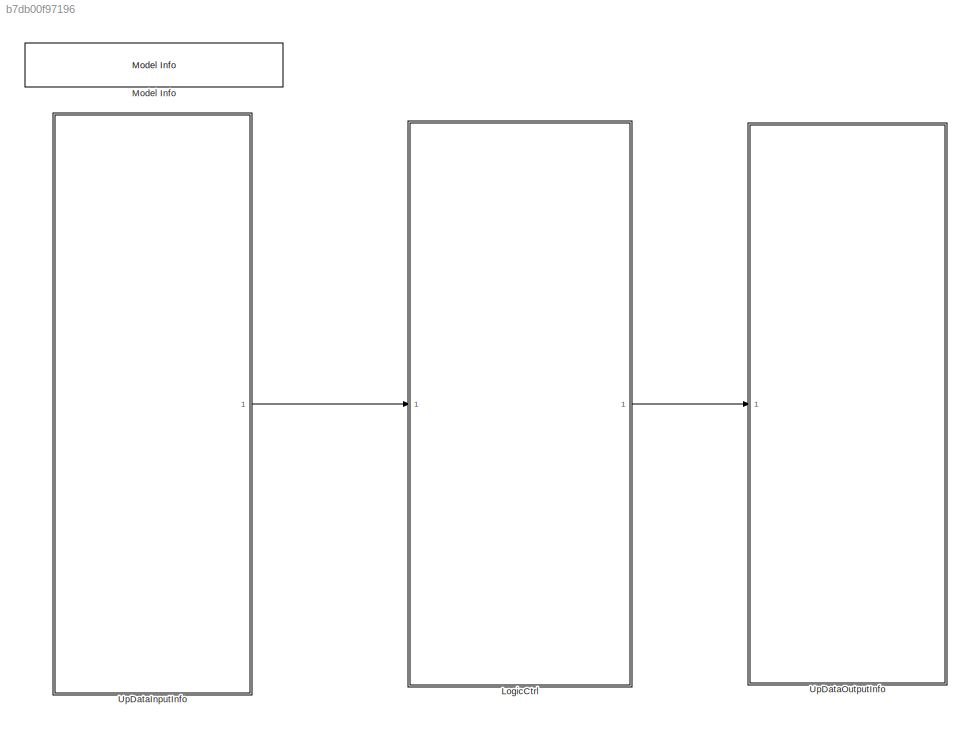
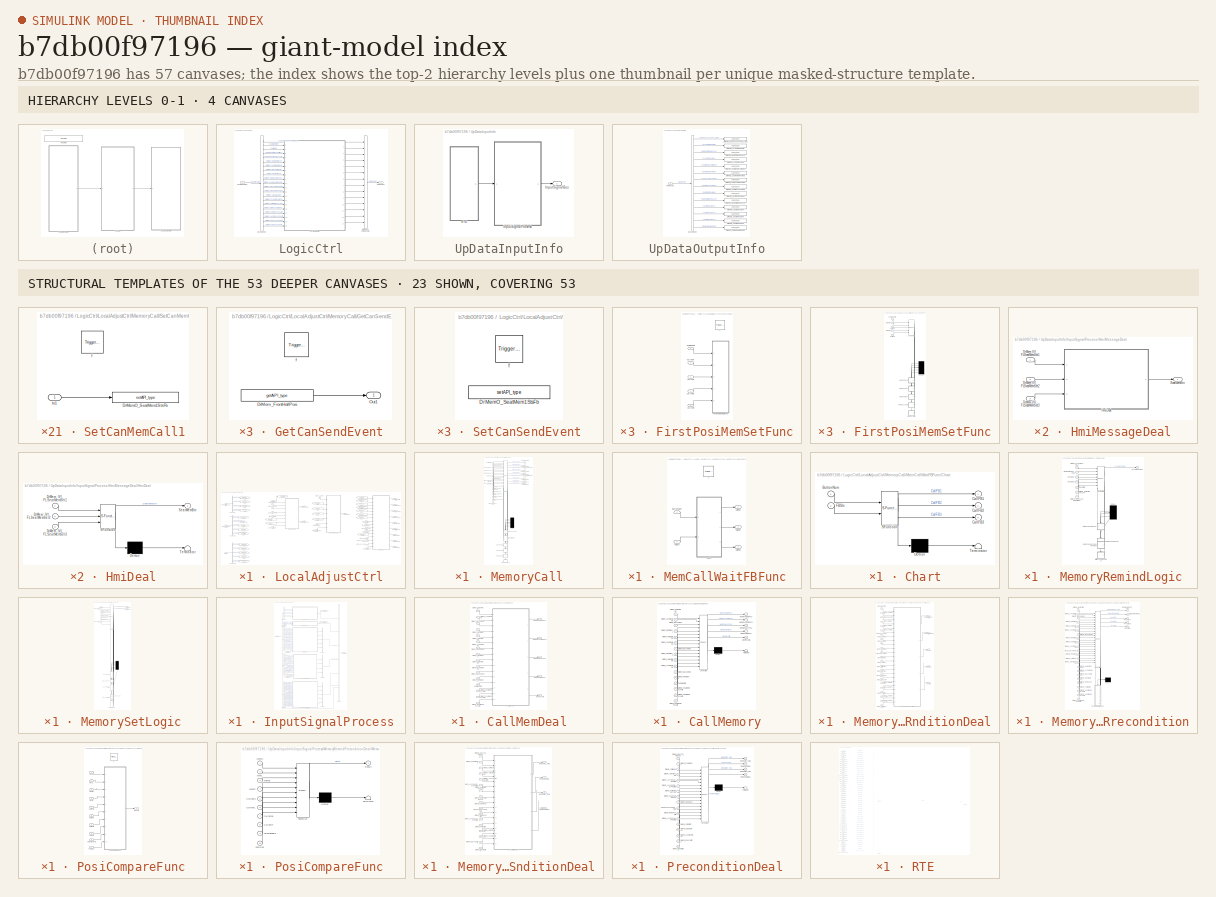
[diagram: thumbnail index - top-2 hierarchy levels (4 canvases) + 23 structural-template representatives of the remaining 53 canvases]
MODEL slx_b7db00f97196
KIND model
BLOCK [SubSystem] LogicCtrl
  Ports = [1, 1]
  Priority = 2
  RTWFcnNameOpts = Use subsystem name
  RTWSystemCode = Nonreusable function
  RequestExecContextInheritance = off
  TreatAsAtomicUnit = on
BLOCK [BusSelector] LogicCtrl/Bus Selector
  OutputAsBus = off
  OutputSignals = SpeedLessThan5_Flag,SeatMemBtn,CallMem,MemorySetPrecondition,MemoryRemindPrecondition,Rte_SignalBus.DrMem_HeightHallPosi,Rte_SignalBus.DrMem_LengthHallPosi,Rte_SignalBus.DrMem_BackHallPosi,Rte_SignalBus.DrMem_FrontHallPosi,Rte_SignalBus.DrMem_HeightAutoRunFlag,Rte_SignalBus.DrMem_LengthAutoRunFlag,Rte_SignalBus.DrMem_BackAutoRunFlag,Rte_SignalBus.DrMem_FrontAutoRunFlag,Rte_SignalBus.DrMem_AdjustEn...<+256ch>
  Ports = [1, 21]
BLOCK [Inport] LogicCtrl/InputSignalBus
  IconDisplay = Port number
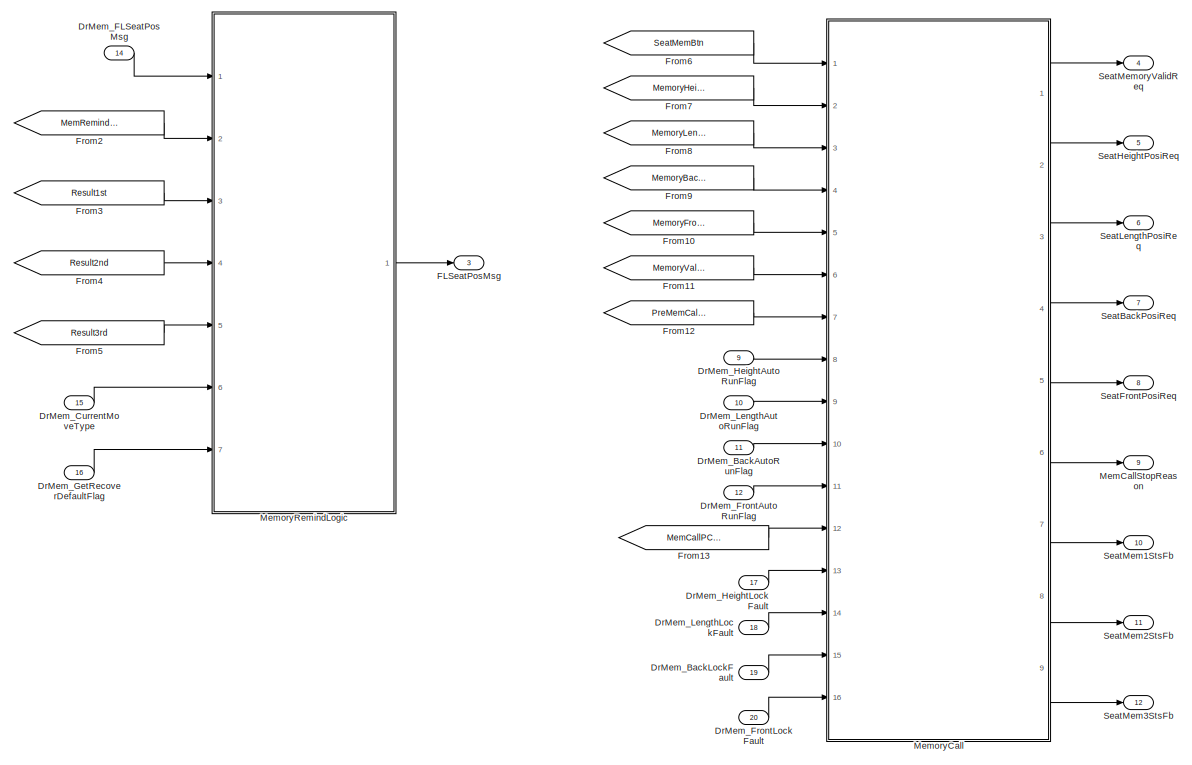
[diagram: LogicCtrl/LocalAdjustCtrl - part 1/2, right side, full height]
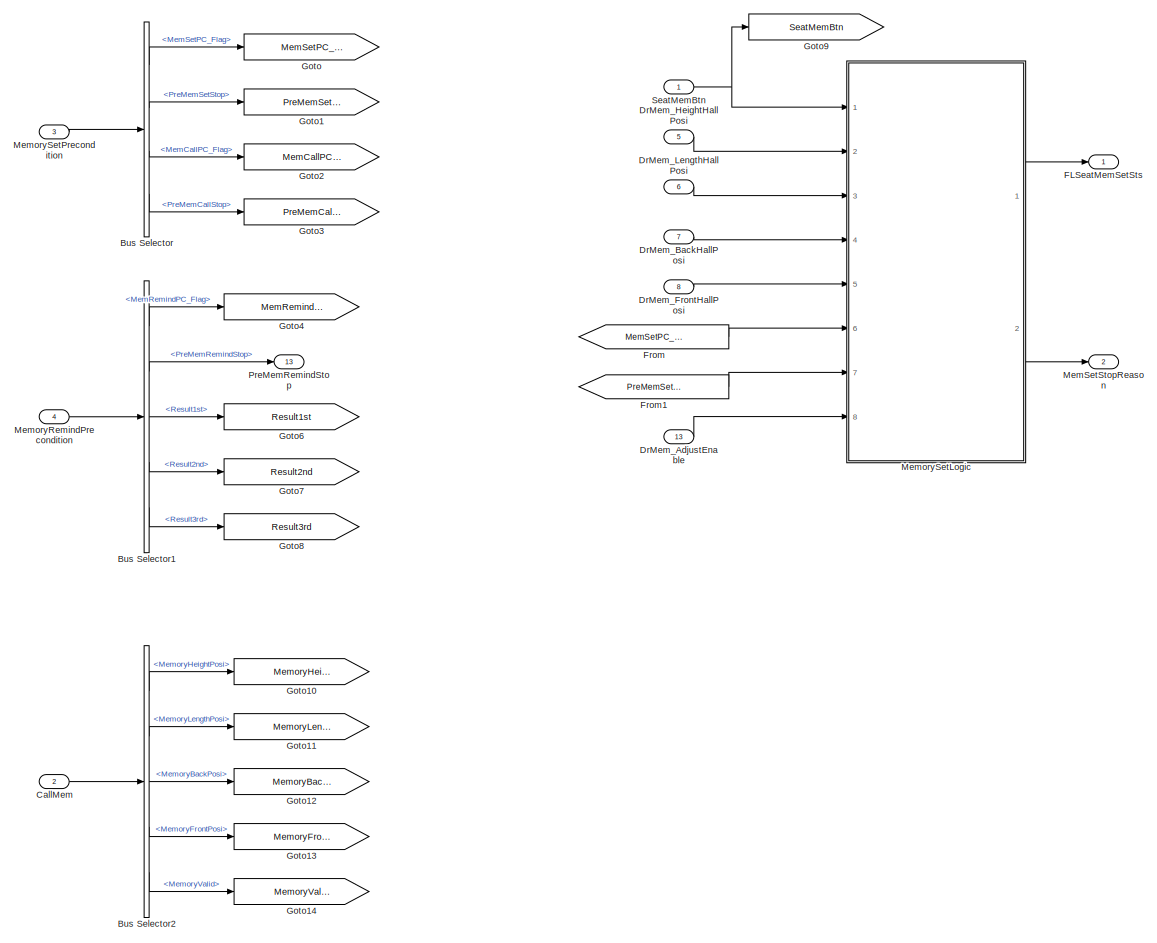
[diagram: LogicCtrl/LocalAdjustCtrl - part 2/2, left side, full height]
BLOCK [SubSystem] LogicCtrl/LocalAdjustCtrl
  AttributesFormatString = %<Description>
  Description = 加热逻辑处理
  Ports = [20, 13]
  RequestExecContextInheritance = off
BLOCK [BusSelector] LogicCtrl/LocalAdjustCtrl/Bus Selector
  OutputAsBus = off
  OutputSignals = MemSetPC_Flag,PreMemSetStop,MemCallPC_Flag,PreMemCallStop
  Ports = [1, 4]
BLOCK [BusSelector] LogicCtrl/LocalAdjustCtrl/Bus Selector1
  OutputAsBus = off
  OutputSignals = MemRemindPC_Flag,PreMemRemindStop,Result1st,Result2nd,Result3rd
  Ports = [1, 5]
BLOCK [BusSelector] LogicCtrl/LocalAdjustCtrl/Bus Selector2
  OutputAsBus = off
  OutputSignals = MemoryHeightPosi,MemoryLengthPosi,MemoryBackPosi,MemoryFrontPosi,MemoryValid
  Ports = [1, 5]
BLOCK [Inport] LogicCtrl/LocalAdjustCtrl/CallMem
  IconDisplay = Port number
  Port = 2
BLOCK [Inport] LogicCtrl/LocalAdjustCtrl/DrMem_AdjustEnable
  IconDisplay = Port number
  Port = 13
BLOCK [Inport] LogicCtrl/LocalAdjustCtrl/DrMem_BackAutoRunFlag
  IconDisplay = Port number
  Port = 11
BLOCK [Inport] LogicCtrl/LocalAdjustCtrl/DrMem_BackHallPosi
  IconDisplay = Port number
  Port = 7
BLOCK [Inport] LogicCtrl/LocalAdjustCtrl/DrMem_BackLockFault
  IconDisplay = Port number
  Port = 19
BLOCK [Inport] LogicCtrl/LocalAdjustCtrl/DrMem_CurrentMoveType
  IconDisplay = Port number
  Port = 15
BLOCK [Inport] LogicCtrl/LocalAdjustCtrl/DrMem_FLSeatPosMsg
  IconDisplay = Port number
  Port = 14
BLOCK [Inport] LogicCtrl/LocalAdjustCtrl/DrMem_FrontAutoRunFlag
  IconDisplay = Port number
  Port = 12
BLOCK [Inport] LogicCtrl/LocalAdjustCtrl/DrMem_FrontHallPosi
  IconDisplay = Port number
  Port = 8
BLOCK [Inport] LogicCtrl/LocalAdjustCtrl/DrMem_FrontLockFault
  IconDisplay = Port number
  Port = 20
BLOCK [Inport] LogicCtrl/LocalAdjustCtrl/DrMem_GetRecoverDefaultFlag
  IconDisplay = Port number
  Port = 16
BLOCK [Inport] LogicCtrl/LocalAdjustCtrl/DrMem_HeightAutoRunFlag
  IconDisplay = Port number
  Port = 9
BLOCK [Inport] LogicCtrl/LocalAdjustCtrl/DrMem_HeightHallPosi
  IconDisplay = Port number
  Port = 5
BLOCK [Inport] LogicCtrl/LocalAdjustCtrl/DrMem_HeightLockFault
  IconDisplay = Port number
  Port = 17
BLOCK [Inport] LogicCtrl/LocalAdjustCtrl/DrMem_LengthAutoRunFlag
  IconDisplay = Port number
  Port = 10
BLOCK [Inport] LogicCtrl/LocalAdjustCtrl/DrMem_LengthHallPosi
  IconDisplay = Port number
  Port = 6
BLOCK [Inport] LogicCtrl/LocalAdjustCtrl/DrMem_LengthLockFault
  IconDisplay = Port number
  Port = 18
BLOCK [Outport] LogicCtrl/LocalAdjustCtrl/FLSeatMemSetSts
  IconDisplay = Port number
BLOCK [Outport] LogicCtrl/LocalAdjustCtrl/FLSeatPosMsg
  IconDisplay = Port number
  Port = 3
BLOCK [From] LogicCtrl/LocalAdjustCtrl/From
  GotoTag = MemSetPC_Flag
BLOCK [From] LogicCtrl/LocalAdjustCtrl/From1
  GotoTag = PreMemSetStop
BLOCK [From] LogicCtrl/LocalAdjustCtrl/From10
  GotoTag = MemoryFrontPosi
BLOCK [From] LogicCtrl/LocalAdjustCtrl/From11
  GotoTag = MemoryValid
BLOCK [From] LogicCtrl/LocalAdjustCtrl/From12
  GotoTag = PreMemCallStop
BLOCK [From] LogicCtrl/LocalAdjustCtrl/From13
  GotoTag = MemCallPC_Flag
BLOCK [From] LogicCtrl/LocalAdjustCtrl/From2
  GotoTag = MemRemindPC_Flag
BLOCK [From] LogicCtrl/LocalAdjustCtrl/From3
  GotoTag = Result1st
BLOCK [From] LogicCtrl/LocalAdjustCtrl/From4
  GotoTag = Result2nd
BLOCK [From] LogicCtrl/LocalAdjustCtrl/From5
  GotoTag = Result3rd
BLOCK [From] LogicCtrl/LocalAdjustCtrl/From6
  GotoTag = SeatMemBtn
BLOCK [From] LogicCtrl/LocalAdjustCtrl/From7
  GotoTag = MemoryHeightPosi
BLOCK [From] LogicCtrl/LocalAdjustCtrl/From8
  GotoTag = MemoryLengthPosi
BLOCK [From] LogicCtrl/LocalAdjustCtrl/From9
  GotoTag = MemoryBackPosi
BLOCK [Goto] LogicCtrl/LocalAdjustCtrl/Goto
  GotoTag = MemSetPC_Flag
BLOCK [Goto] LogicCtrl/LocalAdjustCtrl/Goto1
  GotoTag = PreMemSetStop
BLOCK [Goto] LogicCtrl/LocalAdjustCtrl/Goto10
  GotoTag = MemoryHeightPosi
BLOCK [Goto] LogicCtrl/LocalAdjustCtrl/Goto11
  GotoTag = MemoryLengthPosi
BLOCK [Goto] LogicCtrl/LocalAdjustCtrl/Goto12
  GotoTag = MemoryBackPosi
BLOCK [Goto] LogicCtrl/LocalAdjustCtrl/Goto13
  GotoTag = MemoryFrontPosi
BLOCK [Goto] LogicCtrl/LocalAdjustCtrl/Goto14
  GotoTag = MemoryValid
BLOCK [Goto] LogicCtrl/LocalAdjustCtrl/Goto2
  GotoTag = MemCallPC_Flag
BLOCK [Goto] LogicCtrl/LocalAdjustCtrl/Goto3
  GotoTag = PreMemCallStop
BLOCK [Goto] LogicCtrl/LocalAdjustCtrl/Goto4
  GotoTag = MemRemindPC_Flag
BLOCK [Goto] LogicCtrl/LocalAdjustCtrl/Goto6
  GotoTag = Result1st
BLOCK [Goto] LogicCtrl/LocalAdjustCtrl/Goto7
  GotoTag = Result2nd
BLOCK [Goto] LogicCtrl/LocalAdjustCtrl/Goto8
  GotoTag = Result3rd
BLOCK [Goto] LogicCtrl/LocalAdjustCtrl/Goto9
  GotoTag = SeatMemBtn
BLOCK [Outport] LogicCtrl/LocalAdjustCtrl/MemCallStopReason
  IconDisplay = Port number
  Port = 9
BLOCK [Outport] LogicCtrl/LocalAdjustCtrl/MemSetStopReason
  IconDisplay = Port number
  Port = 2
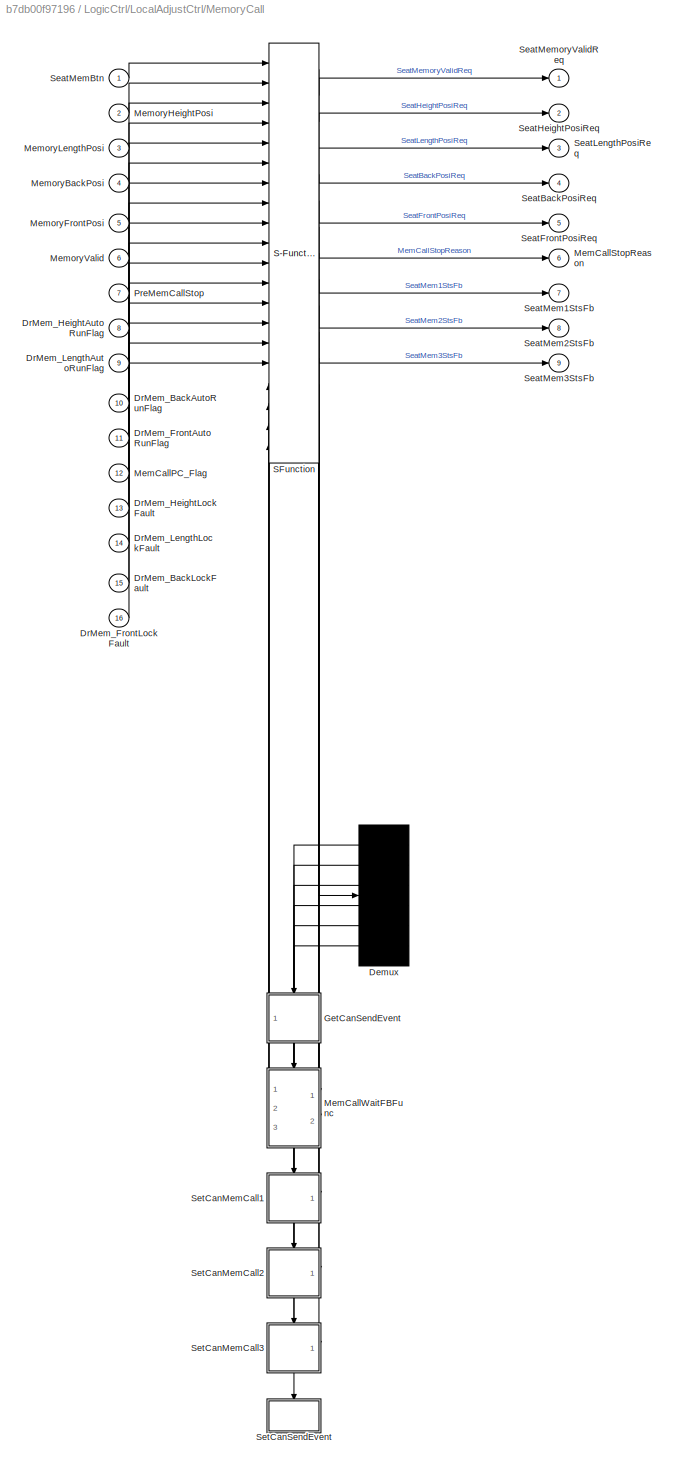
BLOCK [SubSystem] LogicCtrl/LocalAdjustCtrl/MemoryCall
  ErrorFcn = Stateflow.Translate.translate
  PermitHierarchicalResolution = ExplicitOnly
  Ports = [16, 9]
  RequestExecContextInheritance = off
  SFBlockType = Chart
  TreatAsAtomicUnit = on
BLOCK [Demux] LogicCtrl/LocalAdjustCtrl/MemoryCall/ Demux 
  Outputs = 6
  Ports = [1, 6]
BLOCK [S-Function] LogicCtrl/LocalAdjustCtrl/MemoryCall/ SFunction 
  EnableBusSupport = on
  FunctionName = sf_sfun
  Parameters = CAL_DrMem_90MS,FALSE,TRUE
  PortCounts = [20 15]
  Ports = [20, 15]
  SFcnIsStateOwnerBlock = off
  SFunctionDeploymentMode = off
  Tag = Stateflow S-Function Appl_DrMemory_CtrlModel 8
BLOCK [Inport] LogicCtrl/LocalAdjustCtrl/MemoryCall/DrMem_BackAutoRunFlag
  IconDisplay = Port number
  Port = 10
BLOCK [Inport] LogicCtrl/LocalAdjustCtrl/MemoryCall/DrMem_BackLockFault
  IconDisplay = Port number
  Port = 15
BLOCK [Inport] LogicCtrl/LocalAdjustCtrl/MemoryCall/DrMem_FrontAutoRunFlag
  IconDisplay = Port number
  Port = 11
BLOCK [Inport] LogicCtrl/LocalAdjustCtrl/MemoryCall/DrMem_FrontLockFault
  IconDisplay = Port number
  Port = 16
BLOCK [Inport] LogicCtrl/LocalAdjustCtrl/MemoryCall/DrMem_HeightAutoRunFlag
  IconDisplay = Port number
  Port = 8
BLOCK [Inport] LogicCtrl/LocalAdjustCtrl/MemoryCall/DrMem_HeightLockFault
  IconDisplay = Port number
  Port = 13
BLOCK [Inport] LogicCtrl/LocalAdjustCtrl/MemoryCall/DrMem_LengthAutoRunFlag
  IconDisplay = Port number
  Port = 9
BLOCK [Inport] LogicCtrl/LocalAdjustCtrl/MemoryCall/DrMem_LengthLockFault
  IconDisplay = Port number
  Port = 14
BLOCK [SubSystem] LogicCtrl/LocalAdjustCtrl/MemoryCall/GetCanSendEvent
  Ports = [0, 1, 0, 1]
  PreDeleteFcn = Stateflow.SLINSF.SimulinkMan.removePreDeleteFcn
  RequestExecContextInheritance = off
  UndoDeleteFcn = Stateflow.SLINSF.SimulinkMan.restorePreDeleteFcn
BLOCK [Reference] LogicCtrl/LocalAdjustCtrl/MemoryCall/GetCanSendEvent/DrMem_FrontHallPosi  REF=DareLib/Dare/getAPI_type
  AttributesFormatString = %<g_funcname>
  Ports = [0, 1]
  SourceBlock = DareLib/Dare/getAPI_type
  SourceProductName = Dare Library
  SourceType = Dare Custom
BLOCK [Outport] LogicCtrl/LocalAdjustCtrl/MemoryCall/GetCanSendEvent/Out1
  IconDisplay = Port number
BLOCK [TriggerPort] LogicCtrl/LocalAdjustCtrl/MemoryCall/GetCanSendEvent/f
  CopyFcn = Stateflow.SLINSF.SimulinkMan.removeBlockPreDeleteFcn
  Ports = []
  PreDeleteFcn = Stateflow.SLINSF.SimulinkMan.unsafePredeleteFcn
  StatesWhenEnabling = held
  TriggerType = function-call
  VariantControl = (inherit)
BLOCK [Inport] LogicCtrl/LocalAdjustCtrl/MemoryCall/MemCallPC_Flag
  IconDisplay = Port number
  Port = 12
BLOCK [Outport] LogicCtrl/LocalAdjustCtrl/MemoryCall/MemCallStopReason
  IconDisplay = Port number
  Port = 6
BLOCK [SubSystem] LogicCtrl/LocalAdjustCtrl/MemoryCall/MemCallWaitFBFunc
  Ports = [2, 3, 0, 1]
  PreDeleteFcn = Stateflow.SLINSF.SimulinkMan.removePreDeleteFcn
  RequestExecContextInheritance = off
  UndoDeleteFcn = Stateflow.SLINSF.SimulinkMan.restorePreDeleteFcn
BLOCK [Inport] LogicCtrl/LocalAdjustCtrl/MemoryCall/MemCallWaitFBFunc/ButtonNum
  IconDisplay = Port number
BLOCK [Outport] LogicCtrl/LocalAdjustCtrl/MemoryCall/MemCallWaitFBFunc/CallFB1
  IconDisplay = Port number
BLOCK [Outport] LogicCtrl/LocalAdjustCtrl/MemoryCall/MemCallWaitFBFunc/CallFB2
  IconDisplay = Port number
  Port = 2
BLOCK [Outport] LogicCtrl/LocalAdjustCtrl/MemoryCall/MemCallWaitFBFunc/CallFB3
  IconDisplay = Port number
  Port = 3
BLOCK [SubSystem] LogicCtrl/LocalAdjustCtrl/MemoryCall/MemCallWaitFBFunc/Chart
  ErrorFcn = Stateflow.Translate.translate
  PermitHierarchicalResolution = ExplicitOnly
  Ports = [2, 3]
  RequestExecContextInheritance = off
  SFBlockType = Chart
  TreatAsAtomicUnit = on
BLOCK [Demux] LogicCtrl/LocalAdjustCtrl/MemoryCall/MemCallWaitFBFunc/Chart/ Demux 
  Outputs = 1
  Ports = [1, 1]
BLOCK [S-Function] LogicCtrl/LocalAdjustCtrl/MemoryCall/MemCallWaitFBFunc/Chart/ SFunction 
  EnableBusSupport = off
  FunctionName = sf_sfun
  PortCounts = [2 4]
  Ports = [2, 4]
  SFcnIsStateOwnerBlock = off
  SFunctionDeploymentMode = off
  Tag = Stateflow S-Function Appl_DrMemory_CtrlModel 13
BLOCK [Terminator] LogicCtrl/LocalAdjustCtrl/MemoryCall/MemCallWaitFBFunc/Chart/ Terminator 
BLOCK [Inport] LogicCtrl/LocalAdjustCtrl/MemoryCall/MemCallWaitFBFunc/Chart/ButtonNum
  IconDisplay = Port number
BLOCK [Outport] LogicCtrl/LocalAdjustCtrl/MemoryCall/MemCallWaitFBFunc/Chart/CallFB1
  IconDisplay = Port number
BLOCK [Outport] LogicCtrl/LocalAdjustCtrl/MemoryCall/MemCallWaitFBFunc/Chart/CallFB2
  IconDisplay = Port number
  Port = 2
BLOCK [Outport] LogicCtrl/LocalAdjustCtrl/MemoryCall/MemCallWaitFBFunc/Chart/CallFB3
  IconDisplay = Port number
  Port = 3
BLOCK [Inport] LogicCtrl/LocalAdjustCtrl/MemoryCall/MemCallWaitFBFunc/Chart/FBSts
  IconDisplay = Port number
  Port = 2
BLOCK [Inport] LogicCtrl/LocalAdjustCtrl/MemoryCall/MemCallWaitFBFunc/FBSts
  IconDisplay = Port number
  Port = 2
BLOCK [TriggerPort] LogicCtrl/LocalAdjustCtrl/MemoryCall/MemCallWaitFBFunc/f
  CopyFcn = Stateflow.SLINSF.SimulinkMan.removeBlockPreDeleteFcn
  Ports = []
  PreDeleteFcn = Stateflow.SLINSF.SimulinkMan.unsafePredeleteFcn
  StatesWhenEnabling = held
  TriggerType = function-call
  VariantControl = (inherit)
BLOCK [Inport] LogicCtrl/LocalAdjustCtrl/MemoryCall/MemoryBackPosi
  IconDisplay = Port number
  Port = 4
BLOCK [Inport] LogicCtrl/LocalAdjustCtrl/MemoryCall/MemoryFrontPosi
  IconDisplay = Port number
  Port = 5
BLOCK [Inport] LogicCtrl/LocalAdjustCtrl/MemoryCall/MemoryHeightPosi
  IconDisplay = Port number
  Port = 2
BLOCK [Inport] LogicCtrl/LocalAdjustCtrl/MemoryCall/MemoryLengthPosi
  IconDisplay = Port number
  Port = 3
BLOCK [Inport] LogicCtrl/LocalAdjustCtrl/MemoryCall/MemoryValid
  IconDisplay = Port number
  Port = 6
BLOCK [Inport] LogicCtrl/LocalAdjustCtrl/MemoryCall/PreMemCallStop
  IconDisplay = Port number
  Port = 7
BLOCK [Outport] LogicCtrl/LocalAdjustCtrl/MemoryCall/SeatBackPosiReq
  IconDisplay = Port number
  Port = 4
BLOCK [Outport] LogicCtrl/LocalAdjustCtrl/MemoryCall/SeatFrontPosiReq
  IconDisplay = Port number
  Port = 5
BLOCK [Outport] LogicCtrl/LocalAdjustCtrl/MemoryCall/SeatHeightPosiReq
  IconDisplay = Port number
  Port = 2
BLOCK [Outport] LogicCtrl/LocalAdjustCtrl/MemoryCall/SeatLengthPosiReq
  IconDisplay = Port number
  Port = 3
BLOCK [Outport] LogicCtrl/LocalAdjustCtrl/MemoryCall/SeatMem1StsFb
  IconDisplay = Port number
  Port = 7
BLOCK [Outport] LogicCtrl/LocalAdjustCtrl/MemoryCall/SeatMem2StsFb
  IconDisplay = Port number
  Port = 8
BLOCK [Outport] LogicCtrl/LocalAdjustCtrl/MemoryCall/SeatMem3StsFb
  IconDisplay = Port number
  Port = 9
BLOCK [Inport] LogicCtrl/LocalAdjustCtrl/MemoryCall/SeatMemBtn
  IconDisplay = Port number
BLOCK [Outport] LogicCtrl/LocalAdjustCtrl/MemoryCall/SeatMemoryValidReq
  IconDisplay = Port number
BLOCK [SubSystem] LogicCtrl/LocalAdjustCtrl/MemoryCall/SetCanMemCall1
  Ports = [1, 0, 0, 1]
  PreDeleteFcn = Stateflow.SLINSF.SimulinkMan.removePreDeleteFcn
  RequestExecContextInheritance = off
  UndoDeleteFcn = Stateflow.SLINSF.SimulinkMan.restorePreDeleteFcn
BLOCK [Reference] LogicCtrl/LocalAdjustCtrl/MemoryCall/SetCanMemCall1/DrMemO_SeatMem1StsFb  REF=DareLib/Dare/setAPI_type
  AttributesFormatString = %<g_funcname>
  Ports = [1]
  SourceBlock = DareLib/Dare/setAPI_type
  SourceProductName = Dare Library
  SourceType = Dare Custom
BLOCK [Inport] LogicCtrl/LocalAdjustCtrl/MemoryCall/SetCanMemCall1/In1
  IconDisplay = Port number
BLOCK [TriggerPort] LogicCtrl/LocalAdjustCtrl/MemoryCall/SetCanMemCall1/f
  CopyFcn = Stateflow.SLINSF.SimulinkMan.removeBlockPreDeleteFcn
  Ports = []
  PreDeleteFcn = Stateflow.SLINSF.SimulinkMan.unsafePredeleteFcn
  StatesWhenEnabling = held
  TriggerType = function-call
  VariantControl = (inherit)
BLOCK [SubSystem] LogicCtrl/LocalAdjustCtrl/MemoryCall/SetCanMemCall2
  Ports = [1, 0, 0, 1]
  PreDeleteFcn = Stateflow.SLINSF.SimulinkMan.removePreDeleteFcn
  RequestExecContextInheritance = off
  UndoDeleteFcn = Stateflow.SLINSF.SimulinkMan.restorePreDeleteFcn
BLOCK [Reference] LogicCtrl/LocalAdjustCtrl/MemoryCall/SetCanMemCall2/DrMemO_SeatMem1StsFb  REF=DareLib/Dare/setAPI_type
  AttributesFormatString = %<g_funcname>
  Ports = [1]
  SourceBlock = DareLib/Dare/setAPI_type
  SourceProductName = Dare Library
  SourceType = Dare Custom
BLOCK [Inport] LogicCtrl/LocalAdjustCtrl/MemoryCall/SetCanMemCall2/In1
  IconDisplay = Port number
BLOCK [TriggerPort] LogicCtrl/LocalAdjustCtrl/MemoryCall/SetCanMemCall2/f
  CopyFcn = Stateflow.SLINSF.SimulinkMan.removeBlockPreDeleteFcn
  Ports = []
  PreDeleteFcn = Stateflow.SLINSF.SimulinkMan.unsafePredeleteFcn
  StatesWhenEnabling = held
  TriggerType = function-call
  VariantControl = (inherit)
BLOCK [SubSystem] LogicCtrl/LocalAdjustCtrl/MemoryCall/SetCanMemCall3
  Ports = [1, 0, 0, 1]
  PreDeleteFcn = Stateflow.SLINSF.SimulinkMan.removePreDeleteFcn
  RequestExecContextInheritance = off
  UndoDeleteFcn = Stateflow.SLINSF.SimulinkMan.restorePreDeleteFcn
BLOCK [Reference] LogicCtrl/LocalAdjustCtrl/MemoryCall/SetCanMemCall3/DrMemO_SeatMem1StsFb  REF=DareLib/Dare/setAPI_type
  AttributesFormatString = %<g_funcname>
  Ports = [1]
  SourceBlock = DareLib/Dare/setAPI_type
  SourceProductName = Dare Library
  SourceType = Dare Custom
BLOCK [Inport] LogicCtrl/LocalAdjustCtrl/MemoryCall/SetCanMemCall3/In1
  IconDisplay = Port number
BLOCK [TriggerPort] LogicCtrl/LocalAdjustCtrl/MemoryCall/SetCanMemCall3/f
  CopyFcn = Stateflow.SLINSF.SimulinkMan.removeBlockPreDeleteFcn
  Ports = []
  PreDeleteFcn = Stateflow.SLINSF.SimulinkMan.unsafePredeleteFcn
  StatesWhenEnabling = held
  TriggerType = function-call
  VariantControl = (inherit)
BLOCK [SubSystem] LogicCtrl/LocalAdjustCtrl/MemoryCall/SetCanSendEvent
  Ports = [0, 0, 0, 1]
  PreDeleteFcn = Stateflow.SLINSF.SimulinkMan.removePreDeleteFcn
  RequestExecContextInheritance = off
  UndoDeleteFcn = Stateflow.SLINSF.SimulinkMan.restorePreDeleteFcn
BLOCK [Reference] LogicCtrl/LocalAdjustCtrl/MemoryCall/SetCanSendEvent/DrMemO_SeatMem1StsFb  REF=DareLib/Dare/setAPI_type
  AttributesFormatString = %<g_funcname>
  Ports = [1]
  SourceBlock = DareLib/Dare/setAPI_type
  SourceProductName = Dare Library
  SourceType = Dare Custom
BLOCK [TriggerPort] LogicCtrl/LocalAdjustCtrl/MemoryCall/SetCanSendEvent/f
  CopyFcn = Stateflow.SLINSF.SimulinkMan.removeBlockPreDeleteFcn
  Ports = []
  PreDeleteFcn = Stateflow.SLINSF.SimulinkMan.unsafePredeleteFcn
  StatesWhenEnabling = held
  TriggerType = function-call
  VariantControl = (inherit)
BLOCK [SubSystem] LogicCtrl/LocalAdjustCtrl/MemoryRemindLogic
  ErrorFcn = Stateflow.Translate.translate
  PermitHierarchicalResolution = ExplicitOnly
  Ports = [7, 1]
  RequestExecContextInheritance = off
  SFBlockType = Chart
  TreatAsAtomicUnit = on
BLOCK [Demux] LogicCtrl/LocalAdjustCtrl/MemoryRemindLogic/ Demux 
  Ports = [1, 4]
BLOCK [S-Function] LogicCtrl/LocalAdjustCtrl/MemoryRemindLogic/ SFunction 
  EnableBusSupport = on
  FunctionName = sf_sfun
  Parameters = CAL_DrMem_90MS,FALSE,TRUE
  PortCounts = [8 4]
  Ports = [8, 4]
  SFcnIsStateOwnerBlock = off
  SFunctionDeploymentMode = off
  Tag = Stateflow S-Function Appl_DrMemory_CtrlModel 5
BLOCK [Inport] LogicCtrl/LocalAdjustCtrl/MemoryRemindLogic/DrMem_CurrentMoveType
  IconDisplay = Port number
  Port = 6
BLOCK [Inport] LogicCtrl/LocalAdjustCtrl/MemoryRemindLogic/DrMem_FLSeatPosMsg
  IconDisplay = Port number
BLOCK [Inport] LogicCtrl/LocalAdjustCtrl/MemoryRemindLogic/DrMem_GetRecoverDefaultFlag
  IconDisplay = Port number
  Port = 7
BLOCK [Outport] LogicCtrl/LocalAdjustCtrl/MemoryRemindLogic/FLSeatPosMsg
  IconDisplay = Port number
BLOCK [SubSystem] LogicCtrl/LocalAdjustCtrl/MemoryRemindLogic/GetCanSendEvent
  Ports = [0, 1, 0, 1]
  PreDeleteFcn = Stateflow.SLINSF.SimulinkMan.removePreDeleteFcn
  RequestExecContextInheritance = off
  UndoDeleteFcn = Stateflow.SLINSF.SimulinkMan.restorePreDeleteFcn
BLOCK [Reference] LogicCtrl/LocalAdjustCtrl/MemoryRemindLogic/GetCanSendEvent/DrMem_FrontHallPosi  REF=DareLib/Dare/getAPI_type
  AttributesFormatString = %<g_funcname>
  Ports = [0, 1]
  SourceBlock = DareLib/Dare/getAPI_type
  SourceProductName = Dare Library
  SourceType = Dare Custom
BLOCK [Outport] LogicCtrl/LocalAdjustCtrl/MemoryRemindLogic/GetCanSendEvent/Out1
  IconDisplay = Port number
BLOCK [TriggerPort] LogicCtrl/LocalAdjustCtrl/MemoryRemindLogic/GetCanSendEvent/f
  CopyFcn = Stateflow.SLINSF.SimulinkMan.removeBlockPreDeleteFcn
  Ports = []
  PreDeleteFcn = Stateflow.SLINSF.SimulinkMan.unsafePredeleteFcn
  StatesWhenEnabling = held
  TriggerType = function-call
  VariantControl = (inherit)
BLOCK [Inport] LogicCtrl/LocalAdjustCtrl/MemoryRemindLogic/MemRemindPC_Flag
  IconDisplay = Port number
  Port = 2
BLOCK [Inport] LogicCtrl/LocalAdjustCtrl/MemoryRemindLogic/Result1st
  IconDisplay = Port number
  Port = 3
BLOCK [Inport] LogicCtrl/LocalAdjustCtrl/MemoryRemindLogic/Result2nd
  IconDisplay = Port number
  Port = 4
BLOCK [Inport] LogicCtrl/LocalAdjustCtrl/MemoryRemindLogic/Result3rd
  IconDisplay = Port number
  Port = 5
BLOCK [SubSystem] LogicCtrl/LocalAdjustCtrl/MemoryRemindLogic/SetCanSendEvent
  Ports = [0, 0, 0, 1]
  PreDeleteFcn = Stateflow.SLINSF.SimulinkMan.removePreDeleteFcn
  RequestExecContextInheritance = off
  UndoDeleteFcn = Stateflow.SLINSF.SimulinkMan.restorePreDeleteFcn
BLOCK [Reference] LogicCtrl/LocalAdjustCtrl/MemoryRemindLogic/SetCanSendEvent/DrMemO_SeatMem1StsFb  REF=DareLib/Dare/setAPI_type
  AttributesFormatString = %<g_funcname>
  Ports = [1]
  SourceBlock = DareLib/Dare/setAPI_type
  SourceProductName = Dare Library
  SourceType = Dare Custom
BLOCK [TriggerPort] LogicCtrl/LocalAdjustCtrl/MemoryRemindLogic/SetCanSendEvent/f
  CopyFcn = Stateflow.SLINSF.SimulinkMan.removeBlockPreDeleteFcn
  Ports = []
  PreDeleteFcn = Stateflow.SLINSF.SimulinkMan.unsafePredeleteFcn
  StatesWhenEnabling = held
  TriggerType = function-call
  VariantControl = (inherit)
BLOCK [SubSystem] LogicCtrl/LocalAdjustCtrl/MemoryRemindLogic/SetCanSendFLSeatPosMsg
  Ports = [1, 0, 0, 1]
  PreDeleteFcn = Stateflow.SLINSF.SimulinkMan.removePreDeleteFcn
  RequestExecContextInheritance = off
  UndoDeleteFcn = Stateflow.SLINSF.SimulinkMan.restorePreDeleteFcn
BLOCK [Reference] LogicCtrl/LocalAdjustCtrl/MemoryRemindLogic/SetCanSendFLSeatPosMsg/DrMemO_SeatMem1StsFb  REF=DareLib/Dare/setAPI_type
  AttributesFormatString = %<g_funcname>
  Ports = [1]
  SourceBlock = DareLib/Dare/setAPI_type
  SourceProductName = Dare Library
  SourceType = Dare Custom
BLOCK [Inport] LogicCtrl/LocalAdjustCtrl/MemoryRemindLogic/SetCanSendFLSeatPosMsg/In1
  IconDisplay = Port number
BLOCK [TriggerPort] LogicCtrl/LocalAdjustCtrl/MemoryRemindLogic/SetCanSendFLSeatPosMsg/f
  CopyFcn = Stateflow.SLINSF.SimulinkMan.removeBlockPreDeleteFcn
  Ports = []
  PreDeleteFcn = Stateflow.SLINSF.SimulinkMan.unsafePredeleteFcn
  StatesWhenEnabling = held
  TriggerType = function-call
  VariantControl = (inherit)
BLOCK [SubSystem] LogicCtrl/LocalAdjustCtrl/MemoryRemindLogic/WriteFLSeatPosMsg
  Ports = [1, 0, 0, 1]
  PreDeleteFcn = Stateflow.SLINSF.SimulinkMan.removePreDeleteFcn
  RequestExecContextInheritance = off
  UndoDeleteFcn = Stateflow.SLINSF.SimulinkMan.restorePreDeleteFcn
BLOCK [Reference] LogicCtrl/LocalAdjustCtrl/MemoryRemindLogic/WriteFLSeatPosMsg/DrMemO_SeatBackPosiReq  REF=DareLib/Dare/setAPI_type
  AttributesFormatString = %<g_funcname>
  Ports = [1]
  SourceBlock = DareLib/Dare/setAPI_type
  SourceProductName = Dare Library
  SourceType = Dare Custom
BLOCK [Inport] LogicCtrl/LocalAdjustCtrl/MemoryRemindLogic/WriteFLSeatPosMsg/Sts
  IconDisplay = Port number
BLOCK [TriggerPort] LogicCtrl/LocalAdjustCtrl/MemoryRemindLogic/WriteFLSeatPosMsg/f
  CopyFcn = Stateflow.SLINSF.SimulinkMan.removeBlockPreDeleteFcn
  Ports = []
  PreDeleteFcn = Stateflow.SLINSF.SimulinkMan.unsafePredeleteFcn
  StatesWhenEnabling = held
  TriggerType = function-call
  VariantControl = (inherit)
BLOCK [Inport] LogicCtrl/LocalAdjustCtrl/MemoryRemindPrecondition
  IconDisplay = Port number
  Port = 4
BLOCK [SubSystem] LogicCtrl/LocalAdjustCtrl/MemorySetLogic
  ErrorFcn = Stateflow.Translate.translate
  PermitHierarchicalResolution = ExplicitOnly
  Ports = [8, 2]
  RequestExecContextInheritance = off
  SFBlockType = Chart
  TreatAsAtomicUnit = on
BLOCK [Demux] LogicCtrl/LocalAdjustCtrl/MemorySetLogic/ Demux 
  Outputs = 6
  Ports = [1, 6]
BLOCK [S-Function] LogicCtrl/LocalAdjustCtrl/MemorySetLogic/ SFunction 
  EnableBusSupport = on
  FunctionName = sf_sfun
  Parameters = CAL_DrMem_100MS,CAL_DrMem_90MS,FALSE,TRUE
  PortCounts = [9 19]
  Ports = [9, 19]
  SFcnIsStateOwnerBlock = off
  SFunctionDeploymentMode = off
  Tag = Stateflow S-Function Appl_DrMemory_CtrlModel 3
BLOCK [Inport] LogicCtrl/LocalAdjustCtrl/MemorySetLogic/DrMem_AdjustEnable
  IconDisplay = Port number
  Port = 8
BLOCK [Inport] LogicCtrl/LocalAdjustCtrl/MemorySetLogic/DrMem_BackHallPosi
  IconDisplay = Port number
  Port = 4
BLOCK [Inport] LogicCtrl/LocalAdjustCtrl/MemorySetLogic/DrMem_FrontHallPosi
  IconDisplay = Port number
  Port = 5
BLOCK [Inport] LogicCtrl/LocalAdjustCtrl/MemorySetLogic/DrMem_HeightHallPosi
  IconDisplay = Port number
  Port = 2
BLOCK [Inport] LogicCtrl/LocalAdjustCtrl/MemorySetLogic/DrMem_LengthHallPosi
  IconDisplay = Port number
  Port = 3
BLOCK [Outport] LogicCtrl/LocalAdjustCtrl/MemorySetLogic/FLSeatMemSetSts
  IconDisplay = Port number
BLOCK [SubSystem] LogicCtrl/LocalAdjustCtrl/MemorySetLogic/FirstPosiMemSetFunc
  Ports = [5, 0, 0, 1]
  PreDeleteFcn = Stateflow.SLINSF.SimulinkMan.removePreDeleteFcn
  RequestExecContextInheritance = off
  UndoDeleteFcn = Stateflow.SLINSF.SimulinkMan.restorePreDeleteFcn
BLOCK [Inport] LogicCtrl/LocalAdjustCtrl/MemorySetLogic/FirstPosiMemSetFunc/CurrentB
  IconDisplay = Port number
  Port = 4
BLOCK [Inport] LogicCtrl/LocalAdjustCtrl/MemorySetLogic/FirstPosiMemSetFunc/CurrentF
  IconDisplay = Port number
  Port = 5
BLOCK [Inport] LogicCtrl/LocalAdjustCtrl/MemorySetLogic/FirstPosiMemSetFunc/CurrentH
  IconDisplay = Port number
  Port = 2
BLOCK [Inport] LogicCtrl/LocalAdjustCtrl/MemorySetLogic/FirstPosiMemSetFunc/CurrentL
  IconDisplay = Port number
  Port = 3
BLOCK [SubSystem] LogicCtrl/LocalAdjustCtrl/MemorySetLogic/FirstPosiMemSetFunc/FirstPosiMemSetFunc
  ErrorFcn = Stateflow.Translate.translate
  PermitHierarchicalResolution = ExplicitOnly
  Ports = [5]
  RequestExecContextInheritance = off
  SFBlockType = Chart
  TreatAsAtomicUnit = on
BLOCK [Demux] LogicCtrl/LocalAdjustCtrl/MemorySetLogic/FirstPosiMemSetFunc/FirstPosiMemSetFunc/ Demux 
  Outputs = 5
  Ports = [1, 5]
BLOCK [S-Function] LogicCtrl/LocalAdjustCtrl/MemorySetLogic/FirstPosiMemSetFunc/FirstPosiMemSetFunc/ SFunction 
  EnableBusSupport = off
  FunctionName = sf_sfun
  Parameters = TRUE
  PortCounts = [5 6]
  Ports = [5, 6]
  SFcnIsStateOwnerBlock = off
  SFunctionDeploymentMode = off
  Tag = Stateflow S-Function Appl_DrMemory_CtrlModel 9
BLOCK [Inport] LogicCtrl/LocalAdjustCtrl/MemorySetLogic/FirstPosiMemSetFunc/FirstPosiMemSetFunc/CurrentB
  IconDisplay = Port number
  Port = 4
BLOCK [Inport] LogicCtrl/LocalAdjustCtrl/MemorySetLogic/FirstPosiMemSetFunc/FirstPosiMemSetFunc/CurrentF
  IconDisplay = Port number
  Port = 5
BLOCK [Inport] LogicCtrl/LocalAdjustCtrl/MemorySetLogic/FirstPosiMemSetFunc/FirstPosiMemSetFunc/CurrentH
  IconDisplay = Port number
  Port = 2
BLOCK [Inport] LogicCtrl/LocalAdjustCtrl/MemorySetLogic/FirstPosiMemSetFunc/FirstPosiMemSetFunc/CurrentL
  IconDisplay = Port number
  Port = 3
BLOCK [SubSystem] LogicCtrl/LocalAdjustCtrl/MemorySetLogic/FirstPosiMemSetFunc/FirstPosiMemSetFunc/MemoryBack
  Ports = [1, 0, 0, 1]
  PreDeleteFcn = Stateflow.SLINSF.SimulinkMan.removePreDeleteFcn
  RequestExecContextInheritance = off
  UndoDeleteFcn = Stateflow.SLINSF.SimulinkMan.restorePreDeleteFcn
BLOCK [Inport] LogicCtrl/LocalAdjustCtrl/MemorySetLogic/FirstPosiMemSetFunc/FirstPosiMemSetFunc/MemoryBack/CurrentB
  IconDisplay = Port number
BLOCK [Reference] LogicCtrl/LocalAdjustCtrl/MemorySetLogic/FirstPosiMemSetFunc/FirstPosiMemSetFunc/MemoryBack/WelcomeRunStatus  REF=DareLib/Dare/setAPI_type
  AttributesFormatString = %<g_funcname>
  Ports = [1]
  SourceBlock = DareLib/Dare/setAPI_type
  SourceProductName = Dare Library
  SourceType = Dare Custom
BLOCK [TriggerPort] LogicCtrl/LocalAdjustCtrl/MemorySetLogic/FirstPosiMemSetFunc/FirstPosiMemSetFunc/MemoryBack/f
  CopyFcn = Stateflow.SLINSF.SimulinkMan.removeBlockPreDeleteFcn
  Ports = []
  PreDeleteFcn = Stateflow.SLINSF.SimulinkMan.unsafePredeleteFcn
  StatesWhenEnabling = held
  TriggerType = function-call
  VariantControl = (inherit)
BLOCK [SubSystem] LogicCtrl/LocalAdjustCtrl/MemorySetLogic/FirstPosiMemSetFunc/FirstPosiMemSetFunc/MemoryFront
  Ports = [1, 0, 0, 1]
  PreDeleteFcn = Stateflow.SLINSF.SimulinkMan.removePreDeleteFcn
  RequestExecContextInheritance = off
  UndoDeleteFcn = Stateflow.SLINSF.SimulinkMan.restorePreDeleteFcn
BLOCK [Inport] LogicCtrl/LocalAdjustCtrl/MemorySetLogic/FirstPosiMemSetFunc/FirstPosiMemSetFunc/MemoryFront/CurrentF
  IconDisplay = Port number
BLOCK [Reference] LogicCtrl/LocalAdjustCtrl/MemorySetLogic/FirstPosiMemSetFunc/FirstPosiMemSetFunc/MemoryFront/WelcomeRunStatus  REF=DareLib/Dare/setAPI_type
  AttributesFormatString = %<g_funcname>
  Ports = [1]
  SourceBlock = DareLib/Dare/setAPI_type
  SourceProductName = Dare Library
  SourceType = Dare Custom
BLOCK [TriggerPort] LogicCtrl/LocalAdjustCtrl/MemorySetLogic/FirstPosiMemSetFunc/FirstPosiMemSetFunc/MemoryFront/f
  CopyFcn = Stateflow.SLINSF.SimulinkMan.removeBlockPreDeleteFcn
  Ports = []
  PreDeleteFcn = Stateflow.SLINSF.SimulinkMan.unsafePredeleteFcn
  StatesWhenEnabling = held
  TriggerType = function-call
  VariantControl = (inherit)
BLOCK [SubSystem] LogicCtrl/LocalAdjustCtrl/MemorySetLogic/FirstPosiMemSetFunc/FirstPosiMemSetFunc/MemoryHight
  Ports = [1, 0, 0, 1]
  PreDeleteFcn = Stateflow.SLINSF.SimulinkMan.removePreDeleteFcn
  RequestExecContextInheritance = off
  UndoDeleteFcn = Stateflow.SLINSF.SimulinkMan.restorePreDeleteFcn
BLOCK [Inport] LogicCtrl/LocalAdjustCtrl/MemorySetLogic/FirstPosiMemSetFunc/FirstPosiMemSetFunc/MemoryHight/CurrentH
  IconDisplay = Port number
BLOCK [Reference] LogicCtrl/LocalAdjustCtrl/MemorySetLogic/FirstPosiMemSetFunc/FirstPosiMemSetFunc/MemoryHight/WelcomeRunStatus  REF=DareLib/Dare/setAPI_type
  AttributesFormatString = %<g_funcname>
  Ports = [1]
  SourceBlock = DareLib/Dare/setAPI_type
  SourceProductName = Dare Library
  SourceType = Dare Custom
BLOCK [TriggerPort] LogicCtrl/LocalAdjustCtrl/MemorySetLogic/FirstPosiMemSetFunc/FirstPosiMemSetFunc/MemoryHight/f
  CopyFcn = Stateflow.SLINSF.SimulinkMan.removeBlockPreDeleteFcn
  Ports = []
  PreDeleteFcn = Stateflow.SLINSF.SimulinkMan.unsafePredeleteFcn
  StatesWhenEnabling = held
  TriggerType = function-call
  VariantControl = (inherit)
BLOCK [SubSystem] LogicCtrl/LocalAdjustCtrl/MemorySetLogic/FirstPosiMemSetFunc/FirstPosiMemSetFunc/MemoryLength
  Ports = [1, 0, 0, 1]
  PreDeleteFcn = Stateflow.SLINSF.SimulinkMan.removePreDeleteFcn
  RequestExecContextInheritance = off
  UndoDeleteFcn = Stateflow.SLINSF.SimulinkMan.restorePreDeleteFcn
BLOCK [Inport] LogicCtrl/LocalAdjustCtrl/MemorySetLogic/FirstPosiMemSetFunc/FirstPosiMemSetFunc/MemoryLength/CurrentL
  IconDisplay = Port number
BLOCK [Reference] LogicCtrl/LocalAdjustCtrl/MemorySetLogic/FirstPosiMemSetFunc/FirstPosiMemSetFunc/MemoryLength/WelcomeRunStatus  REF=DareLib/Dare/setAPI_type
  AttributesFormatString = %<g_funcname>
  Ports = [1]
  SourceBlock = DareLib/Dare/setAPI_type
  SourceProductName = Dare Library
  SourceType = Dare Custom
BLOCK [TriggerPort] LogicCtrl/LocalAdjustCtrl/MemorySetLogic/FirstPosiMemSetFunc/FirstPosiMemSetFunc/MemoryLength/f
  CopyFcn = Stateflow.SLINSF.SimulinkMan.removeBlockPreDeleteFcn
  Ports = []
  PreDeleteFcn = Stateflow.SLINSF.SimulinkMan.unsafePredeleteFcn
  StatesWhenEnabling = held
  TriggerType = function-call
  VariantControl = (inherit)
BLOCK [SubSystem] LogicCtrl/LocalAdjustCtrl/MemorySetLogic/FirstPosiMemSetFunc/FirstPosiMemSetFunc/MemoryValid
  Ports = [1, 0, 0, 1]
  PreDeleteFcn = Stateflow.SLINSF.SimulinkMan.removePreDeleteFcn
  RequestExecContextInheritance = off
  UndoDeleteFcn = Stateflow.SLINSF.SimulinkMan.restorePreDeleteFcn
BLOCK [Inport] LogicCtrl/LocalAdjustCtrl/MemorySetLogic/FirstPosiMemSetFunc/FirstPosiMemSetFunc/MemoryValid/Sts
  IconDisplay = Port number
BLOCK [Reference] LogicCtrl/LocalAdjustCtrl/MemorySetLogic/FirstPosiMemSetFunc/FirstPosiMemSetFunc/MemoryValid/WelcomeRunStatus  REF=DareLib/Dare/setAPI_type
  AttributesFormatString = %<g_funcname>
  Ports = [1]
  SourceBlock = DareLib/Dare/setAPI_type
  SourceProductName = Dare Library
  SourceType = Dare Custom
BLOCK [TriggerPort] LogicCtrl/LocalAdjustCtrl/MemorySetLogic/FirstPosiMemSetFunc/FirstPosiMemSetFunc/MemoryValid/f
  CopyFcn = Stateflow.SLINSF.SimulinkMan.removeBlockPreDeleteFcn
  Ports = []
  PreDeleteFcn = Stateflow.SLINSF.SimulinkMan.unsafePredeleteFcn
  StatesWhenEnabling = held
  TriggerType = function-call
  VariantControl = (inherit)
BLOCK [Inport] LogicCtrl/LocalAdjustCtrl/MemorySetLogic/FirstPosiMemSetFunc/FirstPosiMemSetFunc/SeatMemCfg
  IconDisplay = Port number
BLOCK [Inport] LogicCtrl/LocalAdjustCtrl/MemorySetLogic/FirstPosiMemSetFunc/SeatMemCfg
  IconDisplay = Port number
BLOCK [TriggerPort] LogicCtrl/LocalAdjustCtrl/MemorySetLogic/FirstPosiMemSetFunc/f
  CopyFcn = Stateflow.SLINSF.SimulinkMan.removeBlockPreDeleteFcn
  Ports = []
  PreDeleteFcn = Stateflow.SLINSF.SimulinkMan.unsafePredeleteFcn
  StatesWhenEnabling = held
  TriggerType = function-call
  VariantControl = (inherit)
BLOCK [SubSystem] LogicCtrl/LocalAdjustCtrl/MemorySetLogic/GetCanSendEvent
  Ports = [0, 1, 0, 1]
  PreDeleteFcn = Stateflow.SLINSF.SimulinkMan.removePreDeleteFcn
  RequestExecContextInheritance = off
  UndoDeleteFcn = Stateflow.SLINSF.SimulinkMan.restorePreDeleteFcn
BLOCK [Reference] LogicCtrl/LocalAdjustCtrl/MemorySetLogic/GetCanSendEvent/DrMem_FrontHallPosi  REF=DareLib/Dare/getAPI_type
  AttributesFormatString = %<g_funcname>
  Ports = [0, 1]
  SourceBlock = DareLib/Dare/getAPI_type
  SourceProductName = Dare Library
  SourceType = Dare Custom
BLOCK [Outport] LogicCtrl/LocalAdjustCtrl/MemorySetLogic/GetCanSendEvent/Out1
  IconDisplay = Port number
BLOCK [TriggerPort] LogicCtrl/LocalAdjustCtrl/MemorySetLogic/GetCanSendEvent/f
  CopyFcn = Stateflow.SLINSF.SimulinkMan.removeBlockPreDeleteFcn
  Ports = []
  PreDeleteFcn = Stateflow.SLINSF.SimulinkMan.unsafePredeleteFcn
  StatesWhenEnabling = held
  TriggerType = function-call
  VariantControl = (inherit)
BLOCK [Inport] LogicCtrl/LocalAdjustCtrl/MemorySetLogic/MemSetPC_Flag
  IconDisplay = Port number
  Port = 6
BLOCK [Outport] LogicCtrl/LocalAdjustCtrl/MemorySetLogic/MemSetStopReason
  IconDisplay = Port number
  Port = 2
BLOCK [Inport] LogicCtrl/LocalAdjustCtrl/MemorySetLogic/PreMemSetStop
  IconDisplay = Port number
  Port = 7
BLOCK [Inport] LogicCtrl/LocalAdjustCtrl/MemorySetLogic/SeatMemBtn
  IconDisplay = Port number
BLOCK [SubSystem] LogicCtrl/LocalAdjustCtrl/MemorySetLogic/SecondPosiMemSetFunc
  Ports = [5, 0, 0, 1]
  PreDeleteFcn = Stateflow.SLINSF.SimulinkMan.removePreDeleteFcn
  RequestExecContextInheritance = off
  UndoDeleteFcn = Stateflow.SLINSF.SimulinkMan.restorePreDeleteFcn
BLOCK [Inport] LogicCtrl/LocalAdjustCtrl/MemorySetLogic/SecondPosiMemSetFunc/CurrentB
  IconDisplay = Port number
  Port = 4
BLOCK [Inport] LogicCtrl/LocalAdjustCtrl/MemorySetLogic/SecondPosiMemSetFunc/CurrentF
  IconDisplay = Port number
  Port = 5
BLOCK [Inport] LogicCtrl/LocalAdjustCtrl/MemorySetLogic/SecondPosiMemSetFunc/CurrentH
  IconDisplay = Port number
  Port = 2
BLOCK [Inport] LogicCtrl/LocalAdjustCtrl/MemorySetLogic/SecondPosiMemSetFunc/CurrentL
  IconDisplay = Port number
  Port = 3
BLOCK [Inport] LogicCtrl/LocalAdjustCtrl/MemorySetLogic/SecondPosiMemSetFunc/SeatMemCfg
  IconDisplay = Port number
BLOCK [SubSystem] LogicCtrl/LocalAdjustCtrl/MemorySetLogic/SecondPosiMemSetFunc/SecondPosiMemSetFunc
  ErrorFcn = Stateflow.Translate.translate
  PermitHierarchicalResolution = ExplicitOnly
  Ports = [5]
  RequestExecContextInheritance = off
  SFBlockType = Chart
  TreatAsAtomicUnit = on
BLOCK [Demux] LogicCtrl/LocalAdjustCtrl/MemorySetLogic/SecondPosiMemSetFunc/SecondPosiMemSetFunc/ Demux 
  Outputs = 5
  Ports = [1, 5]
BLOCK [S-Function] LogicCtrl/LocalAdjustCtrl/MemorySetLogic/SecondPosiMemSetFunc/SecondPosiMemSetFunc/ SFunction 
  EnableBusSupport = off
  FunctionName = sf_sfun
  Parameters = TRUE
  PortCounts = [5 6]
  Ports = [5, 6]
  SFcnIsStateOwnerBlock = off
  SFunctionDeploymentMode = off
  Tag = Stateflow S-Function Appl_DrMemory_CtrlModel 10
BLOCK [Inport] LogicCtrl/LocalAdjustCtrl/MemorySetLogic/SecondPosiMemSetFunc/SecondPosiMemSetFunc/CurrentB
  IconDisplay = Port number
  Port = 4
BLOCK [Inport] LogicCtrl/LocalAdjustCtrl/MemorySetLogic/SecondPosiMemSetFunc/SecondPosiMemSetFunc/CurrentF
  IconDisplay = Port number
  Port = 5
BLOCK [Inport] LogicCtrl/LocalAdjustCtrl/MemorySetLogic/SecondPosiMemSetFunc/SecondPosiMemSetFunc/CurrentH
  IconDisplay = Port number
  Port = 2
BLOCK [Inport] LogicCtrl/LocalAdjustCtrl/MemorySetLogic/SecondPosiMemSetFunc/SecondPosiMemSetFunc/CurrentL
  IconDisplay = Port number
  Port = 3
BLOCK [SubSystem] LogicCtrl/LocalAdjustCtrl/MemorySetLogic/SecondPosiMemSetFunc/SecondPosiMemSetFunc/MemoryBack
  Ports = [1, 0, 0, 1]
  PreDeleteFcn = Stateflow.SLINSF.SimulinkMan.removePreDeleteFcn
  RequestExecContextInheritance = off
  UndoDeleteFcn = Stateflow.SLINSF.SimulinkMan.restorePreDeleteFcn
BLOCK [Inport] LogicCtrl/LocalAdjustCtrl/MemorySetLogic/SecondPosiMemSetFunc/SecondPosiMemSetFunc/MemoryBack/CurrentB
  IconDisplay = Port number
BLOCK [Reference] LogicCtrl/LocalAdjustCtrl/MemorySetLogic/SecondPosiMemSetFunc/SecondPosiMemSetFunc/MemoryBack/WelcomeRunStatus  REF=DareLib/Dare/setAPI_type
  AttributesFormatString = %<g_funcname>
  Ports = [1]
  SourceBlock = DareLib/Dare/setAPI_type
  SourceProductName = Dare Library
  SourceType = Dare Custom
BLOCK [TriggerPort] LogicCtrl/LocalAdjustCtrl/MemorySetLogic/SecondPosiMemSetFunc/SecondPosiMemSetFunc/MemoryBack/f
  CopyFcn = Stateflow.SLINSF.SimulinkMan.removeBlockPreDeleteFcn
  Ports = []
  PreDeleteFcn = Stateflow.SLINSF.SimulinkMan.unsafePredeleteFcn
  StatesWhenEnabling = held
  TriggerType = function-call
  VariantControl = (inherit)
BLOCK [SubSystem] LogicCtrl/LocalAdjustCtrl/MemorySetLogic/SecondPosiMemSetFunc/SecondPosiMemSetFunc/MemoryFront
  Ports = [1, 0, 0, 1]
  PreDeleteFcn = Stateflow.SLINSF.SimulinkMan.removePreDeleteFcn
  RequestExecContextInheritance = off
  UndoDeleteFcn = Stateflow.SLINSF.SimulinkMan.restorePreDeleteFcn
BLOCK [Inport] LogicCtrl/LocalAdjustCtrl/MemorySetLogic/SecondPosiMemSetFunc/SecondPosiMemSetFunc/MemoryFront/CurrentF
  IconDisplay = Port number
BLOCK [Reference] LogicCtrl/LocalAdjustCtrl/MemorySetLogic/SecondPosiMemSetFunc/SecondPosiMemSetFunc/MemoryFront/WelcomeRunStatus  REF=DareLib/Dare/setAPI_type
  AttributesFormatString = %<g_funcname>
  Ports = [1]
  SourceBlock = DareLib/Dare/setAPI_type
  SourceProductName = Dare Library
  SourceType = Dare Custom
BLOCK [TriggerPort] LogicCtrl/LocalAdjustCtrl/MemorySetLogic/SecondPosiMemSetFunc/SecondPosiMemSetFunc/MemoryFront/f
  CopyFcn = Stateflow.SLINSF.SimulinkMan.removeBlockPreDeleteFcn
  Ports = []
  PreDeleteFcn = Stateflow.SLINSF.SimulinkMan.unsafePredeleteFcn
  StatesWhenEnabling = held
  TriggerType = function-call
  VariantControl = (inherit)
BLOCK [SubSystem] LogicCtrl/LocalAdjustCtrl/MemorySetLogic/SecondPosiMemSetFunc/SecondPosiMemSetFunc/MemoryHight
  Ports = [1, 0, 0, 1]
  PreDeleteFcn = Stateflow.SLINSF.SimulinkMan.removePreDeleteFcn
  RequestExecContextInheritance = off
  UndoDeleteFcn = Stateflow.SLINSF.SimulinkMan.restorePreDeleteFcn
BLOCK [Inport] LogicCtrl/LocalAdjustCtrl/MemorySetLogic/SecondPosiMemSetFunc/SecondPosiMemSetFunc/MemoryHight/CurrentH
  IconDisplay = Port number
BLOCK [Reference] LogicCtrl/LocalAdjustCtrl/MemorySetLogic/SecondPosiMemSetFunc/SecondPosiMemSetFunc/MemoryHight/WelcomeRunStatus  REF=DareLib/Dare/setAPI_type
  AttributesFormatString = %<g_funcname>
  Ports = [1]
  SourceBlock = DareLib/Dare/setAPI_type
  SourceProductName = Dare Library
  SourceType = Dare Custom
BLOCK [TriggerPort] LogicCtrl/LocalAdjustCtrl/MemorySetLogic/SecondPosiMemSetFunc/SecondPosiMemSetFunc/MemoryHight/f
  CopyFcn = Stateflow.SLINSF.SimulinkMan.removeBlockPreDeleteFcn
  Ports = []
  PreDeleteFcn = Stateflow.SLINSF.SimulinkMan.unsafePredeleteFcn
  StatesWhenEnabling = held
  TriggerType = function-call
  VariantControl = (inherit)
BLOCK [SubSystem] LogicCtrl/LocalAdjustCtrl/MemorySetLogic/SecondPosiMemSetFunc/SecondPosiMemSetFunc/MemoryLength
  Ports = [1, 0, 0, 1]
  PreDeleteFcn = Stateflow.SLINSF.SimulinkMan.removePreDeleteFcn
  RequestExecContextInheritance = off
  UndoDeleteFcn = Stateflow.SLINSF.SimulinkMan.restorePreDeleteFcn
BLOCK [Inport] LogicCtrl/LocalAdjustCtrl/MemorySetLogic/SecondPosiMemSetFunc/SecondPosiMemSetFunc/MemoryLength/CurrentL
  IconDisplay = Port number
BLOCK [Reference] LogicCtrl/LocalAdjustCtrl/MemorySetLogic/SecondPosiMemSetFunc/SecondPosiMemSetFunc/MemoryLength/WelcomeRunStatus  REF=DareLib/Dare/setAPI_type
  AttributesFormatString = %<g_funcname>
  Ports = [1]
  SourceBlock = DareLib/Dare/setAPI_type
  SourceProductName = Dare Library
  SourceType = Dare Custom
BLOCK [TriggerPort] LogicCtrl/LocalAdjustCtrl/MemorySetLogic/SecondPosiMemSetFunc/SecondPosiMemSetFunc/MemoryLength/f
  CopyFcn = Stateflow.SLINSF.SimulinkMan.removeBlockPreDeleteFcn
  Ports = []
  PreDeleteFcn = Stateflow.SLINSF.SimulinkMan.unsafePredeleteFcn
  StatesWhenEnabling = held
  TriggerType = function-call
  VariantControl = (inherit)
BLOCK [SubSystem] LogicCtrl/LocalAdjustCtrl/MemorySetLogic/SecondPosiMemSetFunc/SecondPosiMemSetFunc/MemoryValid
  Ports = [1, 0, 0, 1]
  PreDeleteFcn = Stateflow.SLINSF.SimulinkMan.removePreDeleteFcn
  RequestExecContextInheritance = off
  UndoDeleteFcn = Stateflow.SLINSF.SimulinkMan.restorePreDeleteFcn
BLOCK [Inport] LogicCtrl/LocalAdjustCtrl/MemorySetLogic/SecondPosiMemSetFunc/SecondPosiMemSetFunc/MemoryValid/Sts
  IconDisplay = Port number
BLOCK [Reference] LogicCtrl/LocalAdjustCtrl/MemorySetLogic/SecondPosiMemSetFunc/SecondPosiMemSetFunc/MemoryValid/WelcomeRunStatus  REF=DareLib/Dare/setAPI_type
  AttributesFormatString = %<g_funcname>
  Ports = [1]
  SourceBlock = DareLib/Dare/setAPI_type
  SourceProductName = Dare Library
  SourceType = Dare Custom
BLOCK [TriggerPort] LogicCtrl/LocalAdjustCtrl/MemorySetLogic/SecondPosiMemSetFunc/SecondPosiMemSetFunc/MemoryValid/f
  CopyFcn = Stateflow.SLINSF.SimulinkMan.removeBlockPreDeleteFcn
  Ports = []
  PreDeleteFcn = Stateflow.SLINSF.SimulinkMan.unsafePredeleteFcn
  StatesWhenEnabling = held
  TriggerType = function-call
  VariantControl = (inherit)
BLOCK [Inport] LogicCtrl/LocalAdjustCtrl/MemorySetLogic/SecondPosiMemSetFunc/SecondPosiMemSetFunc/SeatMemCfg
  IconDisplay = Port number
BLOCK [TriggerPort] LogicCtrl/LocalAdjustCtrl/MemorySetLogic/SecondPosiMemSetFunc/f
  CopyFcn = Stateflow.SLINSF.SimulinkMan.removeBlockPreDeleteFcn
  Ports = []
  PreDeleteFcn = Stateflow.SLINSF.SimulinkMan.unsafePredeleteFcn
  StatesWhenEnabling = held
  TriggerType = function-call
  VariantControl = (inherit)
BLOCK [SubSystem] LogicCtrl/LocalAdjustCtrl/MemorySetLogic/SetCanSendEvent
  Ports = [0, 0, 0, 1]
  PreDeleteFcn = Stateflow.SLINSF.SimulinkMan.removePreDeleteFcn
  RequestExecContextInheritance = off
  UndoDeleteFcn = Stateflow.SLINSF.SimulinkMan.restorePreDeleteFcn
BLOCK [Reference] LogicCtrl/LocalAdjustCtrl/MemorySetLogic/SetCanSendEvent/DrMemO_SeatMem1StsFb  REF=DareLib/Dare/setAPI_type
  AttributesFormatString = %<g_funcname>
  Ports = [1]
  SourceBlock = DareLib/Dare/setAPI_type
  SourceProductName = Dare Library
  SourceType = Dare Custom
BLOCK [TriggerPort] LogicCtrl/LocalAdjustCtrl/MemorySetLogic/SetCanSendEvent/f
  CopyFcn = Stateflow.SLINSF.SimulinkMan.removeBlockPreDeleteFcn
  Ports = []
  PreDeleteFcn = Stateflow.SLINSF.SimulinkMan.unsafePredeleteFcn
  StatesWhenEnabling = held
  TriggerType = function-call
  VariantControl = (inherit)
BLOCK [SubSystem] LogicCtrl/LocalAdjustCtrl/MemorySetLogic/SetCanSendFLSeatMemSts
  Ports = [1, 0, 0, 1]
  PreDeleteFcn = Stateflow.SLINSF.SimulinkMan.removePreDeleteFcn
  RequestExecContextInheritance = off
  UndoDeleteFcn = Stateflow.SLINSF.SimulinkMan.restorePreDeleteFcn
BLOCK [Reference] LogicCtrl/LocalAdjustCtrl/MemorySetLogic/SetCanSendFLSeatMemSts/DrMemO_SeatMem1StsFb  REF=DareLib/Dare/setAPI_type
  AttributesFormatString = %<g_funcname>
  Ports = [1]
  SourceBlock = DareLib/Dare/setAPI_type
  SourceProductName = Dare Library
  SourceType = Dare Custom
BLOCK [Inport] LogicCtrl/LocalAdjustCtrl/MemorySetLogic/SetCanSendFLSeatMemSts/In1
  IconDisplay = Port number
BLOCK [TriggerPort] LogicCtrl/LocalAdjustCtrl/MemorySetLogic/SetCanSendFLSeatMemSts/f
  CopyFcn = Stateflow.SLINSF.SimulinkMan.removeBlockPreDeleteFcn
  Ports = []
  PreDeleteFcn = Stateflow.SLINSF.SimulinkMan.unsafePredeleteFcn
  StatesWhenEnabling = held
  TriggerType = function-call
  VariantControl = (inherit)
BLOCK [SubSystem] LogicCtrl/LocalAdjustCtrl/MemorySetLogic/ThirdPosiMemSetFunc
  Ports = [5, 0, 0, 1]
  PreDeleteFcn = Stateflow.SLINSF.SimulinkMan.removePreDeleteFcn
  RequestExecContextInheritance = off
  UndoDeleteFcn = Stateflow.SLINSF.SimulinkMan.restorePreDeleteFcn
BLOCK [Inport] LogicCtrl/LocalAdjustCtrl/MemorySetLogic/ThirdPosiMemSetFunc/CurrentB
  IconDisplay = Port number
  Port = 4
BLOCK [Inport] LogicCtrl/LocalAdjustCtrl/MemorySetLogic/ThirdPosiMemSetFunc/CurrentF
  IconDisplay = Port number
  Port = 5
BLOCK [Inport] LogicCtrl/LocalAdjustCtrl/MemorySetLogic/ThirdPosiMemSetFunc/CurrentH
  IconDisplay = Port number
  Port = 2
BLOCK [Inport] LogicCtrl/LocalAdjustCtrl/MemorySetLogic/ThirdPosiMemSetFunc/CurrentL
  IconDisplay = Port number
  Port = 3
BLOCK [Inport] LogicCtrl/LocalAdjustCtrl/MemorySetLogic/ThirdPosiMemSetFunc/SeatMemCfg
  IconDisplay = Port number
BLOCK [SubSystem] LogicCtrl/LocalAdjustCtrl/MemorySetLogic/ThirdPosiMemSetFunc/ThirdPosiMemSetFunc
  ErrorFcn = Stateflow.Translate.translate
  PermitHierarchicalResolution = ExplicitOnly
  Ports = [5]
  RequestExecContextInheritance = off
  SFBlockType = Chart
  TreatAsAtomicUnit = on
BLOCK [Demux] LogicCtrl/LocalAdjustCtrl/MemorySetLogic/ThirdPosiMemSetFunc/ThirdPosiMemSetFunc/ Demux 
  Outputs = 5
  Ports = [1, 5]
BLOCK [S-Function] LogicCtrl/LocalAdjustCtrl/MemorySetLogic/ThirdPosiMemSetFunc/ThirdPosiMemSetFunc/ SFunction 
  EnableBusSupport = off
  FunctionName = sf_sfun
  Parameters = TRUE
  PortCounts = [5 6]
  Ports = [5, 6]
  SFcnIsStateOwnerBlock = off
  SFunctionDeploymentMode = off
  Tag = Stateflow S-Function Appl_DrMemory_CtrlModel 12
BLOCK [Inport] LogicCtrl/LocalAdjustCtrl/MemorySetLogic/ThirdPosiMemSetFunc/ThirdPosiMemSetFunc/CurrentB
  IconDisplay = Port number
  Port = 4
BLOCK [Inport] LogicCtrl/LocalAdjustCtrl/MemorySetLogic/ThirdPosiMemSetFunc/ThirdPosiMemSetFunc/CurrentF
  IconDisplay = Port number
  Port = 5
BLOCK [Inport] LogicCtrl/LocalAdjustCtrl/MemorySetLogic/ThirdPosiMemSetFunc/ThirdPosiMemSetFunc/CurrentH
  IconDisplay = Port number
  Port = 2
BLOCK [Inport] LogicCtrl/LocalAdjustCtrl/MemorySetLogic/ThirdPosiMemSetFunc/ThirdPosiMemSetFunc/CurrentL
  IconDisplay = Port number
  Port = 3
BLOCK [SubSystem] LogicCtrl/LocalAdjustCtrl/MemorySetLogic/ThirdPosiMemSetFunc/ThirdPosiMemSetFunc/MemoryBack
  Ports = [1, 0, 0, 1]
  PreDeleteFcn = Stateflow.SLINSF.SimulinkMan.removePreDeleteFcn
  RequestExecContextInheritance = off
  UndoDeleteFcn = Stateflow.SLINSF.SimulinkMan.restorePreDeleteFcn
BLOCK [Inport] LogicCtrl/LocalAdjustCtrl/MemorySetLogic/ThirdPosiMemSetFunc/ThirdPosiMemSetFunc/MemoryBack/CurrentB
  IconDisplay = Port number
BLOCK [Reference] LogicCtrl/LocalAdjustCtrl/MemorySetLogic/ThirdPosiMemSetFunc/ThirdPosiMemSetFunc/MemoryBack/WelcomeRunStatus  REF=DareLib/Dare/setAPI_type
  AttributesFormatString = %<g_funcname>
  Ports = [1]
  SourceBlock = DareLib/Dare/setAPI_type
  SourceProductName = Dare Library
  SourceType = Dare Custom
BLOCK [TriggerPort] LogicCtrl/LocalAdjustCtrl/MemorySetLogic/ThirdPosiMemSetFunc/ThirdPosiMemSetFunc/MemoryBack/f
  CopyFcn = Stateflow.SLINSF.SimulinkMan.removeBlockPreDeleteFcn
  Ports = []
  PreDeleteFcn = Stateflow.SLINSF.SimulinkMan.unsafePredeleteFcn
  StatesWhenEnabling = held
  TriggerType = function-call
  VariantControl = (inherit)
BLOCK [SubSystem] LogicCtrl/LocalAdjustCtrl/MemorySetLogic/ThirdPosiMemSetFunc/ThirdPosiMemSetFunc/MemoryFront
  Ports = [1, 0, 0, 1]
  PreDeleteFcn = Stateflow.SLINSF.SimulinkMan.removePreDeleteFcn
  RequestExecContextInheritance = off
  UndoDeleteFcn = Stateflow.SLINSF.SimulinkMan.restorePreDeleteFcn
BLOCK [Inport] LogicCtrl/LocalAdjustCtrl/MemorySetLogic/ThirdPosiMemSetFunc/ThirdPosiMemSetFunc/MemoryFront/CurrentF
  IconDisplay = Port number
BLOCK [Reference] LogicCtrl/LocalAdjustCtrl/MemorySetLogic/ThirdPosiMemSetFunc/ThirdPosiMemSetFunc/MemoryFront/WelcomeRunStatus  REF=DareLib/Dare/setAPI_type
  AttributesFormatString = %<g_funcname>
  Ports = [1]
  SourceBlock = DareLib/Dare/setAPI_type
  SourceProductName = Dare Library
  SourceType = Dare Custom
BLOCK [TriggerPort] LogicCtrl/LocalAdjustCtrl/MemorySetLogic/ThirdPosiMemSetFunc/ThirdPosiMemSetFunc/MemoryFront/f
  CopyFcn = Stateflow.SLINSF.SimulinkMan.removeBlockPreDeleteFcn
  Ports = []
  PreDeleteFcn = Stateflow.SLINSF.SimulinkMan.unsafePredeleteFcn
  StatesWhenEnabling = held
  TriggerType = function-call
  VariantControl = (inherit)
BLOCK [SubSystem] LogicCtrl/LocalAdjustCtrl/MemorySetLogic/ThirdPosiMemSetFunc/ThirdPosiMemSetFunc/MemoryHight
  Ports = [1, 0, 0, 1]
  PreDeleteFcn = Stateflow.SLINSF.SimulinkMan.removePreDeleteFcn
  RequestExecContextInheritance = off
  UndoDeleteFcn = Stateflow.SLINSF.SimulinkMan.restorePreDeleteFcn
BLOCK [Inport] LogicCtrl/LocalAdjustCtrl/MemorySetLogic/ThirdPosiMemSetFunc/ThirdPosiMemSetFunc/MemoryHight/CurrentH
  IconDisplay = Port number
BLOCK [Reference] LogicCtrl/LocalAdjustCtrl/MemorySetLogic/ThirdPosiMemSetFunc/ThirdPosiMemSetFunc/MemoryHight/WelcomeRunStatus  REF=DareLib/Dare/setAPI_type
  AttributesFormatString = %<g_funcname>
  Ports = [1]
  SourceBlock = DareLib/Dare/setAPI_type
  SourceProductName = Dare Library
  SourceType = Dare Custom
BLOCK [TriggerPort] LogicCtrl/LocalAdjustCtrl/MemorySetLogic/ThirdPosiMemSetFunc/ThirdPosiMemSetFunc/MemoryHight/f
  CopyFcn = Stateflow.SLINSF.SimulinkMan.removeBlockPreDeleteFcn
  Ports = []
  PreDeleteFcn = Stateflow.SLINSF.SimulinkMan.unsafePredeleteFcn
  StatesWhenEnabling = held
  TriggerType = function-call
  VariantControl = (inherit)
BLOCK [SubSystem] LogicCtrl/LocalAdjustCtrl/MemorySetLogic/ThirdPosiMemSetFunc/ThirdPosiMemSetFunc/MemoryLength
  Ports = [1, 0, 0, 1]
  PreDeleteFcn = Stateflow.SLINSF.SimulinkMan.removePreDeleteFcn
  RequestExecContextInheritance = off
  UndoDeleteFcn = Stateflow.SLINSF.SimulinkMan.restorePreDeleteFcn
BLOCK [Inport] LogicCtrl/LocalAdjustCtrl/MemorySetLogic/ThirdPosiMemSetFunc/ThirdPosiMemSetFunc/MemoryLength/CurrentL
  IconDisplay = Port number
BLOCK [Reference] LogicCtrl/LocalAdjustCtrl/MemorySetLogic/ThirdPosiMemSetFunc/ThirdPosiMemSetFunc/MemoryLength/WelcomeRunStatus  REF=DareLib/Dare/setAPI_type
  AttributesFormatString = %<g_funcname>
  Ports = [1]
  SourceBlock = DareLib/Dare/setAPI_type
  SourceProductName = Dare Library
  SourceType = Dare Custom
BLOCK [TriggerPort] LogicCtrl/LocalAdjustCtrl/MemorySetLogic/ThirdPosiMemSetFunc/ThirdPosiMemSetFunc/MemoryLength/f
  CopyFcn = Stateflow.SLINSF.SimulinkMan.removeBlockPreDeleteFcn
  Ports = []
  PreDeleteFcn = Stateflow.SLINSF.SimulinkMan.unsafePredeleteFcn
  StatesWhenEnabling = held
  TriggerType = function-call
  VariantControl = (inherit)
BLOCK [SubSystem] LogicCtrl/LocalAdjustCtrl/MemorySetLogic/ThirdPosiMemSetFunc/ThirdPosiMemSetFunc/MemoryValid
  Ports = [1, 0, 0, 1]
  PreDeleteFcn = Stateflow.SLINSF.SimulinkMan.removePreDeleteFcn
  RequestExecContextInheritance = off
  UndoDeleteFcn = Stateflow.SLINSF.SimulinkMan.restorePreDeleteFcn
BLOCK [Inport] LogicCtrl/LocalAdjustCtrl/MemorySetLogic/ThirdPosiMemSetFunc/ThirdPosiMemSetFunc/MemoryValid/Sts
  IconDisplay = Port number
BLOCK [Reference] LogicCtrl/LocalAdjustCtrl/MemorySetLogic/ThirdPosiMemSetFunc/ThirdPosiMemSetFunc/MemoryValid/WelcomeRunStatus  REF=DareLib/Dare/setAPI_type
  AttributesFormatString = %<g_funcname>
  Ports = [1]
  SourceBlock = DareLib/Dare/setAPI_type
  SourceProductName = Dare Library
  SourceType = Dare Custom
BLOCK [TriggerPort] LogicCtrl/LocalAdjustCtrl/MemorySetLogic/ThirdPosiMemSetFunc/ThirdPosiMemSetFunc/MemoryValid/f
  CopyFcn = Stateflow.SLINSF.SimulinkMan.removeBlockPreDeleteFcn
  Ports = []
  PreDeleteFcn = Stateflow.SLINSF.SimulinkMan.unsafePredeleteFcn
  StatesWhenEnabling = held
  TriggerType = function-call
  VariantControl = (inherit)
BLOCK [Inport] LogicCtrl/LocalAdjustCtrl/MemorySetLogic/ThirdPosiMemSetFunc/ThirdPosiMemSetFunc/SeatMemCfg
  IconDisplay = Port number
BLOCK [TriggerPort] LogicCtrl/LocalAdjustCtrl/MemorySetLogic/ThirdPosiMemSetFunc/f
  CopyFcn = Stateflow.SLINSF.SimulinkMan.removeBlockPreDeleteFcn
  Ports = []
  PreDeleteFcn = Stateflow.SLINSF.SimulinkMan.unsafePredeleteFcn
  StatesWhenEnabling = held
  TriggerType = function-call
  VariantControl = (inherit)
BLOCK [Inport] LogicCtrl/LocalAdjustCtrl/MemorySetPrecondition
  IconDisplay = Port number
  Port = 3
BLOCK [Outport] LogicCtrl/LocalAdjustCtrl/PreMemRemindStop
  IconDisplay = Port number
  Port = 13
BLOCK [Outport] LogicCtrl/LocalAdjustCtrl/SeatBackPosiReq
  IconDisplay = Port number
  Port = 7
BLOCK [Outport] LogicCtrl/LocalAdjustCtrl/SeatFrontPosiReq
  IconDisplay = Port number
  Port = 8
BLOCK [Outport] LogicCtrl/LocalAdjustCtrl/SeatHeightPosiReq
  IconDisplay = Port number
  Port = 5
BLOCK [Outport] LogicCtrl/LocalAdjustCtrl/SeatLengthPosiReq
  IconDisplay = Port number
  Port = 6
BLOCK [Outport] LogicCtrl/LocalAdjustCtrl/SeatMem1StsFb
  IconDisplay = Port number
  Port = 10
BLOCK [Outport] LogicCtrl/LocalAdjustCtrl/SeatMem2StsFb
  IconDisplay = Port number
  Port = 11
BLOCK [Outport] LogicCtrl/LocalAdjustCtrl/SeatMem3StsFb
  IconDisplay = Port number
  Port = 12
BLOCK [Inport] LogicCtrl/LocalAdjustCtrl/SeatMemBtn
  IconDisplay = Port number
BLOCK [Outport] LogicCtrl/LocalAdjustCtrl/SeatMemoryValidReq
  IconDisplay = Port number
  Port = 4
BLOCK [BusCreator] LogicCtrl/MainVent_OutputLvlSts
  DisplayOption = bar
  InheritFromInputs = on
  Inputs = 14
  Ports = [14, 1]
BLOCK [Outport] LogicCtrl/MemoryOut
  IconDisplay = Port number
BLOCK [Reference] Model Info  REF=simulink/Model-Wide
Utilities/Model Info
  Ports = []
  SourceBlock = simulink/Model-Wide\nUtilities/Model Info
  SourceProductBaseCode = SL
  SourceProductName = Simulink
  SourceType = CMBlock
BLOCK [SubSystem] UpDataInputInfo
  Ports = [0, 1]
  Priority = 1
  RTWFcnNameOpts = Use subsystem name
  RTWSystemCode = Nonreusable function
  RequestExecContextInheritance = off
  TreatAsAtomicUnit = on
BLOCK [Outport] UpDataInputInfo/InputSignalBus
  IconDisplay = Port number
BLOCK [SubSystem] UpDataInputInfo/InputSignalProcess
  AttributesFormatString = %<Description>
  Description = 数据处理
  Ports = [1, 1]
  RTWFcnNameOpts = Use subsystem name
  RTWSystemCode = Nonreusable function
  RequestExecContextInheritance = off
BLOCK [BusCreator] UpDataInputInfo/InputSignalProcess/Bus Creator
  DisplayOption = bar
  InheritFromInputs = on
  Inputs = 6
  Ports = [6, 1]
BLOCK [BusCreator] UpDataInputInfo/InputSignalProcess/Bus Creator1
  DisplayOption = bar
  InheritFromInputs = on
  Inputs = 5
  Ports = [5, 1]
BLOCK [BusCreator] UpDataInputInfo/InputSignalProcess/Bus Creator2
  DisplayOption = bar
  InheritFromInputs = on
  Inputs = 4
  Ports = [4, 1]
BLOCK [BusCreator] UpDataInputInfo/InputSignalProcess/Bus Creator3
  DisplayOption = bar
  InheritFromInputs = on
  Inputs = 5
  Ports = [5, 1]
BLOCK [BusSelector] UpDataInputInfo/InputSignalProcess/Bus Selector
  OutputAsBus = off
  OutputSignals = DrMem_0x284_SpeedLostFlag,DrMem_VehicleSpeedValid,DrMem_VehicleSpeed
  Ports = [1, 3]
BLOCK [BusSelector] UpDataInputInfo/InputSignalProcess/Bus Selector1
  OutputAsBus = off
  OutputSignals = DrMem_IVI_FLSeatMemSet1,DrMem_IVI_FLSeatMemSet2,DrMem_IVI_FLSeatMemSet3
  Ports = [1, 3]
BLOCK [BusSelector] UpDataInputInfo/InputSignalProcess/Bus Selector2
  OutputAsBus = off
  OutputSignals = DrMem_Gear_PN_FlagOut,DrMem_PowerMode,DrMem_VoltMode,DrMem_AdjustEnable,DrMem_DtcAnyoneHallFaultSts,DrMem_AnyoneRelayFaultSts,DrMem_CurrentMoveType,DrMem_SeatLearnResult,DrMem_NapMode,DrMem_MemoryConfig,DrMem_AnyoneLockFaultSts,DrMem_VoltSatisfy,DrMem_HeightSwitch,DrMem_LengthSwitch,DrMem_BackSwitch,DrMem_FrontSwitch
  Ports = [1, 16]
BLOCK [BusSelector] UpDataInputInfo/InputSignalProcess/Bus Selector3
  OutputAsBus = off
  OutputSignals = DrMem_HeightMem1,DrMem_LengthMem1,DrMem_BackMem1,DrMem_FrontMem1,DrMem_HeightMem2,DrMem_LengthMem2,DrMem_BackMem2,DrMem_FrontMem2,DrMem_HeightMem3,DrMem_LengthMem3,DrMem_BackMem3,DrMem_FrontMem3,DrMem_SeatMemory1Valid,DrMem_SeatMemory2Valid,DrMem_SeatMemory3Valid
  Ports = [1, 15]
BLOCK [BusSelector] UpDataInputInfo/InputSignalProcess/Bus Selector4
  OutputAsBus = off
  OutputSignals = DrMem_HeightMem1,DrMem_LengthMem1,DrMem_BackMem1,DrMem_FrontMem1,DrMem_HeightMem2,DrMem_LengthMem2,DrMem_BackMem2,DrMem_FrontMem2,DrMem_HeightMem3,DrMem_LengthMem3,DrMem_BackMem3,DrMem_FrontMem3,DrMem_VoltMode,DrMem_AdjustEnable,DrMem_HeightHallPosi,DrMem_LengthHallPosi,DrMem_BackHallPosi,DrMem_FrontHallPosi,DrMem_MemoryConfig,DrMem_VoltSatisfy,DrMem_SeatMemory1Valid,DrMem_SeatMemory2Valid,DrMem_S...<+15ch>
  Ports = [1, 23]
BLOCK [SubSystem] UpDataInputInfo/InputSignalProcess/CallMemDeal
  AttributesFormatString = %<Description>
  Description = 记忆调用位置处理
  Ports = [16, 5]
  RequestExecContextInheritance = off
BLOCK [SubSystem] UpDataInputInfo/InputSignalProcess/CallMemDeal/CallMemory
  ErrorFcn = Stateflow.Translate.translate
  PermitHierarchicalResolution = ExplicitOnly
  Ports = [16, 5]
  RequestExecContextInheritance = off
  SFBlockType = Chart
  TreatAsAtomicUnit = on
BLOCK [Demux] UpDataInputInfo/InputSignalProcess/CallMemDeal/CallMemory/ Demux 
  Outputs = 1
  Ports = [1, 1]
BLOCK [S-Function] UpDataInputInfo/InputSignalProcess/CallMemDeal/CallMemory/ SFunction 
  EnableBusSupport = on
  FunctionName = sf_sfun
  Parameters = FALSE,TRUE
  PortCounts = [16 6]
  Ports = [16, 6]
  SFcnIsStateOwnerBlock = off
  SFunctionDeploymentMode = off
  Tag = Stateflow S-Function Appl_DrMemory_CtrlModel 1
BLOCK [Terminator] UpDataInputInfo/InputSignalProcess/CallMemDeal/CallMemory/ Terminator 
BLOCK [Inport] UpDataInputInfo/InputSignalProcess/CallMemDeal/CallMemory/DrMem_BackMem1
  IconDisplay = Port number
  Port = 3
BLOCK [Inport] UpDataInputInfo/InputSignalProcess/CallMemDeal/CallMemory/DrMem_BackMem2
  IconDisplay = Port number
  Port = 7
BLOCK [Inport] UpDataInputInfo/InputSignalProcess/CallMemDeal/CallMemory/DrMem_BackMem3
  IconDisplay = Port number
  Port = 11
BLOCK [Inport] UpDataInputInfo/InputSignalProcess/CallMemDeal/CallMemory/DrMem_FrontMem1
  IconDisplay = Port number
  Port = 4
BLOCK [Inport] UpDataInputInfo/InputSignalProcess/CallMemDeal/CallMemory/DrMem_FrontMem2
  IconDisplay = Port number
  Port = 8
BLOCK [Inport] UpDataInputInfo/InputSignalProcess/CallMemDeal/CallMemory/DrMem_FrontMem3
  IconDisplay = Port number
  Port = 12
BLOCK [Inport] UpDataInputInfo/InputSignalProcess/CallMemDeal/CallMemory/DrMem_HeightMem1
  IconDisplay = Port number
BLOCK [Inport] UpDataInputInfo/InputSignalProcess/CallMemDeal/CallMemory/DrMem_HeightMem2
  IconDisplay = Port number
  Port = 5
BLOCK [Inport] UpDataInputInfo/InputSignalProcess/CallMemDeal/CallMemory/DrMem_HeightMem3
  IconDisplay = Port number
  Port = 9
BLOCK [Inport] UpDataInputInfo/InputSignalProcess/CallMemDeal/CallMemory/DrMem_LengthMem1
  IconDisplay = Port number
  Port = 2
BLOCK [Inport] UpDataInputInfo/InputSignalProcess/CallMemDeal/CallMemory/DrMem_LengthMem2
  IconDisplay = Port number
  Port = 6
BLOCK [Inport] UpDataInputInfo/InputSignalProcess/CallMemDeal/CallMemory/DrMem_LengthMem3
  IconDisplay = Port number
  Port = 10
BLOCK [Inport] UpDataInputInfo/InputSignalProcess/CallMemDeal/CallMemory/DrMem_SeatMemory1Valid
  IconDisplay = Port number
  Port = 14
BLOCK [Inport] UpDataInputInfo/InputSignalProcess/CallMemDeal/CallMemory/DrMem_SeatMemory2Valid
  IconDisplay = Port number
  Port = 15
BLOCK [Inport] UpDataInputInfo/InputSignalProcess/CallMemDeal/CallMemory/DrMem_SeatMemory3Valid
  IconDisplay = Port number
  Port = 16
BLOCK [Outport] UpDataInputInfo/InputSignalProcess/CallMemDeal/CallMemory/MemoryBackPosi
  IconDisplay = Port number
  Port = 3
BLOCK [Outport] UpDataInputInfo/InputSignalProcess/CallMemDeal/CallMemory/MemoryFrontPosi
  IconDisplay = Port number
  Port = 4
BLOCK [Outport] UpDataInputInfo/InputSignalProcess/CallMemDeal/CallMemory/MemoryHeightPosi
  IconDisplay = Port number
BLOCK [Outport] UpDataInputInfo/InputSignalProcess/CallMemDeal/CallMemory/MemoryLengthPosi
  IconDisplay = Port number
  Port = 2
BLOCK [Outport] UpDataInputInfo/InputSignalProcess/CallMemDeal/CallMemory/MemoryValid
  IconDisplay = Port number
  Port = 5
BLOCK [Inport] UpDataInputInfo/InputSignalProcess/CallMemDeal/CallMemory/SeatMemBtn
  IconDisplay = Port number
  Port = 13
BLOCK [Inport] UpDataInputInfo/InputSignalProcess/CallMemDeal/DrMem_BackMem1
  IconDisplay = Port number
  Port = 3
BLOCK [Inport] UpDataInputInfo/InputSignalProcess/CallMemDeal/DrMem_BackMem2
  IconDisplay = Port number
  Port = 7
BLOCK [Inport] UpDataInputInfo/InputSignalProcess/CallMemDeal/DrMem_BackMem3
  IconDisplay = Port number
  Port = 11
BLOCK [Inport] UpDataInputInfo/InputSignalProcess/CallMemDeal/DrMem_FrontMem1
  IconDisplay = Port number
  Port = 4
BLOCK [Inport] UpDataInputInfo/InputSignalProcess/CallMemDeal/DrMem_FrontMem2
  IconDisplay = Port number
  Port = 8
BLOCK [Inport] UpDataInputInfo/InputSignalProcess/CallMemDeal/DrMem_FrontMem3
  IconDisplay = Port number
  Port = 12
BLOCK [Inport] UpDataInputInfo/InputSignalProcess/CallMemDeal/DrMem_HeightMem1
  IconDisplay = Port number
BLOCK [Inport] UpDataInputInfo/InputSignalProcess/CallMemDeal/DrMem_HeightMem2
  IconDisplay = Port number
  Port = 5
BLOCK [Inport] UpDataInputInfo/InputSignalProcess/CallMemDeal/DrMem_HeightMem3
  IconDisplay = Port number
  Port = 9
BLOCK [Inport] UpDataInputInfo/InputSignalProcess/CallMemDeal/DrMem_LengthMem1
  IconDisplay = Port number
  Port = 2
BLOCK [Inport] UpDataInputInfo/InputSignalProcess/CallMemDeal/DrMem_LengthMem2
  IconDisplay = Port number
  Port = 6
BLOCK [Inport] UpDataInputInfo/InputSignalProcess/CallMemDeal/DrMem_LengthMem3
  IconDisplay = Port number
  Port = 10
BLOCK [Inport] UpDataInputInfo/InputSignalProcess/CallMemDeal/DrMem_SeatMemory1Valid
  IconDisplay = Port number
  Port = 13
BLOCK [Inport] UpDataInputInfo/InputSignalProcess/CallMemDeal/DrMem_SeatMemory2Valid
  IconDisplay = Port number
  Port = 14
BLOCK [Inport] UpDataInputInfo/InputSignalProcess/CallMemDeal/DrMem_SeatMemory3Valid
  IconDisplay = Port number
  Port = 15
BLOCK [Outport] UpDataInputInfo/InputSignalProcess/CallMemDeal/MemoryBackPosi
  IconDisplay = Port number
  Port = 3
BLOCK [Outport] UpDataInputInfo/InputSignalProcess/CallMemDeal/MemoryFrontPosi
  IconDisplay = Port number
  Port = 4
BLOCK [Outport] UpDataInputInfo/InputSignalProcess/CallMemDeal/MemoryHeightPosi
  IconDisplay = Port number
BLOCK [Outport] UpDataInputInfo/InputSignalProcess/CallMemDeal/MemoryLengthPosi
  IconDisplay = Port number
  Port = 2
BLOCK [Outport] UpDataInputInfo/InputSignalProcess/CallMemDeal/MemoryValid
  IconDisplay = Port number
  Port = 5
BLOCK [Inport] UpDataInputInfo/InputSignalProcess/CallMemDeal/SeatMemBtn
  IconDisplay = Port number
  Port = 16
BLOCK [From] UpDataInputInfo/InputSignalProcess/From
  GotoTag = SeatMemBtn
BLOCK [From] UpDataInputInfo/InputSignalProcess/From1
  GotoTag = SpeedLessThan5_Flag
BLOCK [Goto] UpDataInputInfo/InputSignalProcess/Goto1
  GotoTag = SpeedLessThan5_Flag
BLOCK [Goto] UpDataInputInfo/InputSignalProcess/Goto2
  GotoTag = SeatMemBtn
BLOCK [SubSystem] UpDataInputInfo/InputSignalProcess/HmiMessageDeal
  AttributesFormatString = %<Description>
  Description = 记忆报文处理
  Ports = [3, 1]
  RequestExecContextInheritance = off
BLOCK [Inport] UpDataInputInfo/InputSignalProcess/HmiMessageDeal/DrMem_IVI_FLSeatMemSet1
  IconDisplay = Port number
BLOCK [Inport] UpDataInputInfo/InputSignalProcess/HmiMessageDeal/DrMem_IVI_FLSeatMemSet2
  IconDisplay = Port number
  Port = 2
BLOCK [Inport] UpDataInputInfo/InputSignalProcess/HmiMessageDeal/DrMem_IVI_FLSeatMemSet3
  IconDisplay = Port number
  Port = 3
BLOCK [SubSystem] UpDataInputInfo/InputSignalProcess/HmiMessageDeal/HmiDeal
  ErrorFcn = Stateflow.Translate.translate
  PermitHierarchicalResolution = ExplicitOnly
  Ports = [3, 1]
  RequestExecContextInheritance = off
  SFBlockType = Chart
  TreatAsAtomicUnit = on
BLOCK [Demux] UpDataInputInfo/InputSignalProcess/HmiMessageDeal/HmiDeal/ Demux 
  Outputs = 1
  Ports = [1, 1]
BLOCK [S-Function] UpDataInputInfo/InputSignalProcess/HmiMessageDeal/HmiDeal/ SFunction 
  EnableBusSupport = on
  FunctionName = sf_sfun
  Parameters = FALSE,TRUE
  PortCounts = [3 2]
  Ports = [3, 2]
  SFcnIsStateOwnerBlock = off
  SFunctionDeploymentMode = off
  Tag = Stateflow S-Function Appl_DrMemory_CtrlModel 6
BLOCK [Terminator] UpDataInputInfo/InputSignalProcess/HmiMessageDeal/HmiDeal/ Terminator 
BLOCK [Inport] UpDataInputInfo/InputSignalProcess/HmiMessageDeal/HmiDeal/DrMem_IVI_FLSeatMemSet1
  IconDisplay = Port number
BLOCK [Inport] UpDataInputInfo/InputSignalProcess/HmiMessageDeal/HmiDeal/DrMem_IVI_FLSeatMemSet2
  IconDisplay = Port number
  Port = 2
BLOCK [Inport] UpDataInputInfo/InputSignalProcess/HmiMessageDeal/HmiDeal/DrMem_IVI_FLSeatMemSet3
  IconDisplay = Port number
  Port = 3
BLOCK [Outport] UpDataInputInfo/InputSignalProcess/HmiMessageDeal/HmiDeal/SeatMemBtn
  IconDisplay = Port number
BLOCK [Outport] UpDataInputInfo/InputSignalProcess/HmiMessageDeal/SeatMemBtn
  IconDisplay = Port number
BLOCK [Outport] UpDataInputInfo/InputSignalProcess/InputSignalBus
  IconDisplay = Port number
BLOCK [SubSystem] UpDataInputInfo/InputSignalProcess/MemoryRemindPreconditionDeal
  AttributesFormatString = %<Description>
  Description = 记忆提示前置条件处理
  Ports = [23, 5]
  RequestExecContextInheritance = off
BLOCK [Inport] UpDataInputInfo/InputSignalProcess/MemoryRemindPreconditionDeal/DrMem_AdjustEnable
  IconDisplay = Port number
  Port = 14
BLOCK [Inport] UpDataInputInfo/InputSignalProcess/MemoryRemindPreconditionDeal/DrMem_BackHallPosi
  IconDisplay = Port number
  Port = 17
BLOCK [Inport] UpDataInputInfo/InputSignalProcess/MemoryRemindPreconditionDeal/DrMem_BackMem1
  IconDisplay = Port number
  Port = 3
BLOCK [Inport] UpDataInputInfo/InputSignalProcess/MemoryRemindPreconditionDeal/DrMem_BackMem2
  IconDisplay = Port number
  Port = 7
BLOCK [Inport] UpDataInputInfo/InputSignalProcess/MemoryRemindPreconditionDeal/DrMem_BackMem3
  IconDisplay = Port number
  Port = 11
BLOCK [Inport] UpDataInputInfo/InputSignalProcess/MemoryRemindPreconditionDeal/DrMem_FrontHallPosi
  IconDisplay = Port number
  Port = 18
BLOCK [Inport] UpDataInputInfo/InputSignalProcess/MemoryRemindPreconditionDeal/DrMem_FrontMem1
  IconDisplay = Port number
  Port = 4
BLOCK [Inport] UpDataInputInfo/InputSignalProcess/MemoryRemindPreconditionDeal/DrMem_FrontMem2
  IconDisplay = Port number
  Port = 8
BLOCK [Inport] UpDataInputInfo/InputSignalProcess/MemoryRemindPreconditionDeal/DrMem_FrontMem3
  IconDisplay = Port number
  Port = 12
BLOCK [Inport] UpDataInputInfo/InputSignalProcess/MemoryRemindPreconditionDeal/DrMem_HeightHallPosi
  IconDisplay = Port number
  Port = 15
BLOCK [Inport] UpDataInputInfo/InputSignalProcess/MemoryRemindPreconditionDeal/DrMem_HeightMem1
  IconDisplay = Port number
BLOCK [Inport] UpDataInputInfo/InputSignalProcess/MemoryRemindPreconditionDeal/DrMem_HeightMem2
  IconDisplay = Port number
  Port = 5
BLOCK [Inport] UpDataInputInfo/InputSignalProcess/MemoryRemindPreconditionDeal/DrMem_HeightMem3
  IconDisplay = Port number
  Port = 9
BLOCK [Inport] UpDataInputInfo/InputSignalProcess/MemoryRemindPreconditionDeal/DrMem_LengthHallPosi
  IconDisplay = Port number
  Port = 16
BLOCK [Inport] UpDataInputInfo/InputSignalProcess/MemoryRemindPreconditionDeal/DrMem_LengthMem1
  IconDisplay = Port number
  Port = 2
BLOCK [Inport] UpDataInputInfo/InputSignalProcess/MemoryRemindPreconditionDeal/DrMem_LengthMem2
  IconDisplay = Port number
  Port = 6
BLOCK [Inport] UpDataInputInfo/InputSignalProcess/MemoryRemindPreconditionDeal/DrMem_LengthMem3
  IconDisplay = Port number
  Port = 10
BLOCK [Inport] UpDataInputInfo/InputSignalProcess/MemoryRemindPreconditionDeal/DrMem_MemoryConfig
  IconDisplay = Port number
  Port = 19
BLOCK [Inport] UpDataInputInfo/InputSignalProcess/MemoryRemindPreconditionDeal/DrMem_SeatMemory1Valid
  IconDisplay = Port number
  Port = 21
BLOCK [Inport] UpDataInputInfo/InputSignalProcess/MemoryRemindPreconditionDeal/DrMem_SeatMemory2Valid
  IconDisplay = Port number
  Port = 22
BLOCK [Inport] UpDataInputInfo/InputSignalProcess/MemoryRemindPreconditionDeal/DrMem_SeatMemory3Valid
  IconDisplay = Port number
  Port = 23
BLOCK [Inport] UpDataInputInfo/InputSignalProcess/MemoryRemindPreconditionDeal/DrMem_VoltMode
  IconDisplay = Port number
  Port = 13
BLOCK [Inport] UpDataInputInfo/InputSignalProcess/MemoryRemindPreconditionDeal/DrMem_VoltSatisfy
  IconDisplay = Port number
  Port = 20
BLOCK [Outport] UpDataInputInfo/InputSignalProcess/MemoryRemindPreconditionDeal/MemRemindPC_Flag
  IconDisplay = Port number
BLOCK [SubSystem] UpDataInputInfo/InputSignalProcess/MemoryRemindPreconditionDeal/MemoryRemindPrecondition
  ErrorFcn = Stateflow.Translate.translate
  PermitHierarchicalResolution = ExplicitOnly
  Ports = [23, 5]
  RequestExecContextInheritance = off
  SFBlockType = Chart
  TreatAsAtomicUnit = on
BLOCK [Demux] UpDataInputInfo/InputSignalProcess/MemoryRemindPreconditionDeal/MemoryRemindPrecondition/ Demux 
  Outputs = 1
  Ports = [1, 1]
BLOCK [S-Function] UpDataInputInfo/InputSignalProcess/MemoryRemindPreconditionDeal/MemoryRemindPrecondition/ SFunction 
  EnableBusSupport = on
  FunctionName = sf_sfun
  Parameters = FALSE,TRUE
  PortCounts = [24 16]
  Ports = [24, 16]
  SFcnIsStateOwnerBlock = off
  SFunctionDeploymentMode = off
  Tag = Stateflow S-Function Appl_DrMemory_CtrlModel 2
BLOCK [Inport] UpDataInputInfo/InputSignalProcess/MemoryRemindPreconditionDeal/MemoryRemindPrecondition/DrMem_AdjustEnable
  IconDisplay = Port number
  Port = 14
BLOCK [Inport] UpDataInputInfo/InputSignalProcess/MemoryRemindPreconditionDeal/MemoryRemindPrecondition/DrMem_BackHallPosi
  IconDisplay = Port number
  Port = 17
BLOCK [Inport] UpDataInputInfo/InputSignalProcess/MemoryRemindPreconditionDeal/MemoryRemindPrecondition/DrMem_BackMem1
  IconDisplay = Port number
  Port = 3
BLOCK [Inport] UpDataInputInfo/InputSignalProcess/MemoryRemindPreconditionDeal/MemoryRemindPrecondition/DrMem_BackMem2
  IconDisplay = Port number
  Port = 7
BLOCK [Inport] UpDataInputInfo/InputSignalProcess/MemoryRemindPreconditionDeal/MemoryRemindPrecondition/DrMem_BackMem3
  IconDisplay = Port number
  Port = 11
BLOCK [Inport] UpDataInputInfo/InputSignalProcess/MemoryRemindPreconditionDeal/MemoryRemindPrecondition/DrMem_FrontHallPosi
  IconDisplay = Port number
  Port = 18
BLOCK [Inport] UpDataInputInfo/InputSignalProcess/MemoryRemindPreconditionDeal/MemoryRemindPrecondition/DrMem_FrontMem1
  IconDisplay = Port number
  Port = 4
BLOCK [Inport] UpDataInputInfo/InputSignalProcess/MemoryRemindPreconditionDeal/MemoryRemindPrecondition/DrMem_FrontMem2
  IconDisplay = Port number
  Port = 8
BLOCK [Inport] UpDataInputInfo/InputSignalProcess/MemoryRemindPreconditionDeal/MemoryRemindPrecondition/DrMem_FrontMem3
  IconDisplay = Port number
  Port = 12
BLOCK [Inport] UpDataInputInfo/InputSignalProcess/MemoryRemindPreconditionDeal/MemoryRemindPrecondition/DrMem_HeightHallPosi
  IconDisplay = Port number
  Port = 15
BLOCK [Inport] UpDataInputInfo/InputSignalProcess/MemoryRemindPreconditionDeal/MemoryRemindPrecondition/DrMem_HeightMem1
  IconDisplay = Port number
BLOCK [Inport] UpDataInputInfo/InputSignalProcess/MemoryRemindPreconditionDeal/MemoryRemindPrecondition/DrMem_HeightMem2
  IconDisplay = Port number
  Port = 5
BLOCK [Inport] UpDataInputInfo/InputSignalProcess/MemoryRemindPreconditionDeal/MemoryRemindPrecondition/DrMem_HeightMem3
  IconDisplay = Port number
  Port = 9
BLOCK [Inport] UpDataInputInfo/InputSignalProcess/MemoryRemindPreconditionDeal/MemoryRemindPrecondition/DrMem_LengthHallPosi
  IconDisplay = Port number
  Port = 16
BLOCK [Inport] UpDataInputInfo/InputSignalProcess/MemoryRemindPreconditionDeal/MemoryRemindPrecondition/DrMem_LengthMem1
  IconDisplay = Port number
  Port = 2
BLOCK [Inport] UpDataInputInfo/InputSignalProcess/MemoryRemindPreconditionDeal/MemoryRemindPrecondition/DrMem_LengthMem2
  IconDisplay = Port number
  Port = 6
BLOCK [Inport] UpDataInputInfo/InputSignalProcess/MemoryRemindPreconditionDeal/MemoryRemindPrecondition/DrMem_LengthMem3
  IconDisplay = Port number
  Port = 10
BLOCK [Inport] UpDataInputInfo/InputSignalProcess/MemoryRemindPreconditionDeal/MemoryRemindPrecondition/DrMem_MemoryConfig
  IconDisplay = Port number
  Port = 19
BLOCK [Inport] UpDataInputInfo/InputSignalProcess/MemoryRemindPreconditionDeal/MemoryRemindPrecondition/DrMem_SeatMemory1Valid
  IconDisplay = Port number
  Port = 21
BLOCK [Inport] UpDataInputInfo/InputSignalProcess/MemoryRemindPreconditionDeal/MemoryRemindPrecondition/DrMem_SeatMemory2Valid
  IconDisplay = Port number
  Port = 22
BLOCK [Inport] UpDataInputInfo/InputSignalProcess/MemoryRemindPreconditionDeal/MemoryRemindPrecondition/DrMem_SeatMemory3Valid
  IconDisplay = Port number
  Port = 23
BLOCK [Inport] UpDataInputInfo/InputSignalProcess/MemoryRemindPreconditionDeal/MemoryRemindPrecondition/DrMem_VoltMode
  IconDisplay = Port number
  Port = 13
BLOCK [Inport] UpDataInputInfo/InputSignalProcess/MemoryRemindPreconditionDeal/MemoryRemindPrecondition/DrMem_VoltSatisfy
  IconDisplay = Port number
  Port = 20
BLOCK [Outport] UpDataInputInfo/InputSignalProcess/MemoryRemindPreconditionDeal/MemoryRemindPrecondition/MemRemindPC_Flag
  IconDisplay = Port number
BLOCK [SubSystem] UpDataInputInfo/InputSignalProcess/MemoryRemindPreconditionDeal/MemoryRemindPrecondition/PosiCompareFunc
  Ports = [10, 1, 0, 1]
  PreDeleteFcn = Stateflow.SLINSF.SimulinkMan.removePreDeleteFcn
  RequestExecContextInheritance = off
  UndoDeleteFcn = Stateflow.SLINSF.SimulinkMan.restorePreDeleteFcn
BLOCK [Inport] UpDataInputInfo/InputSignalProcess/MemoryRemindPreconditionDeal/MemoryRemindPrecondition/PosiCompareFunc/AdjustEnable
  IconDisplay = Port number
  Port = 9
BLOCK [Inport] UpDataInputInfo/InputSignalProcess/MemoryRemindPreconditionDeal/MemoryRemindPrecondition/PosiCompareFunc/CurrentB
  IconDisplay = Port number
  Port = 7
BLOCK [Inport] UpDataInputInfo/InputSignalProcess/MemoryRemindPreconditionDeal/MemoryRemindPrecondition/PosiCompareFunc/CurrentF
  IconDisplay = Port number
  Port = 8
BLOCK [Inport] UpDataInputInfo/InputSignalProcess/MemoryRemindPreconditionDeal/MemoryRemindPrecondition/PosiCompareFunc/CurrentH
  IconDisplay = Port number
  Port = 5
BLOCK [Inport] UpDataInputInfo/InputSignalProcess/MemoryRemindPreconditionDeal/MemoryRemindPrecondition/PosiCompareFunc/CurrentL
  IconDisplay = Port number
  Port = 6
BLOCK [Inport] UpDataInputInfo/InputSignalProcess/MemoryRemindPreconditionDeal/MemoryRemindPrecondition/PosiCompareFunc/MemB
  IconDisplay = Port number
  Port = 3
BLOCK [Inport] UpDataInputInfo/InputSignalProcess/MemoryRemindPreconditionDeal/MemoryRemindPrecondition/PosiCompareFunc/MemF
  IconDisplay = Port number
  Port = 4
BLOCK [Inport] UpDataInputInfo/InputSignalProcess/MemoryRemindPreconditionDeal/MemoryRemindPrecondition/PosiCompareFunc/MemH
  IconDisplay = Port number
BLOCK [Inport] UpDataInputInfo/InputSignalProcess/MemoryRemindPreconditionDeal/MemoryRemindPrecondition/PosiCompareFunc/MenL
  IconDisplay = Port number
  Port = 2
BLOCK [SubSystem] UpDataInputInfo/InputSignalProcess/MemoryRemindPreconditionDeal/MemoryRemindPrecondition/PosiCompareFunc/PosiCompareFunc
  ErrorFcn = Stateflow.Translate.translate
  PermitHierarchicalResolution = ExplicitOnly
  Ports = [10, 1]
  RequestExecContextInheritance = off
  SFBlockType = Chart
  TreatAsAtomicUnit = on
BLOCK [Demux] UpDataInputInfo/InputSignalProcess/MemoryRemindPreconditionDeal/MemoryRemindPrecondition/PosiCompareFunc/PosiCompareFunc/ Demux 
  Outputs = 1
  Ports = [1, 1]
BLOCK [S-Function] UpDataInputInfo/InputSignalProcess/MemoryRemindPreconditionDeal/MemoryRemindPrecondition/PosiCompareFunc/PosiCompareFunc/ SFunction 
  EnableBusSupport = off
  FunctionName = sf_sfun
  Parameters = D_ToleranceDistance,FALSE,TRUE
  PortCounts = [10 2]
  Ports = [10, 2]
  SFcnIsStateOwnerBlock = off
  SFunctionDeploymentMode = off
  Tag = Stateflow S-Function Appl_DrMemory_CtrlModel 4
BLOCK [Terminator] UpDataInputInfo/InputSignalProcess/MemoryRemindPreconditionDeal/MemoryRemindPrecondition/PosiCompareFunc/PosiCompareFunc/ Terminator 
BLOCK [Inport] UpDataInputInfo/InputSignalProcess/MemoryRemindPreconditionDeal/MemoryRemindPrecondition/PosiCompareFunc/PosiCompareFunc/AdjustEnable
  IconDisplay = Port number
  Port = 9
BLOCK [Inport] UpDataInputInfo/InputSignalProcess/MemoryRemindPreconditionDeal/MemoryRemindPrecondition/PosiCompareFunc/PosiCompareFunc/CurrentB
  IconDisplay = Port number
  Port = 7
BLOCK [Inport] UpDataInputInfo/InputSignalProcess/MemoryRemindPreconditionDeal/MemoryRemindPrecondition/PosiCompareFunc/PosiCompareFunc/CurrentF
  IconDisplay = Port number
  Port = 8
BLOCK [Inport] UpDataInputInfo/InputSignalProcess/MemoryRemindPreconditionDeal/MemoryRemindPrecondition/PosiCompareFunc/PosiCompareFunc/CurrentH
  IconDisplay = Port number
  Port = 5
BLOCK [Inport] UpDataInputInfo/InputSignalProcess/MemoryRemindPreconditionDeal/MemoryRemindPrecondition/PosiCompareFunc/PosiCompareFunc/CurrentL
  IconDisplay = Port number
  Port = 6
BLOCK [Inport] UpDataInputInfo/InputSignalProcess/MemoryRemindPreconditionDeal/MemoryRemindPrecondition/PosiCompareFunc/PosiCompareFunc/MemB
  IconDisplay = Port number
  Port = 3
BLOCK [Inport] UpDataInputInfo/InputSignalProcess/MemoryRemindPreconditionDeal/MemoryRemindPrecondition/PosiCompareFunc/PosiCompareFunc/MemF
  IconDisplay = Port number
  Port = 4
BLOCK [Inport] UpDataInputInfo/InputSignalProcess/MemoryRemindPreconditionDeal/MemoryRemindPrecondition/PosiCompareFunc/PosiCompareFunc/MemH
  IconDisplay = Port number
BLOCK [Inport] UpDataInputInfo/InputSignalProcess/MemoryRemindPreconditionDeal/MemoryRemindPrecondition/PosiCompareFunc/PosiCompareFunc/MenL
  IconDisplay = Port number
  Port = 2
BLOCK [Inport] UpDataInputInfo/InputSignalProcess/MemoryRemindPreconditionDeal/MemoryRemindPrecondition/PosiCompareFunc/PosiCompareFunc/PosiReq
  IconDisplay = Port number
  Port = 10
BLOCK [Outport] UpDataInputInfo/InputSignalProcess/MemoryRemindPreconditionDeal/MemoryRemindPrecondition/PosiCompareFunc/PosiCompareFunc/Result
  IconDisplay = Port number
BLOCK [Inport] UpDataInputInfo/InputSignalProcess/MemoryRemindPreconditionDeal/MemoryRemindPrecondition/PosiCompareFunc/PosiReq
  IconDisplay = Port number
  Port = 10
BLOCK [Outport] UpDataInputInfo/InputSignalProcess/MemoryRemindPreconditionDeal/MemoryRemindPrecondition/PosiCompareFunc/Result 
  IconDisplay = Port number
BLOCK [TriggerPort] UpDataInputInfo/InputSignalProcess/MemoryRemindPreconditionDeal/MemoryRemindPrecondition/PosiCompareFunc/f
  CopyFcn = Stateflow.SLINSF.SimulinkMan.removeBlockPreDeleteFcn
  Ports = []
  PreDeleteFcn = Stateflow.SLINSF.SimulinkMan.unsafePredeleteFcn
  StatesWhenEnabling = held
  TriggerType = function-call
  VariantControl = (inherit)
BLOCK [Outport] UpDataInputInfo/InputSignalProcess/MemoryRemindPreconditionDeal/MemoryRemindPrecondition/PreMemRemindStop
  IconDisplay = Port number
  Port = 2
BLOCK [Outport] UpDataInputInfo/InputSignalProcess/MemoryRemindPreconditionDeal/MemoryRemindPrecondition/Result1st
  IconDisplay = Port number
  Port = 3
BLOCK [Outport] UpDataInputInfo/InputSignalProcess/MemoryRemindPreconditionDeal/MemoryRemindPrecondition/Result2nd
  IconDisplay = Port number
  Port = 4
BLOCK [Outport] UpDataInputInfo/InputSignalProcess/MemoryRemindPreconditionDeal/MemoryRemindPrecondition/Result3rd
  IconDisplay = Port number
  Port = 5
BLOCK [Outport] UpDataInputInfo/InputSignalProcess/MemoryRemindPreconditionDeal/PreMemRemindStop
  IconDisplay = Port number
  Port = 2
BLOCK [Outport] UpDataInputInfo/InputSignalProcess/MemoryRemindPreconditionDeal/Result1st
  IconDisplay = Port number
  Port = 3
BLOCK [Outport] UpDataInputInfo/InputSignalProcess/MemoryRemindPreconditionDeal/Result2nd
  IconDisplay = Port number
  Port = 4
BLOCK [Outport] UpDataInputInfo/InputSignalProcess/MemoryRemindPreconditionDeal/Result3rd
  IconDisplay = Port number
  Port = 5
BLOCK [SubSystem] UpDataInputInfo/InputSignalProcess/MemorySetCallPreconditionDeal
  AttributesFormatString = %<Description>
  Description = 记忆设置与调用前置条件处理
  Ports = [17, 4]
  RequestExecContextInheritance = off
BLOCK [Inport] UpDataInputInfo/InputSignalProcess/MemorySetCallPreconditionDeal/DrMem_AdjustEnable
  IconDisplay = Port number
  Port = 4
BLOCK [Inport] UpDataInputInfo/InputSignalProcess/MemorySetCallPreconditionDeal/DrMem_AnyoneHallFaultSts
  IconDisplay = Port number
  Port = 5
BLOCK [Inport] UpDataInputInfo/InputSignalProcess/MemorySetCallPreconditionDeal/DrMem_AnyoneLockFaultSts
  IconDisplay = Port number
  Port = 11
BLOCK [Inport] UpDataInputInfo/InputSignalProcess/MemorySetCallPreconditionDeal/DrMem_AnyoneRelayFaultSts
  IconDisplay = Port number
  Port = 6
BLOCK [Inport] UpDataInputInfo/InputSignalProcess/MemorySetCallPreconditionDeal/DrMem_BackSwitch
  IconDisplay = Port number
  Port = 15
BLOCK [Inport] UpDataInputInfo/InputSignalProcess/MemorySetCallPreconditionDeal/DrMem_CurrentMoveType
  IconDisplay = Port number
  Port = 7
BLOCK [Inport] UpDataInputInfo/InputSignalProcess/MemorySetCallPreconditionDeal/DrMem_FrontSwitch
  IconDisplay = Port number
  Port = 16
BLOCK [Inport] UpDataInputInfo/InputSignalProcess/MemorySetCallPreconditionDeal/DrMem_Gear_PN_FlagOut
  IconDisplay = Port number
BLOCK [Inport] UpDataInputInfo/InputSignalProcess/MemorySetCallPreconditionDeal/DrMem_HeightSwitch
  IconDisplay = Port number
  Port = 13
BLOCK [Inport] UpDataInputInfo/InputSignalProcess/MemorySetCallPreconditionDeal/DrMem_LengthSwitch
  IconDisplay = Port number
  Port = 14
BLOCK [Inport] UpDataInputInfo/InputSignalProcess/MemorySetCallPreconditionDeal/DrMem_MemoryConfig
  IconDisplay = Port number
  Port = 10
BLOCK [Inport] UpDataInputInfo/InputSignalProcess/MemorySetCallPreconditionDeal/DrMem_NapMode
  IconDisplay = Port number
  Port = 9
BLOCK [Inport] UpDataInputInfo/InputSignalProcess/MemorySetCallPreconditionDeal/DrMem_PowerMode
  IconDisplay = Port number
  Port = 2
BLOCK [Inport] UpDataInputInfo/InputSignalProcess/MemorySetCallPreconditionDeal/DrMem_SeatLearnResult
  IconDisplay = Port number
  Port = 8
BLOCK [Inport] UpDataInputInfo/InputSignalProcess/MemorySetCallPreconditionDeal/DrMem_VoltMode
  IconDisplay = Port number
  Port = 3
BLOCK [Inport] UpDataInputInfo/InputSignalProcess/MemorySetCallPreconditionDeal/DrMem_VoltSatisfy
  IconDisplay = Port number
  Port = 12
BLOCK [Outport] UpDataInputInfo/InputSignalProcess/MemorySetCallPreconditionDeal/MemCallPC_Flag
  IconDisplay = Port number
  Port = 3
BLOCK [Outport] UpDataInputInfo/InputSignalProcess/MemorySetCallPreconditionDeal/MemSetPC_Flag
  IconDisplay = Port number
BLOCK [Outport] UpDataInputInfo/InputSignalProcess/MemorySetCallPreconditionDeal/PreMemCallStop
  IconDisplay = Port number
  Port = 4
BLOCK [Outport] UpDataInputInfo/InputSignalProcess/MemorySetCallPreconditionDeal/PreMemSetStop
  IconDisplay = Port number
  Port = 2
BLOCK [SubSystem] UpDataInputInfo/InputSignalProcess/MemorySetCallPreconditionDeal/PreconditionDeal
  ErrorFcn = Stateflow.Translate.translate
  PermitHierarchicalResolution = ExplicitOnly
  Ports = [17, 4]
  RequestExecContextInheritance = off
  SFBlockType = Chart
  TreatAsAtomicUnit = on
BLOCK [Demux] UpDataInputInfo/InputSignalProcess/MemorySetCallPreconditionDeal/PreconditionDeal/ Demux 
  Outputs = 1
  Ports = [1, 1]
BLOCK [S-Function] UpDataInputInfo/InputSignalProcess/MemorySetCallPreconditionDeal/PreconditionDeal/ SFunction 
  EnableBusSupport = on
  FunctionName = sf_sfun
  Parameters = FALSE,TRUE
  PortCounts = [17 5]
  Ports = [17, 5]
  SFcnIsStateOwnerBlock = off
  SFunctionDeploymentMode = off
  Tag = Stateflow S-Function Appl_DrMemory_CtrlModel 7
BLOCK [Terminator] UpDataInputInfo/InputSignalProcess/MemorySetCallPreconditionDeal/PreconditionDeal/ Terminator 
BLOCK [Inport] UpDataInputInfo/InputSignalProcess/MemorySetCallPreconditionDeal/PreconditionDeal/DrMem_AdjustEnable
  IconDisplay = Port number
  Port = 4
BLOCK [Inport] UpDataInputInfo/InputSignalProcess/MemorySetCallPreconditionDeal/PreconditionDeal/DrMem_AnyoneHallFaultSts
  IconDisplay = Port number
  Port = 5
BLOCK [Inport] UpDataInputInfo/InputSignalProcess/MemorySetCallPreconditionDeal/PreconditionDeal/DrMem_AnyoneLockFaultSts
  IconDisplay = Port number
  Port = 12
BLOCK [Inport] UpDataInputInfo/InputSignalProcess/MemorySetCallPreconditionDeal/PreconditionDeal/DrMem_AnyoneRelayFaultSts
  IconDisplay = Port number
  Port = 6
BLOCK [Inport] UpDataInputInfo/InputSignalProcess/MemorySetCallPreconditionDeal/PreconditionDeal/DrMem_BackSwitch
  IconDisplay = Port number
  Port = 16
BLOCK [Inport] UpDataInputInfo/InputSignalProcess/MemorySetCallPreconditionDeal/PreconditionDeal/DrMem_CurrentMoveType
  IconDisplay = Port number
  Port = 7
BLOCK [Inport] UpDataInputInfo/InputSignalProcess/MemorySetCallPreconditionDeal/PreconditionDeal/DrMem_FrontSwitch
  IconDisplay = Port number
  Port = 17
BLOCK [Inport] UpDataInputInfo/InputSignalProcess/MemorySetCallPreconditionDeal/PreconditionDeal/DrMem_Gear_PN_FlagOut
  IconDisplay = Port number
BLOCK [Inport] UpDataInputInfo/InputSignalProcess/MemorySetCallPreconditionDeal/PreconditionDeal/DrMem_HeightSwitch
  IconDisplay = Port number
  Port = 14
BLOCK [Inport] UpDataInputInfo/InputSignalProcess/MemorySetCallPreconditionDeal/PreconditionDeal/DrMem_LengthSwitch
  IconDisplay = Port number
  Port = 15
BLOCK [Inport] UpDataInputInfo/InputSignalProcess/MemorySetCallPreconditionDeal/PreconditionDeal/DrMem_MemoryConfig
  IconDisplay = Port number
  Port = 11
BLOCK [Inport] UpDataInputInfo/InputSignalProcess/MemorySetCallPreconditionDeal/PreconditionDeal/DrMem_NapMode
  IconDisplay = Port number
  Port = 9
BLOCK [Inport] UpDataInputInfo/InputSignalProcess/MemorySetCallPreconditionDeal/PreconditionDeal/DrMem_PowerMode
  IconDisplay = Port number
  Port = 2
BLOCK [Inport] UpDataInputInfo/InputSignalProcess/MemorySetCallPreconditionDeal/PreconditionDeal/DrMem_SeatLearnResult
  IconDisplay = Port number
  Port = 8
BLOCK [Inport] UpDataInputInfo/InputSignalProcess/MemorySetCallPreconditionDeal/PreconditionDeal/DrMem_VoltMode
  IconDisplay = Port number
  Port = 3
BLOCK [Inport] UpDataInputInfo/InputSignalProcess/MemorySetCallPreconditionDeal/PreconditionDeal/DrMem_VoltSatisfy
  IconDisplay = Port number
  Port = 13
BLOCK [Outport] UpDataInputInfo/InputSignalProcess/MemorySetCallPreconditionDeal/PreconditionDeal/MemCallPC_Flag
  IconDisplay = Port number
  Port = 3
BLOCK [Outport] UpDataInputInfo/InputSignalProcess/MemorySetCallPreconditionDeal/PreconditionDeal/MemSetPC_Flag
  IconDisplay = Port number
BLOCK [Outport] UpDataInputInfo/InputSignalProcess/MemorySetCallPreconditionDeal/PreconditionDeal/PreMemCallStop
  IconDisplay = Port number
  Port = 4
BLOCK [Outport] UpDataInputInfo/InputSignalProcess/MemorySetCallPreconditionDeal/PreconditionDeal/PreMemSetStop
  IconDisplay = Port number
  Port = 2
BLOCK [Inport] UpDataInputInfo/InputSignalProcess/MemorySetCallPreconditionDeal/PreconditionDeal/SpeedLessThan5_Flag
  IconDisplay = Port number
  Port = 10
BLOCK [Inport] UpDataInputInfo/InputSignalProcess/MemorySetCallPreconditionDeal/SpeedLessThan5_Flag
  IconDisplay = Port number
  Port = 17
BLOCK [Inport] UpDataInputInfo/InputSignalProcess/Rte_SignalBus
  IconDisplay = Port number
BLOCK [SubSystem] UpDataInputInfo/InputSignalProcess/VehicleSpeedDeal
  AttributesFormatString = %<Description>
  Description = 车速报文处理
  Ports = [3, 1]
  RequestExecContextInheritance = off
BLOCK [Inport] UpDataInputInfo/InputSignalProcess/VehicleSpeedDeal/DrMem_0x284_SpeedLostFlag
  IconDisplay = Port number
BLOCK [Inport] UpDataInputInfo/InputSignalProcess/VehicleSpeedDeal/DrMem_VehicleSpeed
  IconDisplay = Port number
  Port = 3
BLOCK [Inport] UpDataInputInfo/InputSignalProcess/VehicleSpeedDeal/DrMem_VehicleSpeedValid
  IconDisplay = Port number
  Port = 2
BLOCK [SubSystem] UpDataInputInfo/InputSignalProcess/VehicleSpeedDeal/SpeedDeal
  ErrorFcn = Stateflow.Translate.translate
  PermitHierarchicalResolution = ExplicitOnly
  Ports = [3, 1]
  RequestExecContextInheritance = off
  SFBlockType = Chart
  TreatAsAtomicUnit = on
BLOCK [Demux] UpDataInputInfo/InputSignalProcess/VehicleSpeedDeal/SpeedDeal/ Demux 
  Outputs = 1
  Ports = [1, 1]
BLOCK [S-Function] UpDataInputInfo/InputSignalProcess/VehicleSpeedDeal/SpeedDeal/ SFunction 
  EnableBusSupport = on
  FunctionName = sf_sfun
  Parameters = D_DRMEM_SPEED_5,FALSE,TRUE
  PortCounts = [3 2]
  Ports = [3, 2]
  SFcnIsStateOwnerBlock = off
  SFunctionDeploymentMode = off
  Tag = Stateflow S-Function Appl_DrMemory_CtrlModel 11
BLOCK [Terminator] UpDataInputInfo/InputSignalProcess/VehicleSpeedDeal/SpeedDeal/ Terminator 
BLOCK [Inport] UpDataInputInfo/InputSignalProcess/VehicleSpeedDeal/SpeedDeal/DrMem_0x284_SpeedLostFlag
  IconDisplay = Port number
BLOCK [Inport] UpDataInputInfo/InputSignalProcess/VehicleSpeedDeal/SpeedDeal/DrMem_VehicleSpeed
  IconDisplay = Port number
  Port = 3
BLOCK [Inport] UpDataInputInfo/InputSignalProcess/VehicleSpeedDeal/SpeedDeal/DrMem_VehicleSpeedValid
  IconDisplay = Port number
  Port = 2
BLOCK [Outport] UpDataInputInfo/InputSignalProcess/VehicleSpeedDeal/SpeedDeal/SpeedLessThan5_Flag
  IconDisplay = Port number
BLOCK [Outport] UpDataInputInfo/InputSignalProcess/VehicleSpeedDeal/SpeedLessThan5_Flag 
  IconDisplay = Port number
BLOCK [SubSystem] UpDataInputInfo/RTE
  AttributesFormatString = %<Description>
  Description = 接口自动生成
  Ports = [0, 1]
  RTWFcnNameOpts = Use subsystem name
  RTWSystemCode = Nonreusable function
  RequestExecContextInheritance = off
  TreatAsAtomicUnit = on
BLOCK [BusCreator] UpDataInputInfo/RTE/Bus Creator
  DisplayOption = bar
  InheritFromInputs = on
  Inputs = 51
  Ports = [51, 1]
BLOCK [Reference] UpDataInputInfo/RTE/DrMem_0x284_SpeedLostFlag  REF=DareLib/Dare/getAPI_type
  AttributesFormatString = %<g_funcname>
  Ports = [0, 1]
  SourceBlock = DareLib/Dare/getAPI_type
  SourceProductName = Dare Library
  SourceType = Dare Custom
BLOCK [Reference] UpDataInputInfo/RTE/DrMem_AdjustEnable  REF=DareLib/Dare/getAPI_type
  AttributesFormatString = %<g_funcname>
  Ports = [0, 1]
  SourceBlock = DareLib/Dare/getAPI_type
  SourceProductName = Dare Library
  SourceType = Dare Custom
BLOCK [Reference] UpDataInputInfo/RTE/DrMem_AnyoneLockFaultSts  REF=DareLib/Dare/getAPI_type
  AttributesFormatString = %<g_funcname>
  Ports = [0, 1]
  SourceBlock = DareLib/Dare/getAPI_type
  SourceProductName = Dare Library
  SourceType = Dare Custom
BLOCK [Reference] UpDataInputInfo/RTE/DrMem_AnyoneRelayFaultSts  REF=DareLib/Dare/getAPI_type
  AttributesFormatString = %<g_funcname>
  Ports = [0, 1]
  SourceBlock = DareLib/Dare/getAPI_type
  SourceProductName = Dare Library
  SourceType = Dare Custom
BLOCK [Reference] UpDataInputInfo/RTE/DrMem_BackAutoRunFlag  REF=DareLib/Dare/getAPI_type
  AttributesFormatString = %<g_funcname>
  Ports = [0, 1]
  SourceBlock = DareLib/Dare/getAPI_type
  SourceProductName = Dare Library
  SourceType = Dare Custom
BLOCK [Reference] UpDataInputInfo/RTE/DrMem_BackHallPosi  REF=DareLib/Dare/getAPI_type
  AttributesFormatString = %<g_funcname>
  Ports = [0, 1]
  SourceBlock = DareLib/Dare/getAPI_type
  SourceProductName = Dare Library
  SourceType = Dare Custom
BLOCK [Reference] UpDataInputInfo/RTE/DrMem_BackLockFault  REF=DareLib/Dare/getAPI_type
  AttributesFormatString = %<g_funcname>
  Ports = [0, 1]
  SourceBlock = DareLib/Dare/getAPI_type
  SourceProductName = Dare Library
  SourceType = Dare Custom
BLOCK [Reference] UpDataInputInfo/RTE/DrMem_BackMem1  REF=DareLib/Dare/getAPI_type
  AttributesFormatString = %<g_funcname>
  Ports = [0, 1]
  SourceBlock = DareLib/Dare/getAPI_type
  SourceProductName = Dare Library
  SourceType = Dare Custom
BLOCK [Reference] UpDataInputInfo/RTE/DrMem_BackMem2  REF=DareLib/Dare/getAPI_type
  AttributesFormatString = %<g_funcname>
  Ports = [0, 1]
  SourceBlock = DareLib/Dare/getAPI_type
  SourceProductName = Dare Library
  SourceType = Dare Custom
BLOCK [Reference] UpDataInputInfo/RTE/DrMem_BackMem3  REF=DareLib/Dare/getAPI_type
  AttributesFormatString = %<g_funcname>
  Ports = [0, 1]
  SourceBlock = DareLib/Dare/getAPI_type
  SourceProductName = Dare Library
  SourceType = Dare Custom
BLOCK [Reference] UpDataInputInfo/RTE/DrMem_BackSwitch  REF=DareLib/Dare/getAPI_type
  AttributesFormatString = %<g_funcname>
  Ports = [0, 1]
  SourceBlock = DareLib/Dare/getAPI_type
  SourceProductName = Dare Library
  SourceType = Dare Custom
BLOCK [Reference] UpDataInputInfo/RTE/DrMem_CurrentMoveType  REF=DareLib/Dare/getAPI_type
  AttributesFormatString = %<g_funcname>
  Ports = [0, 1]
  SourceBlock = DareLib/Dare/getAPI_type
  SourceProductName = Dare Library
  SourceType = Dare Custom
BLOCK [Reference] UpDataInputInfo/RTE/DrMem_DtcAnyoneHallFaultSts  REF=DareLib/Dare/getAPI_type
  AttributesFormatString = %<g_funcname>
  Ports = [0, 1]
  SourceBlock = DareLib/Dare/getAPI_type
  SourceProductName = Dare Library
  SourceType = Dare Custom
BLOCK [Reference] UpDataInputInfo/RTE/DrMem_FLSeatPosMsg  REF=DareLib/Dare/getAPI_type
  AttributesFormatString = %<g_funcname>
  Ports = [0, 1]
  SourceBlock = DareLib/Dare/getAPI_type
  SourceProductName = Dare Library
  SourceType = Dare Custom
BLOCK [Reference] UpDataInputInfo/RTE/DrMem_FrontAutoRunFlag  REF=DareLib/Dare/getAPI_type
  AttributesFormatString = %<g_funcname>
  Ports = [0, 1]
  SourceBlock = DareLib/Dare/getAPI_type
  SourceProductName = Dare Library
  SourceType = Dare Custom
BLOCK [Reference] UpDataInputInfo/RTE/DrMem_FrontHallPosi  REF=DareLib/Dare/getAPI_type
  AttributesFormatString = %<g_funcname>
  Ports = [0, 1]
  SourceBlock = DareLib/Dare/getAPI_type
  SourceProductName = Dare Library
  SourceType = Dare Custom
BLOCK [Reference] UpDataInputInfo/RTE/DrMem_FrontLockFault  REF=DareLib/Dare/getAPI_type
  AttributesFormatString = %<g_funcname>
  Ports = [0, 1]
  SourceBlock = DareLib/Dare/getAPI_type
  SourceProductName = Dare Library
  SourceType = Dare Custom
BLOCK [Reference] UpDataInputInfo/RTE/DrMem_FrontMem1  REF=DareLib/Dare/getAPI_type
  AttributesFormatString = %<g_funcname>
  Ports = [0, 1]
  SourceBlock = DareLib/Dare/getAPI_type
  SourceProductName = Dare Library
  SourceType = Dare Custom
BLOCK [Reference] UpDataInputInfo/RTE/DrMem_FrontMem2  REF=DareLib/Dare/getAPI_type
  AttributesFormatString = %<g_funcname>
  Ports = [0, 1]
  SourceBlock = DareLib/Dare/getAPI_type
  SourceProductName = Dare Library
  SourceType = Dare Custom
BLOCK [Reference] UpDataInputInfo/RTE/DrMem_FrontMem3  REF=DareLib/Dare/getAPI_type
  AttributesFormatString = %<g_funcname>
  Ports = [0, 1]
  SourceBlock = DareLib/Dare/getAPI_type
  SourceProductName = Dare Library
  SourceType = Dare Custom
BLOCK [Reference] UpDataInputInfo/RTE/DrMem_FrontSwitch  REF=DareLib/Dare/getAPI_type
  AttributesFormatString = %<g_funcname>
  Ports = [0, 1]
  SourceBlock = DareLib/Dare/getAPI_type
  SourceProductName = Dare Library
  SourceType = Dare Custom
BLOCK [Reference] UpDataInputInfo/RTE/DrMem_Gear_PN_FlagOut  REF=DareLib/Dare/getAPI_type
  AttributesFormatString = %<g_funcname>
  Ports = [0, 1]
  SourceBlock = DareLib/Dare/getAPI_type
  SourceProductName = Dare Library
  SourceType = Dare Custom
BLOCK [Reference] UpDataInputInfo/RTE/DrMem_GetRecoverDefaultFlag  REF=DareLib/Dare/getAPI_type
  AttributesFormatString = %<g_funcname>
  Ports = [0, 1]
  SourceBlock = DareLib/Dare/getAPI_type
  SourceProductName = Dare Library
  SourceType = Dare Custom
BLOCK [Reference] UpDataInputInfo/RTE/DrMem_HeightAutoRunFlag  REF=DareLib/Dare/getAPI_type
  AttributesFormatString = %<g_funcname>
  Ports = [0, 1]
  SourceBlock = DareLib/Dare/getAPI_type
  SourceProductName = Dare Library
  SourceType = Dare Custom
BLOCK [Reference] UpDataInputInfo/RTE/DrMem_HeightHallPosi  REF=DareLib/Dare/getAPI_type
  AttributesFormatString = %<g_funcname>
  Ports = [0, 1]
  SourceBlock = DareLib/Dare/getAPI_type
  SourceProductName = Dare Library
  SourceType = Dare Custom
BLOCK [Reference] UpDataInputInfo/RTE/DrMem_HeightLockFault  REF=DareLib/Dare/getAPI_type
  AttributesFormatString = %<g_funcname>
  Ports = [0, 1]
  SourceBlock = DareLib/Dare/getAPI_type
  SourceProductName = Dare Library
  SourceType = Dare Custom
BLOCK [Reference] UpDataInputInfo/RTE/DrMem_HeightMem1  REF=DareLib/Dare/getAPI_type
  AttributesFormatString = %<g_funcname>
  Ports = [0, 1]
  SourceBlock = DareLib/Dare/getAPI_type
  SourceProductName = Dare Library
  SourceType = Dare Custom
BLOCK [Reference] UpDataInputInfo/RTE/DrMem_HeightMem2  REF=DareLib/Dare/getAPI_type
  AttributesFormatString = %<g_funcname>
  Ports = [0, 1]
  SourceBlock = DareLib/Dare/getAPI_type
  SourceProductName = Dare Library
  SourceType = Dare Custom
BLOCK [Reference] UpDataInputInfo/RTE/DrMem_HeightMem3  REF=DareLib/Dare/getAPI_type
  AttributesFormatString = %<g_funcname>
  Ports = [0, 1]
  SourceBlock = DareLib/Dare/getAPI_type
  SourceProductName = Dare Library
  SourceType = Dare Custom
BLOCK [Reference] UpDataInputInfo/RTE/DrMem_HeightSwitch  REF=DareLib/Dare/getAPI_type
  AttributesFormatString = %<g_funcname>
  Ports = [0, 1]
  SourceBlock = DareLib/Dare/getAPI_type
  SourceProductName = Dare Library
  SourceType = Dare Custom
BLOCK [Reference] UpDataInputInfo/RTE/DrMem_IVI_FLSeatMemSet1  REF=DareLib/Dare/getAPI_type
  AttributesFormatString = %<g_funcname>
  Ports = [0, 1]
  SourceBlock = DareLib/Dare/getAPI_type
  SourceProductName = Dare Library
  SourceType = Dare Custom
BLOCK [Reference] UpDataInputInfo/RTE/DrMem_IVI_FLSeatMemSet2  REF=DareLib/Dare/getAPI_type
  AttributesFormatString = %<g_funcname>
  Ports = [0, 1]
  SourceBlock = DareLib/Dare/getAPI_type
  SourceProductName = Dare Library
  SourceType = Dare Custom
BLOCK [Reference] UpDataInputInfo/RTE/DrMem_IVI_FLSeatMemSet3  REF=DareLib/Dare/getAPI_type
  AttributesFormatString = %<g_funcname>
  Ports = [0, 1]
  SourceBlock = DareLib/Dare/getAPI_type
  SourceProductName = Dare Library
  SourceType = Dare Custom
BLOCK [Reference] UpDataInputInfo/RTE/DrMem_LengthAutoRunFlag  REF=DareLib/Dare/getAPI_type
  AttributesFormatString = %<g_funcname>
  Ports = [0, 1]
  SourceBlock = DareLib/Dare/getAPI_type
  SourceProductName = Dare Library
  SourceType = Dare Custom
BLOCK [Reference] UpDataInputInfo/RTE/DrMem_LengthHallPosi  REF=DareLib/Dare/getAPI_type
  AttributesFormatString = %<g_funcname>
  Ports = [0, 1]
  SourceBlock = DareLib/Dare/getAPI_type
  SourceProductName = Dare Library
  SourceType = Dare Custom
BLOCK [Reference] UpDataInputInfo/RTE/DrMem_LengthLockFault  REF=DareLib/Dare/getAPI_type
  AttributesFormatString = %<g_funcname>
  Ports = [0, 1]
  SourceBlock = DareLib/Dare/getAPI_type
  SourceProductName = Dare Library
  SourceType = Dare Custom
BLOCK [Reference] UpDataInputInfo/RTE/DrMem_LengthMem1  REF=DareLib/Dare/getAPI_type
  AttributesFormatString = %<g_funcname>
  Ports = [0, 1]
  SourceBlock = DareLib/Dare/getAPI_type
  SourceProductName = Dare Library
  SourceType = Dare Custom
BLOCK [Reference] UpDataInputInfo/RTE/DrMem_LengthMem2  REF=DareLib/Dare/getAPI_type
  AttributesFormatString = %<g_funcname>
  Ports = [0, 1]
  SourceBlock = DareLib/Dare/getAPI_type
  SourceProductName = Dare Library
  SourceType = Dare Custom
BLOCK [Reference] UpDataInputInfo/RTE/DrMem_LengthMem3  REF=DareLib/Dare/getAPI_type
  AttributesFormatString = %<g_funcname>
  Ports = [0, 1]
  SourceBlock = DareLib/Dare/getAPI_type
  SourceProductName = Dare Library
  SourceType = Dare Custom
BLOCK [Reference] UpDataInputInfo/RTE/DrMem_LengthSwitch  REF=DareLib/Dare/getAPI_type
  AttributesFormatString = %<g_funcname>
  Ports = [0, 1]
  SourceBlock = DareLib/Dare/getAPI_type
  SourceProductName = Dare Library
  SourceType = Dare Custom
BLOCK [Reference] UpDataInputInfo/RTE/DrMem_MemoryConfig  REF=DareLib/Dare/getAPI_type
  AttributesFormatString = %<g_funcname>
  Ports = [0, 1]
  SourceBlock = DareLib/Dare/getAPI_type
  SourceProductName = Dare Library
  SourceType = Dare Custom
BLOCK [Reference] UpDataInputInfo/RTE/DrMem_NapMode  REF=DareLib/Dare/getAPI_type
  AttributesFormatString = %<g_funcname>
  Ports = [0, 1]
  SourceBlock = DareLib/Dare/getAPI_type
  SourceProductName = Dare Library
  SourceType = Dare Custom
BLOCK [Reference] UpDataInputInfo/RTE/DrMem_PowerMode  REF=DareLib/Dare/getAPI_type
  AttributesFormatString = %<g_funcname>
  Ports = [0, 1]
  SourceBlock = DareLib/Dare/getAPI_type
  SourceProductName = Dare Library
  SourceType = Dare Custom
BLOCK [Reference] UpDataInputInfo/RTE/DrMem_SeatLearnResult  REF=DareLib/Dare/getAPI_type
  AttributesFormatString = %<g_funcname>
  Ports = [0, 1]
  SourceBlock = DareLib/Dare/getAPI_type
  SourceProductName = Dare Library
  SourceType = Dare Custom
BLOCK [Reference] UpDataInputInfo/RTE/DrMem_SeatMemory1Valid  REF=DareLib/Dare/getAPI_type
  AttributesFormatString = %<g_funcname>
  Ports = [0, 1]
  SourceBlock = DareLib/Dare/getAPI_type
  SourceProductName = Dare Library
  SourceType = Dare Custom
BLOCK [Reference] UpDataInputInfo/RTE/DrMem_SeatMemory2Valid  REF=DareLib/Dare/getAPI_type
  AttributesFormatString = %<g_funcname>
  Ports = [0, 1]
  SourceBlock = DareLib/Dare/getAPI_type
  SourceProductName = Dare Library
  SourceType = Dare Custom
BLOCK [Reference] UpDataInputInfo/RTE/DrMem_SeatMemory3Valid  REF=DareLib/Dare/getAPI_type
  AttributesFormatString = %<g_funcname>
  Ports = [0, 1]
  SourceBlock = DareLib/Dare/getAPI_type
  SourceProductName = Dare Library
  SourceType = Dare Custom
BLOCK [Reference] UpDataInputInfo/RTE/DrMem_VehicleSpeed  REF=DareLib/Dare/getAPI_type
  AttributesFormatString = %<g_funcname>
  Ports = [0, 1]
  SourceBlock = DareLib/Dare/getAPI_type
  SourceProductName = Dare Library
  SourceType = Dare Custom
BLOCK [Reference] UpDataInputInfo/RTE/DrMem_VehicleSpeedValid  REF=DareLib/Dare/getAPI_type
  AttributesFormatString = %<g_funcname>
  Ports = [0, 1]
  SourceBlock = DareLib/Dare/getAPI_type
  SourceProductName = Dare Library
  SourceType = Dare Custom
BLOCK [Reference] UpDataInputInfo/RTE/DrMem_VoltMode  REF=DareLib/Dare/getAPI_type
  AttributesFormatString = %<g_funcname>
  Ports = [0, 1]
  SourceBlock = DareLib/Dare/getAPI_type
  SourceProductName = Dare Library
  SourceType = Dare Custom
BLOCK [Reference] UpDataInputInfo/RTE/DrMem_VoltSatisfy  REF=DareLib/Dare/getAPI_type
  AttributesFormatString = %<g_funcname>
  Ports = [0, 1]
  SourceBlock = DareLib/Dare/getAPI_type
  SourceProductName = Dare Library
  SourceType = Dare Custom
BLOCK [Outport] UpDataInputInfo/RTE/RTE_Signal
  IconDisplay = Port number
BLOCK [SubSystem] UpDataOutputInfo
  Ports = [1]
  Priority = 3
  RTWFcnNameOpts = Use subsystem name
  RTWSystemCode = Nonreusable function
  RequestExecContextInheritance = off
  TreatAsAtomicUnit = on
BLOCK [BusSelector] UpDataOutputInfo/Bus Selector
  OutputAsBus = off
  OutputSignals = SpeedLessThan5_Flag,FLSeatMemSetSts,MemSetStopReason,FLSeatPosMsg,SeatMemoryValidReq,SeatHeightPosiReq,SeatLengthPosiReq,SeatBackPosiReq,SeatFrontPosiReq,MemCallStopReason,SeatMem1StsFb,SeatMem2StsFb,SeatMem3StsFb,PreMemRemindStop
  Ports = [1, 14]
BLOCK [Reference] UpDataOutputInfo/DrMemO_FLSeatMemSetSts  REF=DareLib/Dare/setAPI_type
  AttributesFormatString = %<g_funcname>
  Ports = [1]
  SourceBlock = DareLib/Dare/setAPI_type
  SourceProductName = Dare Library
  SourceType = Dare Custom
BLOCK [Reference] UpDataOutputInfo/DrMemO_FLSeatPosMsg  REF=DareLib/Dare/setAPI_type
  AttributesFormatString = %<g_funcname>
  Ports = [1]
  SourceBlock = DareLib/Dare/setAPI_type
  SourceProductName = Dare Library
  SourceType = Dare Custom
BLOCK [Reference] UpDataOutputInfo/DrMemO_MemCallStopReason  REF=DareLib/Dare/setAPI_type
  AttributesFormatString = %<g_funcname>
  Ports = [1]
  SourceBlock = DareLib/Dare/setAPI_type
  SourceProductName = Dare Library
  SourceType = Dare Custom
BLOCK [Reference] UpDataOutputInfo/DrMemO_MemSetStopReason  REF=DareLib/Dare/setAPI_type
  AttributesFormatString = %<g_funcname>
  Ports = [1]
  SourceBlock = DareLib/Dare/setAPI_type
  SourceProductName = Dare Library
  SourceType = Dare Custom
BLOCK [Reference] UpDataOutputInfo/DrMemO_PreMemRemindStop  REF=DareLib/Dare/setAPI_type
  AttributesFormatString = %<g_funcname>
  Ports = [1]
  SourceBlock = DareLib/Dare/setAPI_type
  SourceProductName = Dare Library
  SourceType = Dare Custom
BLOCK [Reference] UpDataOutputInfo/DrMemO_SeatBackPosiReq  REF=DareLib/Dare/setAPI_type
  AttributesFormatString = %<g_funcname>
  Ports = [1]
  SourceBlock = DareLib/Dare/setAPI_type
  SourceProductName = Dare Library
  SourceType = Dare Custom
BLOCK [Reference] UpDataOutputInfo/DrMemO_SeatFrontPosiReq  REF=DareLib/Dare/setAPI_type
  AttributesFormatString = %<g_funcname>
  Ports = [1]
  SourceBlock = DareLib/Dare/setAPI_type
  SourceProductName = Dare Library
  SourceType = Dare Custom
BLOCK [Reference] UpDataOutputInfo/DrMemO_SeatHeightPosiReq  REF=DareLib/Dare/setAPI_type
  AttributesFormatString = %<g_funcname>
  Ports = [1]
  SourceBlock = DareLib/Dare/setAPI_type
  SourceProductName = Dare Library
  SourceType = Dare Custom
BLOCK [Reference] UpDataOutputInfo/DrMemO_SeatLengthPosiReq  REF=DareLib/Dare/setAPI_type
  AttributesFormatString = %<g_funcname>
  Ports = [1]
  SourceBlock = DareLib/Dare/setAPI_type
  SourceProductName = Dare Library
  SourceType = Dare Custom
BLOCK [Reference] UpDataOutputInfo/DrMemO_SeatMem1StsFb  REF=DareLib/Dare/setAPI_type
  AttributesFormatString = %<g_funcname>
  Ports = [1]
  SourceBlock = DareLib/Dare/setAPI_type
  SourceProductName = Dare Library
  SourceType = Dare Custom
BLOCK [Reference] UpDataOutputInfo/DrMemO_SeatMem2StsFb  REF=DareLib/Dare/setAPI_type
  AttributesFormatString = %<g_funcname>
  Ports = [1]
  SourceBlock = DareLib/Dare/setAPI_type
  SourceProductName = Dare Library
  SourceType = Dare Custom
BLOCK [Reference] UpDataOutputInfo/DrMemO_SeatMem3StsFb  REF=DareLib/Dare/setAPI_type
  AttributesFormatString = %<g_funcname>
  Ports = [1]
  SourceBlock = DareLib/Dare/setAPI_type
  SourceProductName = Dare Library
  SourceType = Dare Custom
BLOCK [Reference] UpDataOutputInfo/DrMemO_SeatMemoryValidReq  REF=DareLib/Dare/setAPI_type
  AttributesFormatString = %<g_funcname>
  Ports = [1]
  SourceBlock = DareLib/Dare/setAPI_type
  SourceProductName = Dare Library
  SourceType = Dare Custom
BLOCK [Reference] UpDataOutputInfo/DrMemO_SpeedLessThan5_Flag  REF=DareLib/Dare/setAPI_type
  AttributesFormatString = %<g_funcname>
  Ports = [1]
  SourceBlock = DareLib/Dare/setAPI_type
  SourceProductName = Dare Library
  SourceType = Dare Custom
BLOCK [Inport] UpDataOutputInfo/MemoryOut
  IconDisplay = Port number
LINE LogicCtrl/Bus Selector:1 -> LogicCtrl/MainVent_OutputLvlSts:1
LINE LogicCtrl/Bus Selector:10 -> LogicCtrl/LocalAdjustCtrl:9
LINE LogicCtrl/Bus Selector:11 -> LogicCtrl/LocalAdjustCtrl:10
LINE LogicCtrl/Bus Selector:12 -> LogicCtrl/LocalAdjustCtrl:11
LINE LogicCtrl/Bus Selector:13 -> LogicCtrl/LocalAdjustCtrl:12
LINE LogicCtrl/Bus Selector:14 -> LogicCtrl/LocalAdjustCtrl:13
LINE LogicCtrl/Bus Selector:15 -> LogicCtrl/LocalAdjustCtrl:14
LINE LogicCtrl/Bus Selector:16 -> LogicCtrl/LocalAdjustCtrl:15
LINE LogicCtrl/Bus Selector:17 -> LogicCtrl/LocalAdjustCtrl:16
LINE LogicCtrl/Bus Selector:18 -> LogicCtrl/LocalAdjustCtrl:17
LINE LogicCtrl/Bus Selector:19 -> LogicCtrl/LocalAdjustCtrl:18
LINE LogicCtrl/Bus Selector:2 -> LogicCtrl/LocalAdjustCtrl:1
LINE LogicCtrl/Bus Selector:20 -> LogicCtrl/LocalAdjustCtrl:19
LINE LogicCtrl/Bus Selector:21 -> LogicCtrl/LocalAdjustCtrl:20
LINE LogicCtrl/Bus Selector:3 -> LogicCtrl/LocalAdjustCtrl:2
LINE LogicCtrl/Bus Selector:4 -> LogicCtrl/LocalAdjustCtrl:3
LINE LogicCtrl/Bus Selector:5 -> LogicCtrl/LocalAdjustCtrl:4
LINE LogicCtrl/Bus Selector:6 -> LogicCtrl/LocalAdjustCtrl:5
LINE LogicCtrl/Bus Selector:7 -> LogicCtrl/LocalAdjustCtrl:6
LINE LogicCtrl/Bus Selector:8 -> LogicCtrl/LocalAdjustCtrl:7
LINE LogicCtrl/Bus Selector:9 -> LogicCtrl/LocalAdjustCtrl:8
LINE LogicCtrl/InputSignalBus:1 -> LogicCtrl/Bus Selector:1
LINE LogicCtrl/LocalAdjustCtrl/Bus Selector1:1 -> LogicCtrl/LocalAdjustCtrl/Goto4:1
LINE LogicCtrl/LocalAdjustCtrl/Bus Selector1:2 -> LogicCtrl/LocalAdjustCtrl/PreMemRemindStop:1
LINE LogicCtrl/LocalAdjustCtrl/Bus Selector1:3 -> LogicCtrl/LocalAdjustCtrl/Goto6:1
LINE LogicCtrl/LocalAdjustCtrl/Bus Selector1:4 -> LogicCtrl/LocalAdjustCtrl/Goto7:1
LINE LogicCtrl/LocalAdjustCtrl/Bus Selector1:5 -> LogicCtrl/LocalAdjustCtrl/Goto8:1
LINE LogicCtrl/LocalAdjustCtrl/Bus Selector2:1 -> LogicCtrl/LocalAdjustCtrl/Goto10:1
LINE LogicCtrl/LocalAdjustCtrl/Bus Selector2:2 -> LogicCtrl/LocalAdjustCtrl/Goto11:1
LINE LogicCtrl/LocalAdjustCtrl/Bus Selector2:3 -> LogicCtrl/LocalAdjustCtrl/Goto12:1
LINE LogicCtrl/LocalAdjustCtrl/Bus Selector2:4 -> LogicCtrl/LocalAdjustCtrl/Goto13:1
LINE LogicCtrl/LocalAdjustCtrl/Bus Selector2:5 -> LogicCtrl/LocalAdjustCtrl/Goto14:1
LINE LogicCtrl/LocalAdjustCtrl/Bus Selector:1 -> LogicCtrl/LocalAdjustCtrl/Goto:1
LINE LogicCtrl/LocalAdjustCtrl/Bus Selector:2 -> LogicCtrl/LocalAdjustCtrl/Goto1:1
LINE LogicCtrl/LocalAdjustCtrl/Bus Selector:3 -> LogicCtrl/LocalAdjustCtrl/Goto2:1
LINE LogicCtrl/LocalAdjustCtrl/Bus Selector:4 -> LogicCtrl/LocalAdjustCtrl/Goto3:1
LINE LogicCtrl/LocalAdjustCtrl/CallMem:1 -> LogicCtrl/LocalAdjustCtrl/Bus Selector2:1
LINE LogicCtrl/LocalAdjustCtrl/DrMem_AdjustEnable:1 -> LogicCtrl/LocalAdjustCtrl/MemorySetLogic:8
LINE LogicCtrl/LocalAdjustCtrl/DrMem_BackAutoRunFlag:1 -> LogicCtrl/LocalAdjustCtrl/MemoryCall:10
LINE LogicCtrl/LocalAdjustCtrl/DrMem_BackHallPosi:1 -> LogicCtrl/LocalAdjustCtrl/MemorySetLogic:4
LINE LogicCtrl/LocalAdjustCtrl/DrMem_BackLockFault:1 -> LogicCtrl/LocalAdjustCtrl/MemoryCall:15
LINE LogicCtrl/LocalAdjustCtrl/DrMem_CurrentMoveType:1 -> LogicCtrl/LocalAdjustCtrl/MemoryRemindLogic:6
LINE LogicCtrl/LocalAdjustCtrl/DrMem_FLSeatPosMsg:1 -> LogicCtrl/LocalAdjustCtrl/MemoryRemindLogic:1
LINE LogicCtrl/LocalAdjustCtrl/DrMem_FrontAutoRunFlag:1 -> LogicCtrl/LocalAdjustCtrl/MemoryCall:11
LINE LogicCtrl/LocalAdjustCtrl/DrMem_FrontHallPosi:1 -> LogicCtrl/LocalAdjustCtrl/MemorySetLogic:5
LINE LogicCtrl/LocalAdjustCtrl/DrMem_FrontLockFault:1 -> LogicCtrl/LocalAdjustCtrl/MemoryCall:16
LINE LogicCtrl/LocalAdjustCtrl/DrMem_GetRecoverDefaultFlag:1 -> LogicCtrl/LocalAdjustCtrl/MemoryRemindLogic:7
LINE LogicCtrl/LocalAdjustCtrl/DrMem_HeightAutoRunFlag:1 -> LogicCtrl/LocalAdjustCtrl/MemoryCall:8
LINE LogicCtrl/LocalAdjustCtrl/DrMem_HeightHallPosi:1 -> LogicCtrl/LocalAdjustCtrl/MemorySetLogic:2
LINE LogicCtrl/LocalAdjustCtrl/DrMem_HeightLockFault:1 -> LogicCtrl/LocalAdjustCtrl/MemoryCall:13
LINE LogicCtrl/LocalAdjustCtrl/DrMem_LengthAutoRunFlag:1 -> LogicCtrl/LocalAdjustCtrl/MemoryCall:9
LINE LogicCtrl/LocalAdjustCtrl/DrMem_LengthHallPosi:1 -> LogicCtrl/LocalAdjustCtrl/MemorySetLogic:3
LINE LogicCtrl/LocalAdjustCtrl/DrMem_LengthLockFault:1 -> LogicCtrl/LocalAdjustCtrl/MemoryCall:14
LINE LogicCtrl/LocalAdjustCtrl/From10:1 -> LogicCtrl/LocalAdjustCtrl/MemoryCall:5
LINE LogicCtrl/LocalAdjustCtrl/From11:1 -> LogicCtrl/LocalAdjustCtrl/MemoryCall:6
LINE LogicCtrl/LocalAdjustCtrl/From12:1 -> LogicCtrl/LocalAdjustCtrl/MemoryCall:7
LINE LogicCtrl/LocalAdjustCtrl/From13:1 -> LogicCtrl/LocalAdjustCtrl/MemoryCall:12
LINE LogicCtrl/LocalAdjustCtrl/From1:1 -> LogicCtrl/LocalAdjustCtrl/MemorySetLogic:7
LINE LogicCtrl/LocalAdjustCtrl/From2:1 -> LogicCtrl/LocalAdjustCtrl/MemoryRemindLogic:2
LINE LogicCtrl/LocalAdjustCtrl/From3:1 -> LogicCtrl/LocalAdjustCtrl/MemoryRemindLogic:3
LINE LogicCtrl/LocalAdjustCtrl/From4:1 -> LogicCtrl/LocalAdjustCtrl/MemoryRemindLogic:4
LINE LogicCtrl/LocalAdjustCtrl/From5:1 -> LogicCtrl/LocalAdjustCtrl/MemoryRemindLogic:5
LINE LogicCtrl/LocalAdjustCtrl/From6:1 -> LogicCtrl/LocalAdjustCtrl/MemoryCall:1
LINE LogicCtrl/LocalAdjustCtrl/From7:1 -> LogicCtrl/LocalAdjustCtrl/MemoryCall:2
LINE LogicCtrl/LocalAdjustCtrl/From8:1 -> LogicCtrl/LocalAdjustCtrl/MemoryCall:3
LINE LogicCtrl/LocalAdjustCtrl/From9:1 -> LogicCtrl/LocalAdjustCtrl/MemoryCall:4
LINE LogicCtrl/LocalAdjustCtrl/From:1 -> LogicCtrl/LocalAdjustCtrl/MemorySetLogic:6
LINE LogicCtrl/LocalAdjustCtrl/MemoryCall:1 -> LogicCtrl/LocalAdjustCtrl/SeatMemoryValidReq:1
LINE LogicCtrl/LocalAdjustCtrl/MemoryCall:2 -> LogicCtrl/LocalAdjustCtrl/SeatHeightPosiReq:1
LINE LogicCtrl/LocalAdjustCtrl/MemoryCall:3 -> LogicCtrl/LocalAdjustCtrl/SeatLengthPosiReq:1
LINE LogicCtrl/LocalAdjustCtrl/MemoryCall:4 -> LogicCtrl/LocalAdjustCtrl/SeatBackPosiReq:1
LINE LogicCtrl/LocalAdjustCtrl/MemoryCall:5 -> LogicCtrl/LocalAdjustCtrl/SeatFrontPosiReq:1
LINE LogicCtrl/LocalAdjustCtrl/MemoryCall:6 -> LogicCtrl/LocalAdjustCtrl/MemCallStopReason:1
LINE LogicCtrl/LocalAdjustCtrl/MemoryCall:7 -> LogicCtrl/LocalAdjustCtrl/SeatMem1StsFb:1
LINE LogicCtrl/LocalAdjustCtrl/MemoryCall:8 -> LogicCtrl/LocalAdjustCtrl/SeatMem2StsFb:1
LINE LogicCtrl/LocalAdjustCtrl/MemoryCall:9 -> LogicCtrl/LocalAdjustCtrl/SeatMem3StsFb:1
LINE LogicCtrl/LocalAdjustCtrl/MemoryRemindLogic:1 -> LogicCtrl/LocalAdjustCtrl/FLSeatPosMsg:1
LINE LogicCtrl/LocalAdjustCtrl/MemoryRemindPrecondition:1 -> LogicCtrl/LocalAdjustCtrl/Bus Selector1:1
LINE LogicCtrl/LocalAdjustCtrl/MemorySetLogic:1 -> LogicCtrl/LocalAdjustCtrl/FLSeatMemSetSts:1
LINE LogicCtrl/LocalAdjustCtrl/MemorySetLogic:2 -> LogicCtrl/LocalAdjustCtrl/MemSetStopReason:1
LINE LogicCtrl/LocalAdjustCtrl/MemorySetPrecondition:1 -> LogicCtrl/LocalAdjustCtrl/Bus Selector:1
NET LogicCtrl/LocalAdjustCtrl/SeatMemBtn:1 -> LogicCtrl/LocalAdjustCtrl/Goto9:1, LogicCtrl/LocalAdjustCtrl/MemorySetLogic:1
LINE LogicCtrl/LocalAdjustCtrl:1 -> LogicCtrl/MainVent_OutputLvlSts:2
LINE LogicCtrl/LocalAdjustCtrl:10 -> LogicCtrl/MainVent_OutputLvlSts:11
LINE LogicCtrl/LocalAdjustCtrl:11 -> LogicCtrl/MainVent_OutputLvlSts:12
LINE LogicCtrl/LocalAdjustCtrl:12 -> LogicCtrl/MainVent_OutputLvlSts:13
LINE LogicCtrl/LocalAdjustCtrl:13 -> LogicCtrl/MainVent_OutputLvlSts:14
LINE LogicCtrl/LocalAdjustCtrl:2 -> LogicCtrl/MainVent_OutputLvlSts:3
LINE LogicCtrl/LocalAdjustCtrl:3 -> LogicCtrl/MainVent_OutputLvlSts:4
LINE LogicCtrl/LocalAdjustCtrl:4 -> LogicCtrl/MainVent_OutputLvlSts:5
LINE LogicCtrl/LocalAdjustCtrl:5 -> LogicCtrl/MainVent_OutputLvlSts:6
LINE LogicCtrl/LocalAdjustCtrl:6 -> LogicCtrl/MainVent_OutputLvlSts:7
LINE LogicCtrl/LocalAdjustCtrl:7 -> LogicCtrl/MainVent_OutputLvlSts:8
LINE LogicCtrl/LocalAdjustCtrl:8 -> LogicCtrl/MainVent_OutputLvlSts:9
LINE LogicCtrl/LocalAdjustCtrl:9 -> LogicCtrl/MainVent_OutputLvlSts:10
LINE LogicCtrl/MainVent_OutputLvlSts:1 -> LogicCtrl/MemoryOut:1
LINE LogicCtrl:1 -> UpDataOutputInfo:1
LINE UpDataInputInfo/InputSignalProcess/Bus Creator1:1 -> UpDataInputInfo/InputSignalProcess/Bus Creator:3
LINE UpDataInputInfo/InputSignalProcess/Bus Creator2:1 -> UpDataInputInfo/InputSignalProcess/Bus Creator:4
LINE UpDataInputInfo/InputSignalProcess/Bus Creator3:1 -> UpDataInputInfo/InputSignalProcess/Bus Creator:5
LINE UpDataInputInfo/InputSignalProcess/Bus Creator:1 -> UpDataInputInfo/InputSignalProcess/InputSignalBus:1
LINE UpDataInputInfo/InputSignalProcess/Bus Selector1:1 -> UpDataInputInfo/InputSignalProcess/HmiMessageDeal:1
LINE UpDataInputInfo/InputSignalProcess/Bus Selector1:2 -> UpDataInputInfo/InputSignalProcess/HmiMessageDeal:2
LINE UpDataInputInfo/InputSignalProcess/Bus Selector1:3 -> UpDataInputInfo/InputSignalProcess/HmiMessageDeal:3
LINE UpDataInputInfo/InputSignalProcess/Bus Selector2:1 -> UpDataInputInfo/InputSignalProcess/MemorySetCallPreconditionDeal:1
LINE UpDataInputInfo/InputSignalProcess/Bus Selector2:10 -> UpDataInputInfo/InputSignalProcess/MemorySetCallPreconditionDeal:10
LINE UpDataInputInfo/InputSignalProcess/Bus Selector2:11 -> UpDataInputInfo/InputSignalProcess/MemorySetCallPreconditionDeal:11
LINE UpDataInputInfo/InputSignalProcess/Bus Selector2:12 -> UpDataInputInfo/InputSignalProcess/MemorySetCallPreconditionDeal:12
LINE UpDataInputInfo/InputSignalProcess/Bus Selector2:13 -> UpDataInputInfo/InputSignalProcess/MemorySetCallPreconditionDeal:13
LINE UpDataInputInfo/InputSignalProcess/Bus Selector2:14 -> UpDataInputInfo/InputSignalProcess/MemorySetCallPreconditionDeal:14
LINE UpDataInputInfo/InputSignalProcess/Bus Selector2:15 -> UpDataInputInfo/InputSignalProcess/MemorySetCallPreconditionDeal:15
LINE UpDataInputInfo/InputSignalProcess/Bus Selector2:16 -> UpDataInputInfo/InputSignalProcess/MemorySetCallPreconditionDeal:16
LINE UpDataInputInfo/InputSignalProcess/Bus Selector2:2 -> UpDataInputInfo/InputSignalProcess/MemorySetCallPreconditionDeal:2
LINE UpDataInputInfo/InputSignalProcess/Bus Selector2:3 -> UpDataInputInfo/InputSignalProcess/MemorySetCallPreconditionDeal:3
LINE UpDataInputInfo/InputSignalProcess/Bus Selector2:4 -> UpDataInputInfo/InputSignalProcess/MemorySetCallPreconditionDeal:4
LINE UpDataInputInfo/InputSignalProcess/Bus Selector2:5 -> UpDataInputInfo/InputSignalProcess/MemorySetCallPreconditionDeal:5
LINE UpDataInputInfo/InputSignalProcess/Bus Selector2:6 -> UpDataInputInfo/InputSignalProcess/MemorySetCallPreconditionDeal:6
LINE UpDataInputInfo/InputSignalProcess/Bus Selector2:7 -> UpDataInputInfo/InputSignalProcess/MemorySetCallPreconditionDeal:7
LINE UpDataInputInfo/InputSignalProcess/Bus Selector2:8 -> UpDataInputInfo/InputSignalProcess/MemorySetCallPreconditionDeal:8
LINE UpDataInputInfo/InputSignalProcess/Bus Selector2:9 -> UpDataInputInfo/InputSignalProcess/MemorySetCallPreconditionDeal:9
LINE UpDataInputInfo/InputSignalProcess/Bus Selector3:1 -> UpDataInputInfo/InputSignalProcess/CallMemDeal:1
LINE UpDataInputInfo/InputSignalProcess/Bus Selector3:10 -> UpDataInputInfo/InputSignalProcess/CallMemDeal:10
LINE UpDataInputInfo/InputSignalProcess/Bus Selector3:11 -> UpDataInputInfo/InputSignalProcess/CallMemDeal:11
LINE UpDataInputInfo/InputSignalProcess/Bus Selector3:12 -> UpDataInputInfo/InputSignalProcess/CallMemDeal:12
LINE UpDataInputInfo/InputSignalProcess/Bus Selector3:13 -> UpDataInputInfo/InputSignalProcess/CallMemDeal:13
LINE UpDataInputInfo/InputSignalProcess/Bus Selector3:14 -> UpDataInputInfo/InputSignalProcess/CallMemDeal:14
LINE UpDataInputInfo/InputSignalProcess/Bus Selector3:15 -> UpDataInputInfo/InputSignalProcess/CallMemDeal:15
LINE UpDataInputInfo/InputSignalProcess/Bus Selector3:2 -> UpDataInputInfo/InputSignalProcess/CallMemDeal:2
LINE UpDataInputInfo/InputSignalProcess/Bus Selector3:3 -> UpDataInputInfo/InputSignalProcess/CallMemDeal:3
LINE UpDataInputInfo/InputSignalProcess/Bus Selector3:4 -> UpDataInputInfo/InputSignalProcess/CallMemDeal:4
LINE UpDataInputInfo/InputSignalProcess/Bus Selector3:5 -> UpDataInputInfo/InputSignalProcess/CallMemDeal:5
LINE UpDataInputInfo/InputSignalProcess/Bus Selector3:6 -> UpDataInputInfo/InputSignalProcess/CallMemDeal:6
LINE UpDataInputInfo/InputSignalProcess/Bus Selector3:7 -> UpDataInputInfo/InputSignalProcess/CallMemDeal:7
LINE UpDataInputInfo/InputSignalProcess/Bus Selector3:8 -> UpDataInputInfo/InputSignalProcess/CallMemDeal:8
LINE UpDataInputInfo/InputSignalProcess/Bus Selector3:9 -> UpDataInputInfo/InputSignalProcess/CallMemDeal:9
LINE UpDataInputInfo/InputSignalProcess/Bus Selector4:1 -> UpDataInputInfo/InputSignalProcess/MemoryRemindPreconditionDeal:1
LINE UpDataInputInfo/InputSignalProcess/Bus Selector4:10 -> UpDataInputInfo/InputSignalProcess/MemoryRemindPreconditionDeal:10
LINE UpDataInputInfo/InputSignalProcess/Bus Selector4:11 -> UpDataInputInfo/InputSignalProcess/MemoryRemindPreconditionDeal:11
LINE UpDataInputInfo/InputSignalProcess/Bus Selector4:12 -> UpDataInputInfo/InputSignalProcess/MemoryRemindPreconditionDeal:12
LINE UpDataInputInfo/InputSignalProcess/Bus Selector4:13 -> UpDataInputInfo/InputSignalProcess/MemoryRemindPreconditionDeal:13
LINE UpDataInputInfo/InputSignalProcess/Bus Selector4:14 -> UpDataInputInfo/InputSignalProcess/MemoryRemindPreconditionDeal:14
LINE UpDataInputInfo/InputSignalProcess/Bus Selector4:15 -> UpDataInputInfo/InputSignalProcess/MemoryRemindPreconditionDeal:15
LINE UpDataInputInfo/InputSignalProcess/Bus Selector4:16 -> UpDataInputInfo/InputSignalProcess/MemoryRemindPreconditionDeal:16
LINE UpDataInputInfo/InputSignalProcess/Bus Selector4:17 -> UpDataInputInfo/InputSignalProcess/MemoryRemindPreconditionDeal:17
LINE UpDataInputInfo/InputSignalProcess/Bus Selector4:18 -> UpDataInputInfo/InputSignalProcess/MemoryRemindPreconditionDeal:18
LINE UpDataInputInfo/InputSignalProcess/Bus Selector4:19 -> UpDataInputInfo/InputSignalProcess/MemoryRemindPreconditionDeal:19
LINE UpDataInputInfo/InputSignalProcess/Bus Selector4:2 -> UpDataInputInfo/InputSignalProcess/MemoryRemindPreconditionDeal:2
LINE UpDataInputInfo/InputSignalProcess/Bus Selector4:20 -> UpDataInputInfo/InputSignalProcess/MemoryRemindPreconditionDeal:20
LINE UpDataInputInfo/InputSignalProcess/Bus Selector4:21 -> UpDataInputInfo/InputSignalProcess/MemoryRemindPreconditionDeal:21
LINE UpDataInputInfo/InputSignalProcess/Bus Selector4:22 -> UpDataInputInfo/InputSignalProcess/MemoryRemindPreconditionDeal:22
LINE UpDataInputInfo/InputSignalProcess/Bus Selector4:23 -> UpDataInputInfo/InputSignalProcess/MemoryRemindPreconditionDeal:23
LINE UpDataInputInfo/InputSignalProcess/Bus Selector4:3 -> UpDataInputInfo/InputSignalProcess/MemoryRemindPreconditionDeal:3
LINE UpDataInputInfo/InputSignalProcess/Bus Selector4:4 -> UpDataInputInfo/InputSignalProcess/MemoryRemindPreconditionDeal:4
LINE UpDataInputInfo/InputSignalProcess/Bus Selector4:5 -> UpDataInputInfo/InputSignalProcess/MemoryRemindPreconditionDeal:5
LINE UpDataInputInfo/InputSignalProcess/Bus Selector4:6 -> UpDataInputInfo/InputSignalProcess/MemoryRemindPreconditionDeal:6
LINE UpDataInputInfo/InputSignalProcess/Bus Selector4:7 -> UpDataInputInfo/InputSignalProcess/MemoryRemindPreconditionDeal:7
LINE UpDataInputInfo/InputSignalProcess/Bus Selector4:8 -> UpDataInputInfo/InputSignalProcess/MemoryRemindPreconditionDeal:8
LINE UpDataInputInfo/InputSignalProcess/Bus Selector4:9 -> UpDataInputInfo/InputSignalProcess/MemoryRemindPreconditionDeal:9
LINE UpDataInputInfo/InputSignalProcess/Bus Selector:1 -> UpDataInputInfo/InputSignalProcess/VehicleSpeedDeal:1
LINE UpDataInputInfo/InputSignalProcess/Bus Selector:2 -> UpDataInputInfo/InputSignalProcess/VehicleSpeedDeal:2
LINE UpDataInputInfo/InputSignalProcess/Bus Selector:3 -> UpDataInputInfo/InputSignalProcess/VehicleSpeedDeal:3
LINE UpDataInputInfo/InputSignalProcess/CallMemDeal/CallMemory:1 -> UpDataInputInfo/InputSignalProcess/CallMemDeal/MemoryHeightPosi:1
LINE UpDataInputInfo/InputSignalProcess/CallMemDeal/CallMemory:2 -> UpDataInputInfo/InputSignalProcess/CallMemDeal/MemoryLengthPosi:1
LINE UpDataInputInfo/InputSignalProcess/CallMemDeal/CallMemory:3 -> UpDataInputInfo/InputSignalProcess/CallMemDeal/MemoryBackPosi:1
LINE UpDataInputInfo/InputSignalProcess/CallMemDeal/CallMemory:4 -> UpDataInputInfo/InputSignalProcess/CallMemDeal/MemoryFrontPosi:1
LINE UpDataInputInfo/InputSignalProcess/CallMemDeal/CallMemory:5 -> UpDataInputInfo/InputSignalProcess/CallMemDeal/MemoryValid:1
LINE UpDataInputInfo/InputSignalProcess/CallMemDeal/DrMem_BackMem1:1 -> UpDataInputInfo/InputSignalProcess/CallMemDeal/CallMemory:3
LINE UpDataInputInfo/InputSignalProcess/CallMemDeal/DrMem_BackMem2:1 -> UpDataInputInfo/InputSignalProcess/CallMemDeal/CallMemory:7
LINE UpDataInputInfo/InputSignalProcess/CallMemDeal/DrMem_BackMem3:1 -> UpDataInputInfo/InputSignalProcess/CallMemDeal/CallMemory:11
LINE UpDataInputInfo/InputSignalProcess/CallMemDeal/DrMem_FrontMem1:1 -> UpDataInputInfo/InputSignalProcess/CallMemDeal/CallMemory:4
LINE UpDataInputInfo/InputSignalProcess/CallMemDeal/DrMem_FrontMem2:1 -> UpDataInputInfo/InputSignalProcess/CallMemDeal/CallMemory:8
LINE UpDataInputInfo/InputSignalProcess/CallMemDeal/DrMem_FrontMem3:1 -> UpDataInputInfo/InputSignalProcess/CallMemDeal/CallMemory:12
LINE UpDataInputInfo/InputSignalProcess/CallMemDeal/DrMem_HeightMem1:1 -> UpDataInputInfo/InputSignalProcess/CallMemDeal/CallMemory:1
LINE UpDataInputInfo/InputSignalProcess/CallMemDeal/DrMem_HeightMem2:1 -> UpDataInputInfo/InputSignalProcess/CallMemDeal/CallMemory:5
LINE UpDataInputInfo/InputSignalProcess/CallMemDeal/DrMem_HeightMem3:1 -> UpDataInputInfo/InputSignalProcess/CallMemDeal/CallMemory:9
LINE UpDataInputInfo/InputSignalProcess/CallMemDeal/DrMem_LengthMem1:1 -> UpDataInputInfo/InputSignalProcess/CallMemDeal/CallMemory:2
LINE UpDataInputInfo/InputSignalProcess/CallMemDeal/DrMem_LengthMem2:1 -> UpDataInputInfo/InputSignalProcess/CallMemDeal/CallMemory:6
LINE UpDataInputInfo/InputSignalProcess/CallMemDeal/DrMem_LengthMem3:1 -> UpDataInputInfo/InputSignalProcess/CallMemDeal/CallMemory:10
LINE UpDataInputInfo/InputSignalProcess/CallMemDeal/DrMem_SeatMemory1Valid:1 -> UpDataInputInfo/InputSignalProcess/CallMemDeal/CallMemory:14
LINE UpDataInputInfo/InputSignalProcess/CallMemDeal/DrMem_SeatMemory2Valid:1 -> UpDataInputInfo/InputSignalProcess/CallMemDeal/CallMemory:15
LINE UpDataInputInfo/InputSignalProcess/CallMemDeal/DrMem_SeatMemory3Valid:1 -> UpDataInputInfo/InputSignalProcess/CallMemDeal/CallMemory:16
LINE UpDataInputInfo/InputSignalProcess/CallMemDeal/SeatMemBtn:1 -> UpDataInputInfo/InputSignalProcess/CallMemDeal/CallMemory:13
LINE UpDataInputInfo/InputSignalProcess/CallMemDeal:1 -> UpDataInputInfo/InputSignalProcess/Bus Creator1:1
LINE UpDataInputInfo/InputSignalProcess/CallMemDeal:2 -> UpDataInputInfo/InputSignalProcess/Bus Creator1:2
LINE UpDataInputInfo/InputSignalProcess/CallMemDeal:3 -> UpDataInputInfo/InputSignalProcess/Bus Creator1:3
LINE UpDataInputInfo/InputSignalProcess/CallMemDeal:4 -> UpDataInputInfo/InputSignalProcess/Bus Creator1:4
LINE UpDataInputInfo/InputSignalProcess/CallMemDeal:5 -> UpDataInputInfo/InputSignalProcess/Bus Creator1:5
LINE UpDataInputInfo/InputSignalProcess/From1:1 -> UpDataInputInfo/InputSignalProcess/MemorySetCallPreconditionDeal:17
LINE UpDataInputInfo/InputSignalProcess/From:1 -> UpDataInputInfo/InputSignalProcess/CallMemDeal:16
LINE UpDataInputInfo/InputSignalProcess/HmiMessageDeal/DrMem_IVI_FLSeatMemSet1:1 -> UpDataInputInfo/InputSignalProcess/HmiMessageDeal/HmiDeal:1
LINE UpDataInputInfo/InputSignalProcess/HmiMessageDeal/DrMem_IVI_FLSeatMemSet2:1 -> UpDataInputInfo/InputSignalProcess/HmiMessageDeal/HmiDeal:2
LINE UpDataInputInfo/InputSignalProcess/HmiMessageDeal/DrMem_IVI_FLSeatMemSet3:1 -> UpDataInputInfo/InputSignalProcess/HmiMessageDeal/HmiDeal:3
LINE UpDataInputInfo/InputSignalProcess/HmiMessageDeal/HmiDeal:1 -> UpDataInputInfo/InputSignalProcess/HmiMessageDeal/SeatMemBtn:1
NET UpDataInputInfo/InputSignalProcess/HmiMessageDeal:1 -> UpDataInputInfo/InputSignalProcess/Bus Creator:2, UpDataInputInfo/InputSignalProcess/Goto2:1
LINE UpDataInputInfo/InputSignalProcess/MemoryRemindPreconditionDeal/DrMem_AdjustEnable:1 -> UpDataInputInfo/InputSignalProcess/MemoryRemindPreconditionDeal/MemoryRemindPrecondition:14
LINE UpDataInputInfo/InputSignalProcess/MemoryRemindPreconditionDeal/DrMem_BackHallPosi:1 -> UpDataInputInfo/InputSignalProcess/MemoryRemindPreconditionDeal/MemoryRemindPrecondition:17
LINE UpDataInputInfo/InputSignalProcess/MemoryRemindPreconditionDeal/DrMem_BackMem1:1 -> UpDataInputInfo/InputSignalProcess/MemoryRemindPreconditionDeal/MemoryRemindPrecondition:3
LINE UpDataInputInfo/InputSignalProcess/MemoryRemindPreconditionDeal/DrMem_BackMem2:1 -> UpDataInputInfo/InputSignalProcess/MemoryRemindPreconditionDeal/MemoryRemindPrecondition:7
LINE UpDataInputInfo/InputSignalProcess/MemoryRemindPreconditionDeal/DrMem_BackMem3:1 -> UpDataInputInfo/InputSignalProcess/MemoryRemindPreconditionDeal/MemoryRemindPrecondition:11
LINE UpDataInputInfo/InputSignalProcess/MemoryRemindPreconditionDeal/DrMem_FrontHallPosi:1 -> UpDataInputInfo/InputSignalProcess/MemoryRemindPreconditionDeal/MemoryRemindPrecondition:18
LINE UpDataInputInfo/InputSignalProcess/MemoryRemindPreconditionDeal/DrMem_FrontMem1:1 -> UpDataInputInfo/InputSignalProcess/MemoryRemindPreconditionDeal/MemoryRemindPrecondition:4
LINE UpDataInputInfo/InputSignalProcess/MemoryRemindPreconditionDeal/DrMem_FrontMem2:1 -> UpDataInputInfo/InputSignalProcess/MemoryRemindPreconditionDeal/MemoryRemindPrecondition:8
LINE UpDataInputInfo/InputSignalProcess/MemoryRemindPreconditionDeal/DrMem_FrontMem3:1 -> UpDataInputInfo/InputSignalProcess/MemoryRemindPreconditionDeal/MemoryRemindPrecondition:12
LINE UpDataInputInfo/InputSignalProcess/MemoryRemindPreconditionDeal/DrMem_HeightHallPosi:1 -> UpDataInputInfo/InputSignalProcess/MemoryRemindPreconditionDeal/MemoryRemindPrecondition:15
LINE UpDataInputInfo/InputSignalProcess/MemoryRemindPreconditionDeal/DrMem_HeightMem1:1 -> UpDataInputInfo/InputSignalProcess/MemoryRemindPreconditionDeal/MemoryRemindPrecondition:1
LINE UpDataInputInfo/InputSignalProcess/MemoryRemindPreconditionDeal/DrMem_HeightMem2:1 -> UpDataInputInfo/InputSignalProcess/MemoryRemindPreconditionDeal/MemoryRemindPrecondition:5
LINE UpDataInputInfo/InputSignalProcess/MemoryRemindPreconditionDeal/DrMem_HeightMem3:1 -> UpDataInputInfo/InputSignalProcess/MemoryRemindPreconditionDeal/MemoryRemindPrecondition:9
LINE UpDataInputInfo/InputSignalProcess/MemoryRemindPreconditionDeal/DrMem_LengthHallPosi:1 -> UpDataInputInfo/InputSignalProcess/MemoryRemindPreconditionDeal/MemoryRemindPrecondition:16
LINE UpDataInputInfo/InputSignalProcess/MemoryRemindPreconditionDeal/DrMem_LengthMem1:1 -> UpDataInputInfo/InputSignalProcess/MemoryRemindPreconditionDeal/MemoryRemindPrecondition:2
LINE UpDataInputInfo/InputSignalProcess/MemoryRemindPreconditionDeal/DrMem_LengthMem2:1 -> UpDataInputInfo/InputSignalProcess/MemoryRemindPreconditionDeal/MemoryRemindPrecondition:6
LINE UpDataInputInfo/InputSignalProcess/MemoryRemindPreconditionDeal/DrMem_LengthMem3:1 -> UpDataInputInfo/InputSignalProcess/MemoryRemindPreconditionDeal/MemoryRemindPrecondition:10
LINE UpDataInputInfo/InputSignalProcess/MemoryRemindPreconditionDeal/DrMem_MemoryConfig:1 -> UpDataInputInfo/InputSignalProcess/MemoryRemindPreconditionDeal/MemoryRemindPrecondition:19
LINE UpDataInputInfo/InputSignalProcess/MemoryRemindPreconditionDeal/DrMem_SeatMemory1Valid:1 -> UpDataInputInfo/InputSignalProcess/MemoryRemindPreconditionDeal/MemoryRemindPrecondition:21
LINE UpDataInputInfo/InputSignalProcess/MemoryRemindPreconditionDeal/DrMem_SeatMemory2Valid:1 -> UpDataInputInfo/InputSignalProcess/MemoryRemindPreconditionDeal/MemoryRemindPrecondition:22
LINE UpDataInputInfo/InputSignalProcess/MemoryRemindPreconditionDeal/DrMem_SeatMemory3Valid:1 -> UpDataInputInfo/InputSignalProcess/MemoryRemindPreconditionDeal/MemoryRemindPrecondition:23
LINE UpDataInputInfo/InputSignalProcess/MemoryRemindPreconditionDeal/DrMem_VoltMode:1 -> UpDataInputInfo/InputSignalProcess/MemoryRemindPreconditionDeal/MemoryRemindPrecondition:13
LINE UpDataInputInfo/InputSignalProcess/MemoryRemindPreconditionDeal/DrMem_VoltSatisfy:1 -> UpDataInputInfo/InputSignalProcess/MemoryRemindPreconditionDeal/MemoryRemindPrecondition:20
LINE UpDataInputInfo/InputSignalProcess/MemoryRemindPreconditionDeal/MemoryRemindPrecondition:1 -> UpDataInputInfo/InputSignalProcess/MemoryRemindPreconditionDeal/MemRemindPC_Flag:1
LINE UpDataInputInfo/InputSignalProcess/MemoryRemindPreconditionDeal/MemoryRemindPrecondition:2 -> UpDataInputInfo/InputSignalProcess/MemoryRemindPreconditionDeal/PreMemRemindStop:1
LINE UpDataInputInfo/InputSignalProcess/MemoryRemindPreconditionDeal/MemoryRemindPrecondition:3 -> UpDataInputInfo/InputSignalProcess/MemoryRemindPreconditionDeal/Result1st:1
LINE UpDataInputInfo/InputSignalProcess/MemoryRemindPreconditionDeal/MemoryRemindPrecondition:4 -> UpDataInputInfo/InputSignalProcess/MemoryRemindPreconditionDeal/Result2nd:1
LINE UpDataInputInfo/InputSignalProcess/MemoryRemindPreconditionDeal/MemoryRemindPrecondition:5 -> UpDataInputInfo/InputSignalProcess/MemoryRemindPreconditionDeal/Result3rd:1
LINE UpDataInputInfo/InputSignalProcess/MemoryRemindPreconditionDeal:1 -> UpDataInputInfo/InputSignalProcess/Bus Creator3:1
LINE UpDataInputInfo/InputSignalProcess/MemoryRemindPreconditionDeal:2 -> UpDataInputInfo/InputSignalProcess/Bus Creator3:2
LINE UpDataInputInfo/InputSignalProcess/MemoryRemindPreconditionDeal:3 -> UpDataInputInfo/InputSignalProcess/Bus Creator3:3
LINE UpDataInputInfo/InputSignalProcess/MemoryRemindPreconditionDeal:4 -> UpDataInputInfo/InputSignalProcess/Bus Creator3:4
LINE UpDataInputInfo/InputSignalProcess/MemoryRemindPreconditionDeal:5 -> UpDataInputInfo/InputSignalProcess/Bus Creator3:5
LINE UpDataInputInfo/InputSignalProcess/MemorySetCallPreconditionDeal/DrMem_AdjustEnable:1 -> UpDataInputInfo/InputSignalProcess/MemorySetCallPreconditionDeal/PreconditionDeal:4
LINE UpDataInputInfo/InputSignalProcess/MemorySetCallPreconditionDeal/DrMem_AnyoneHallFaultSts:1 -> UpDataInputInfo/InputSignalProcess/MemorySetCallPreconditionDeal/PreconditionDeal:5
LINE UpDataInputInfo/InputSignalProcess/MemorySetCallPreconditionDeal/DrMem_AnyoneLockFaultSts:1 -> UpDataInputInfo/InputSignalProcess/MemorySetCallPreconditionDeal/PreconditionDeal:12
LINE UpDataInputInfo/InputSignalProcess/MemorySetCallPreconditionDeal/DrMem_AnyoneRelayFaultSts:1 -> UpDataInputInfo/InputSignalProcess/MemorySetCallPreconditionDeal/PreconditionDeal:6
LINE UpDataInputInfo/InputSignalProcess/MemorySetCallPreconditionDeal/DrMem_BackSwitch:1 -> UpDataInputInfo/InputSignalProcess/MemorySetCallPreconditionDeal/PreconditionDeal:16
LINE UpDataInputInfo/InputSignalProcess/MemorySetCallPreconditionDeal/DrMem_CurrentMoveType:1 -> UpDataInputInfo/InputSignalProcess/MemorySetCallPreconditionDeal/PreconditionDeal:7
LINE UpDataInputInfo/InputSignalProcess/MemorySetCallPreconditionDeal/DrMem_FrontSwitch:1 -> UpDataInputInfo/InputSignalProcess/MemorySetCallPreconditionDeal/PreconditionDeal:17
LINE UpDataInputInfo/InputSignalProcess/MemorySetCallPreconditionDeal/DrMem_Gear_PN_FlagOut:1 -> UpDataInputInfo/InputSignalProcess/MemorySetCallPreconditionDeal/PreconditionDeal:1
LINE UpDataInputInfo/InputSignalProcess/MemorySetCallPreconditionDeal/DrMem_HeightSwitch:1 -> UpDataInputInfo/InputSignalProcess/MemorySetCallPreconditionDeal/PreconditionDeal:14
LINE UpDataInputInfo/InputSignalProcess/MemorySetCallPreconditionDeal/DrMem_LengthSwitch:1 -> UpDataInputInfo/InputSignalProcess/MemorySetCallPreconditionDeal/PreconditionDeal:15
LINE UpDataInputInfo/InputSignalProcess/MemorySetCallPreconditionDeal/DrMem_MemoryConfig:1 -> UpDataInputInfo/InputSignalProcess/MemorySetCallPreconditionDeal/PreconditionDeal:11
LINE UpDataInputInfo/InputSignalProcess/MemorySetCallPreconditionDeal/DrMem_NapMode:1 -> UpDataInputInfo/InputSignalProcess/MemorySetCallPreconditionDeal/PreconditionDeal:9
LINE UpDataInputInfo/InputSignalProcess/MemorySetCallPreconditionDeal/DrMem_PowerMode:1 -> UpDataInputInfo/InputSignalProcess/MemorySetCallPreconditionDeal/PreconditionDeal:2
LINE UpDataInputInfo/InputSignalProcess/MemorySetCallPreconditionDeal/DrMem_SeatLearnResult:1 -> UpDataInputInfo/InputSignalProcess/MemorySetCallPreconditionDeal/PreconditionDeal:8
LINE UpDataInputInfo/InputSignalProcess/MemorySetCallPreconditionDeal/DrMem_VoltMode:1 -> UpDataInputInfo/InputSignalProcess/MemorySetCallPreconditionDeal/PreconditionDeal:3
LINE UpDataInputInfo/InputSignalProcess/MemorySetCallPreconditionDeal/DrMem_VoltSatisfy:1 -> UpDataInputInfo/InputSignalProcess/MemorySetCallPreconditionDeal/PreconditionDeal:13
LINE UpDataInputInfo/InputSignalProcess/MemorySetCallPreconditionDeal/PreconditionDeal:1 -> UpDataInputInfo/InputSignalProcess/MemorySetCallPreconditionDeal/MemSetPC_Flag:1
LINE UpDataInputInfo/InputSignalProcess/MemorySetCallPreconditionDeal/PreconditionDeal:2 -> UpDataInputInfo/InputSignalProcess/MemorySetCallPreconditionDeal/PreMemSetStop:1
LINE UpDataInputInfo/InputSignalProcess/MemorySetCallPreconditionDeal/PreconditionDeal:3 -> UpDataInputInfo/InputSignalProcess/MemorySetCallPreconditionDeal/MemCallPC_Flag:1
LINE UpDataInputInfo/InputSignalProcess/MemorySetCallPreconditionDeal/PreconditionDeal:4 -> UpDataInputInfo/InputSignalProcess/MemorySetCallPreconditionDeal/PreMemCallStop:1
LINE UpDataInputInfo/InputSignalProcess/MemorySetCallPreconditionDeal/SpeedLessThan5_Flag:1 -> UpDataInputInfo/InputSignalProcess/MemorySetCallPreconditionDeal/PreconditionDeal:10
LINE UpDataInputInfo/InputSignalProcess/MemorySetCallPreconditionDeal:1 -> UpDataInputInfo/InputSignalProcess/Bus Creator2:1
LINE UpDataInputInfo/InputSignalProcess/MemorySetCallPreconditionDeal:2 -> UpDataInputInfo/InputSignalProcess/Bus Creator2:2
LINE UpDataInputInfo/InputSignalProcess/MemorySetCallPreconditionDeal:3 -> UpDataInputInfo/InputSignalProcess/Bus Creator2:3
LINE UpDataInputInfo/InputSignalProcess/MemorySetCallPreconditionDeal:4 -> UpDataInputInfo/InputSignalProcess/Bus Creator2:4
NET UpDataInputInfo/InputSignalProcess/Rte_SignalBus:1 -> UpDataInputInfo/InputSignalProcess/Bus Creator:6, UpDataInputInfo/InputSignalProcess/Bus Selector1:1, UpDataInputInfo/InputSignalProcess/Bus Selector2:1, UpDataInputInfo/InputSignalProcess/Bus Selector3:1, UpDataInputInfo/InputSignalProcess/Bus Selector4:1, UpDataInputInfo/InputSignalProcess/Bus Selector:1
LINE UpDataInputInfo/InputSignalProcess/VehicleSpeedDeal/DrMem_0x284_SpeedLostFlag:1 -> UpDataInputInfo/InputSignalProcess/VehicleSpeedDeal/SpeedDeal:1
LINE UpDataInputInfo/InputSignalProcess/VehicleSpeedDeal/DrMem_VehicleSpeed:1 -> UpDataInputInfo/InputSignalProcess/VehicleSpeedDeal/SpeedDeal:3
LINE UpDataInputInfo/InputSignalProcess/VehicleSpeedDeal/DrMem_VehicleSpeedValid:1 -> UpDataInputInfo/InputSignalProcess/VehicleSpeedDeal/SpeedDeal:2
LINE UpDataInputInfo/InputSignalProcess/VehicleSpeedDeal/SpeedDeal:1 -> UpDataInputInfo/InputSignalProcess/VehicleSpeedDeal/SpeedLessThan5_Flag :1
NET UpDataInputInfo/InputSignalProcess/VehicleSpeedDeal:1 -> UpDataInputInfo/InputSignalProcess/Bus Creator:1, UpDataInputInfo/InputSignalProcess/Goto1:1
LINE UpDataInputInfo/InputSignalProcess:1 -> UpDataInputInfo/InputSignalBus:1
LINE UpDataInputInfo/RTE/Bus Creator:1 -> UpDataInputInfo/RTE/RTE_Signal:1
LINE UpDataInputInfo/RTE/DrMem_0x284_SpeedLostFlag:1 -> UpDataInputInfo/RTE/Bus Creator:51
LINE UpDataInputInfo/RTE/DrMem_AdjustEnable:1 -> UpDataInputInfo/RTE/Bus Creator:35
LINE UpDataInputInfo/RTE/DrMem_AnyoneLockFaultSts:1 -> UpDataInputInfo/RTE/Bus Creator:15
LINE UpDataInputInfo/RTE/DrMem_AnyoneRelayFaultSts:1 -> UpDataInputInfo/RTE/Bus Creator:14
LINE UpDataInputInfo/RTE/DrMem_BackAutoRunFlag:1 -> UpDataInputInfo/RTE/Bus Creator:7
LINE UpDataInputInfo/RTE/DrMem_BackHallPosi:1 -> UpDataInputInfo/RTE/Bus Creator:20
LINE UpDataInputInfo/RTE/DrMem_BackLockFault:1 -> UpDataInputInfo/RTE/Bus Creator:11
LINE UpDataInputInfo/RTE/DrMem_BackMem1:1 -> UpDataInputInfo/RTE/Bus Creator:24
LINE UpDataInputInfo/RTE/DrMem_BackMem2:1 -> UpDataInputInfo/RTE/Bus Creator:28
LINE UpDataInputInfo/RTE/DrMem_BackMem3:1 -> UpDataInputInfo/RTE/Bus Creator:32
LINE UpDataInputInfo/RTE/DrMem_BackSwitch:1 -> UpDataInputInfo/RTE/Bus Creator:3
LINE UpDataInputInfo/RTE/DrMem_CurrentMoveType:1 -> UpDataInputInfo/RTE/Bus Creator:17
LINE UpDataInputInfo/RTE/DrMem_DtcAnyoneHallFaultSts:1 -> UpDataInputInfo/RTE/Bus Creator:13
LINE UpDataInputInfo/RTE/DrMem_FLSeatPosMsg:1 -> UpDataInputInfo/RTE/Bus Creator:34
LINE UpDataInputInfo/RTE/DrMem_FrontAutoRunFlag:1 -> UpDataInputInfo/RTE/Bus Creator:8
LINE UpDataInputInfo/RTE/DrMem_FrontHallPosi:1 -> UpDataInputInfo/RTE/Bus Creator:21
LINE UpDataInputInfo/RTE/DrMem_FrontLockFault:1 -> UpDataInputInfo/RTE/Bus Creator:12
LINE UpDataInputInfo/RTE/DrMem_FrontMem1:1 -> UpDataInputInfo/RTE/Bus Creator:25
LINE UpDataInputInfo/RTE/DrMem_FrontMem2:1 -> UpDataInputInfo/RTE/Bus Creator:29
LINE UpDataInputInfo/RTE/DrMem_FrontMem3:1 -> UpDataInputInfo/RTE/Bus Creator:33
LINE UpDataInputInfo/RTE/DrMem_FrontSwitch:1 -> UpDataInputInfo/RTE/Bus Creator:4
LINE UpDataInputInfo/RTE/DrMem_Gear_PN_FlagOut:1 -> UpDataInputInfo/RTE/Bus Creator:16
LINE UpDataInputInfo/RTE/DrMem_GetRecoverDefaultFlag:1 -> UpDataInputInfo/RTE/Bus Creator:45
LINE UpDataInputInfo/RTE/DrMem_HeightAutoRunFlag:1 -> UpDataInputInfo/RTE/Bus Creator:5
LINE UpDataInputInfo/RTE/DrMem_HeightHallPosi:1 -> UpDataInputInfo/RTE/Bus Creator:18
LINE UpDataInputInfo/RTE/DrMem_HeightLockFault:1 -> UpDataInputInfo/RTE/Bus Creator:9
LINE UpDataInputInfo/RTE/DrMem_HeightMem1:1 -> UpDataInputInfo/RTE/Bus Creator:22
LINE UpDataInputInfo/RTE/DrMem_HeightMem2:1 -> UpDataInputInfo/RTE/Bus Creator:26
LINE UpDataInputInfo/RTE/DrMem_HeightMem3:1 -> UpDataInputInfo/RTE/Bus Creator:30
LINE UpDataInputInfo/RTE/DrMem_HeightSwitch:1 -> UpDataInputInfo/RTE/Bus Creator:1
LINE UpDataInputInfo/RTE/DrMem_IVI_FLSeatMemSet1:1 -> UpDataInputInfo/RTE/Bus Creator:38
LINE UpDataInputInfo/RTE/DrMem_IVI_FLSeatMemSet2:1 -> UpDataInputInfo/RTE/Bus Creator:39
LINE UpDataInputInfo/RTE/DrMem_IVI_FLSeatMemSet3:1 -> UpDataInputInfo/RTE/Bus Creator:40
LINE UpDataInputInfo/RTE/DrMem_LengthAutoRunFlag:1 -> UpDataInputInfo/RTE/Bus Creator:6
LINE UpDataInputInfo/RTE/DrMem_LengthHallPosi:1 -> UpDataInputInfo/RTE/Bus Creator:19
LINE UpDataInputInfo/RTE/DrMem_LengthLockFault:1 -> UpDataInputInfo/RTE/Bus Creator:10
LINE UpDataInputInfo/RTE/DrMem_LengthMem1:1 -> UpDataInputInfo/RTE/Bus Creator:23
LINE UpDataInputInfo/RTE/DrMem_LengthMem2:1 -> UpDataInputInfo/RTE/Bus Creator:27
LINE UpDataInputInfo/RTE/DrMem_LengthMem3:1 -> UpDataInputInfo/RTE/Bus Creator:31
LINE UpDataInputInfo/RTE/DrMem_LengthSwitch:1 -> UpDataInputInfo/RTE/Bus Creator:2
LINE UpDataInputInfo/RTE/DrMem_MemoryConfig:1 -> UpDataInputInfo/RTE/Bus Creator:47
LINE UpDataInputInfo/RTE/DrMem_NapMode:1 -> UpDataInputInfo/RTE/Bus Creator:46
LINE UpDataInputInfo/RTE/DrMem_PowerMode:1 -> UpDataInputInfo/RTE/Bus Creator:48
LINE UpDataInputInfo/RTE/DrMem_SeatLearnResult:1 -> UpDataInputInfo/RTE/Bus Creator:44
LINE UpDataInputInfo/RTE/DrMem_SeatMemory1Valid:1 -> UpDataInputInfo/RTE/Bus Creator:41
LINE UpDataInputInfo/RTE/DrMem_SeatMemory2Valid:1 -> UpDataInputInfo/RTE/Bus Creator:42
LINE UpDataInputInfo/RTE/DrMem_SeatMemory3Valid:1 -> UpDataInputInfo/RTE/Bus Creator:43
LINE UpDataInputInfo/RTE/DrMem_VehicleSpeed:1 -> UpDataInputInfo/RTE/Bus Creator:36
LINE UpDataInputInfo/RTE/DrMem_VehicleSpeedValid:1 -> UpDataInputInfo/RTE/Bus Creator:37
LINE UpDataInputInfo/RTE/DrMem_VoltMode:1 -> UpDataInputInfo/RTE/Bus Creator:49
LINE UpDataInputInfo/RTE/DrMem_VoltSatisfy:1 -> UpDataInputInfo/RTE/Bus Creator:50
LINE UpDataInputInfo/RTE:1 -> UpDataInputInfo/InputSignalProcess:1
LINE UpDataInputInfo:1 -> LogicCtrl:1
LINE UpDataOutputInfo/Bus Selector:1 -> UpDataOutputInfo/DrMemO_SpeedLessThan5_Flag:1
LINE UpDataOutputInfo/Bus Selector:10 -> UpDataOutputInfo/DrMemO_MemCallStopReason:1
LINE UpDataOutputInfo/Bus Selector:11 -> UpDataOutputInfo/DrMemO_SeatMem1StsFb:1
LINE UpDataOutputInfo/Bus Selector:12 -> UpDataOutputInfo/DrMemO_SeatMem2StsFb:1
LINE UpDataOutputInfo/Bus Selector:13 -> UpDataOutputInfo/DrMemO_SeatMem3StsFb:1
LINE UpDataOutputInfo/Bus Selector:14 -> UpDataOutputInfo/DrMemO_PreMemRemindStop:1
LINE UpDataOutputInfo/Bus Selector:2 -> UpDataOutputInfo/DrMemO_FLSeatMemSetSts:1
LINE UpDataOutputInfo/Bus Selector:3 -> UpDataOutputInfo/DrMemO_MemSetStopReason:1
LINE UpDataOutputInfo/Bus Selector:4 -> UpDataOutputInfo/DrMemO_FLSeatPosMsg:1
LINE UpDataOutputInfo/Bus Selector:5 -> UpDataOutputInfo/DrMemO_SeatMemoryValidReq:1
LINE UpDataOutputInfo/Bus Selector:6 -> UpDataOutputInfo/DrMemO_SeatHeightPosiReq:1
LINE UpDataOutputInfo/Bus Selector:7 -> UpDataOutputInfo/DrMemO_SeatLengthPosiReq:1
LINE UpDataOutputInfo/Bus Selector:8 -> UpDataOutputInfo/DrMemO_SeatBackPosiReq:1
LINE UpDataOutputInfo/Bus Selector:9 -> UpDataOutputInfo/DrMemO_SeatFrontPosiReq:1
LINE UpDataOutputInfo/MemoryOut:1 -> UpDataOutputInfo/Bus Selector:1
note: NET lines group one-source signal fan-out (src -> all destinations, sorted); 1:1 wires keep LINE
CHART UpDataInputInfo/InputSignalProcess/CallMemDeal/CallMemory states=4 transitions=13
  STATE_LABEL 'NoneMemoryCall\nen:\nMemoryHeightPosi = 0;\nMemoryLengthPosi = 0;\nMemoryBackPosi = 0;\nMemoryFrontPosi = 0;\nMemoryValid = FALSE;'
  STATE_LABEL 'AcquireMemory2ndPosi\nen:\nMemoryHeightPosi = DrMem_HeightMem2;\nMemoryLengthPosi = DrMem_LengthMem2;\nMemoryBackPosi = DrMem_BackMem2;\nMemoryFrontPosi = DrMem_FrontMem2;\nMemoryValid = DrMem_SeatMemory2Valid;'
  STATE_LABEL 'AcquireMemory1stPosi\nen:\nMemoryHeightPosi = DrMem_HeightMem1;\nMemoryLengthPosi = DrMem_LengthMem1;\nMemoryBackPosi = DrMem_BackMem1;\nMemoryFrontPosi = DrMem_FrontMem1;\nMemoryValid = DrMem_SeatMemory1Valid;'
  STATE_LABEL 'AcquireMemory3rdPosi\nen:\nMemoryHeightPosi = DrMem_HeightMem3;\nMemoryLengthPosi = DrMem_LengthMem3;\nMemoryBackPosi = DrMem_BackMem3;\nMemoryFrontPosi = DrMem_FrontMem3;\nMemoryValid = DrMem_SeatMemory3Valid;'
CHART UpDataInputInfo/InputSignalProcess/MemoryRemindPreconditionDeal/MemoryRemindPrecondition states=5 transitions=4
  STATE_LABEL 'Result = PosiCompareFunc(MemH,MenL,MemB,MemF,CurrentH,CurrentL,CurrentB,CurrentF,AdjustEnable,PosiReq)'
  STATE_LABEL 'CompareCurrentAndMemoryPosi\ndu:\nResult1st = PosiCompareFunc(DrMem_HeightMem1,DrMem_LengthMem1,DrMem_BackMem1,DrMem_FrontMem1,DrMem_HeightHallPosi,DrMem_LengthHallPosi,DrMem_BackHallPosi,DrMem_FrontHallPosi,DrMem_AdjustEnable,DrMem_SeatMemory1Valid);\nResult2nd = PosiCompareFunc(DrMem_HeightMem2,DrMem_LengthMem2,DrMem_BackMem2,DrMem_FrontMem2,DrMem_HeightHallPosi,DrMem_LengthHallPosi,DrMem_BackHallP...<+286ch>'
  STATE_LABEL 'MemoryRemindPreconditionDeal'
  STATE_LABEL 'PreconditionNotSatisfied\nen:\nMemRemindPC_Flag = FALSE;'
  STATE_LABEL 'PreconditionSatisfied\nen:\nMemRemindPC_Flag = TRUE;'
  STATE_LABEL '/*主驾调节配置 == 1 或者 == 2\n&&记忆功能使能 == 0x1:TRUE\n&& 记忆提示功能使能 == 0x1:Enable\n&& 电压模式 == 正常\n/PreMemRemindStop = 0x0:enNone;*/\n[(DrMem_AdjustEnable == 1 || DrMem_AdjustEnable == 2)...\n&& DrMem_MemoryConfig == TRUE ...\n&& DrMem_VoltSatisfy == TRUE ...\n&& DrMem_VoltMode == enFinalPowerMode.EN_NORMAL_VOLT]\n/PreMemRemindStop = enMemStopCause.EN_MemStop_NULL;'
  STATE_LABEL '/*主驾调节配置 != 1 且 != 2\n|| F101记忆功能 != 0x1:TRUE\n|| 记忆提示功能配置 != 0x1:Enable\n/PreMemRemindStop = 0xA:enConfigError;*/\n[DrMem_MemoryConfig != TRUE ...\n||(DrMem_AdjustEnable != 1 && DrMem_AdjustEnable != 2)]\n/PreMemRemindStop = enMemStopCause.EN_MemStop_ConfigError;'
  STATE_LABEL '/*电压模式 != 正常\n/PreMemRemindStop = 0xE:enVoltageError;*/\n[DrMem_VoltMode != enFinalPowerMode.EN_NORMAL_VOLT ...\n|| DrMem_VoltSatisfy != TRUE]\n/PreMemRemindStop = enMemStopCause.EN_MemStop_VoltageErr;'
  STATE_LABEL 'PreconditionNotSatisfied\nen:\nMemRemindPC_Flag = FALSE;'
  STATE_LABEL 'PreconditionSatisfied\nen:\nMemRemindPC_Flag = TRUE;'
CHART LogicCtrl/LocalAdjustCtrl/MemorySetLogic states=13 transitions=39
  STATE_LABEL 'FirstPosiMemSetFunc(SeatMemCfg,CurrentH,CurrentL,CurrentB,CurrentF)'
  STATE_LABEL 'MemorySetInactive\nen:\nFLSeatMemSetSts = enMemSetFb.EN_MemSetFb_NULL;\nMsgSendFinishedFlag = FALSE;'
  STATE_LABEL 'SecondPosiMemSetFunc(SeatMemCfg,CurrentH,CurrentL,CurrentB,CurrentF)'
  STATE_LABEL 'MemorySetActive'
  STATE_LABEL 'Wait'
  STATE_LABEL '/*初始前置条件不符合*/\n[MemSetPC_Flag == FALSE]'
  STATE_LABEL '{WaitTimer = 0;}'
  STATE_LABEL '/*记忆设置1*/\n[SeatMemBtn == enMemBtn.EN_MemBtn_Set1]'
  STATE_LABEL '{FLTempSeatMemSetSts = enMemSetFb.EN_MemSetFb_S1;\nFirstPosiMemSetFunc(DrMem_AdjustEnable,DrMem_HeightHallPosi,DrMem_LengthHallPosi,DrMem_BackHallPosi,DrMem_FrontHallPosi);}'
  STATE_LABEL '/*记忆设置2*/\n[SeatMemBtn == enMemBtn.EN_MemBtn_Set2]'
  STATE_LABEL '{FLTempSeatMemSetSts = enMemSetFb.EN_MemSetFb_S2;\nSecondPosiMemSetFunc(DrMem_AdjustEnable,DrMem_HeightHallPosi,DrMem_LengthHallPosi,DrMem_BackHallPosi,DrMem_FrontHallPosi);}'
  STATE_LABEL '/*记忆设置3*/\n[SeatMemBtn == enMemBtn.EN_MemBtn_Set3]'
  STATE_LABEL '{FLTempSeatMemSetSts = enMemSetFb.EN_MemSetFb_S3;\nThirdPosiMemSetFunc(DrMem_AdjustEnable,DrMem_HeightHallPosi,DrMem_LengthHallPosi,DrMem_BackHallPosi,DrMem_FrontHallPosi);}'
  STATE_LABEL '{FLSeatMemSetSts = enMemSetFb.EN_MemSetFb_NULL;}'
  STATE_LABEL '/*使用延时代替EEPROM操作结果*/\n[WaitTimer < CAL_DrMem_100MS]'
  STATE_LABEL '{WaitTimer = CAL_DrMem_100MS;}'
  STATE_LABEL '{WaitTimer++ ;}'
  STATE_LABEL 'Succeed\nen:\nFLSeatMemSetSts = FLTempSeatMemSetSts;\nWaitTimer = 0;\nWaitTimeCnt = 0;\nSetCanSendFLSeatMemSts(FLSeatMemSetSts);\nSetCanSendEvent();\ndu:\nWaitTimeCnt += 1;'
  STATE_LABEL 'Fail\nen:\nFLSeatMemSetSts = enMemSetFb.EN_MemSetFb_Fail;\nWaitTimer = 0;\nWaitTimeCnt = 0;\nSetCanSendFLSeatMemSts(FLSeatMemSetSts);\nSetCanSendEvent();\ndu:\nWaitTimeCnt += 1;'
  STATE_LABEL '/*如果服务层没有CAN反馈标志，使用延时90ms(20ms/5帧)*/'
  STATE_LABEL 'MessageSendFinish\nen:\nMsgSendFinishedFlag = TRUE;\nFLSeatMemSetSts = enMemSetFb.EN_MemSetFb_NULL;\n'
  STATE_LABEL '/*存储结束*/\n[WaitTimer >= CAL_DrMem_100MS]'
  STATE_LABEL '/*前置条件不符合*/\n[MemSetPC_Flag == FALSE]\n/MemSetStopReason = PreMemSetStop;'
  STATE_LABEL '/*记忆存储失败，如果无此接口，删除*/'
  STATE_LABEL '/*Srvl_CAN反馈报文发送完成 || 延时90ms*/\n[WaitTimeCnt >= CAL_DrMem_90MS || GetCanSendEvent() == TRUE]'
  STATE_LABEL '/*Srvl_CAN反馈报文发送完成 || 延时90ms*/\n[WaitTimeCnt >= CAL_DrMem_90MS || GetCanSendEvent() == TRUE]'
  STATE_LABEL 'Wait'
  STATE_LABEL '/*初始前置条件不符合*/\n[MemSetPC_Flag == FALSE]'
  STATE_LABEL '{WaitTimer = 0;}'
  STATE_LABEL '/*记忆设置1*/\n[SeatMemBtn == enMemBtn.EN_MemBtn_Set1]'
  STATE_LABEL '{FLTempSeatMemSetSts = enMemSetFb.EN_MemSetFb_S1;\nFirstPosiMemSetFunc(DrMem_AdjustEnable,DrMem_HeightHallPosi,DrMem_LengthHallPosi,DrMem_BackHallPosi,DrMem_FrontHallPosi);}'
  STATE_LABEL '/*记忆设置2*/\n[SeatMemBtn == enMemBtn.EN_MemBtn_Set2]'
  STATE_LABEL '{FLTempSeatMemSetSts = enMemSetFb.EN_MemSetFb_S2;\nSecondPosiMemSetFunc(DrMem_AdjustEnable,DrMem_HeightHallPosi,DrMem_LengthHallPosi,DrMem_BackHallPosi,DrMem_FrontHallPosi);}'
  STATE_LABEL '/*记忆设置3*/\n[SeatMemBtn == enMemBtn.EN_MemBtn_Set3]'
  STATE_LABEL '{FLTempSeatMemSetSts = enMemSetFb.EN_MemSetFb_S3;\nThirdPosiMemSetFunc(DrMem_AdjustEnable,DrMem_HeightHallPosi,DrMem_LengthHallPosi,DrMem_BackHallPosi,DrMem_FrontHallPosi);}'
  STATE_LABEL '{FLSeatMemSetSts = enMemSetFb.EN_MemSetFb_NULL;}'
  STATE_LABEL '/*使用延时代替EEPROM操作结果*/\n[WaitTimer < CAL_DrMem_100MS]'
  STATE_LABEL '{WaitTimer = CAL_DrMem_100MS;}'
  STATE_LABEL '{WaitTimer++ ;}'
  STATE_LABEL 'Succeed\nen:\nFLSeatMemSetSts = FLTempSeatMemSetSts;\nWaitTimer = 0;\nWaitTimeCnt = 0;\nSetCanSendFLSeatMemSts(FLSeatMemSetSts);\nSetCanSendEvent();\ndu:\nWaitTimeCnt += 1;'
CHART UpDataInputInfo/InputSignalProcess/MemoryRemindPreconditionDeal/MemoryRemindPrecondition/PosiCompareFunc/PosiCompareFunc states=0 transitions=19
CHART LogicCtrl/LocalAdjustCtrl/MemoryRemindLogic states=9 transitions=11
  STATE_LABEL 'SetCanSendEvent'
  STATE_LABEL 'Out1 = GetCanSendEvent'
  STATE_LABEL 'WriteFLSeatPosMsg(Sts)'
  STATE_LABEL 'SetCanSendFLSeatPosMsg(In1)'
  STATE_LABEL 'Init\nen:\nFirstTimeCnt = 0;\ndu:\nFirstTimeCnt += 1;'
  STATE_LABEL 'PositionNoChange\nen:\nFLSeatPosMsg = FALSE;\nWriteFLSeatPosMsg(FLSeatPosMsg);'
  STATE_LABEL 'PositionNoChange1\nen:\nFLSeatPosMsg = FALSE;\n'
  STATE_LABEL 'PositionChange1\nen:\nFLSeatPosMsg = TRUE;\nSetCanSendFLSeatPosMsg(FLSeatPosMsg);\nSetCanSendEvent();\n'
  STATE_LABEL 'PositionChange\nen:\nFLSeatPosMsg = TRUE;\nWriteFLSeatPosMsg(FLSeatPosMsg);'
CHART UpDataInputInfo/InputSignalProcess/HmiMessageDeal/HmiDeal states=8 transitions=88
  STATE_LABEL 'MemoryMessageConflictDeal'
  STATE_LABEL '{ActionCnt = 0;}'
  STATE_LABEL '/* 调用1 */\n[DrMem_IVI_FLSeatMemSet1 > enMemSet.EN_MemSet_NULL ...\n&& DrMem_IVI_FLSeatMemSet1 < enMemSet.EN_MemSet_Clean]'
  STATE_LABEL '{ActionCnt += 1;}'
  STATE_LABEL '/*调用2 */\n[DrMem_IVI_FLSeatMemSet2 > enMemSet.EN_MemSet_NULL ...\n&&DrMem_IVI_FLSeatMemSet2 < enMemSet.EN_MemSet_Clean]'
  STATE_LABEL '{ActionCnt += 1;}'
  STATE_LABEL '/* 调用3 */\n[DrMem_IVI_FLSeatMemSet3 > enMemSet.EN_MemSet_NULL ...\n&&DrMem_IVI_FLSeatMemSet3 < enMemSet.EN_MemSet_Clean]'
  STATE_LABEL '{ActionCnt += 1;}'
  STATE_LABEL '/* 存在冲突 */\n[ActionCnt >= 2]'
  STATE_LABEL '{ActionFlag = TRUE;}'
  STATE_LABEL '{ActionFlag = FALSE;}'
  STATE_LABEL 'AcquireMemoryButtonReq'
  STATE_LABEL 'NoButtonConflict'
  STATE_LABEL 'FirstButton'
  STATE_LABEL '/*   */\n[DrMem_IVI_FLSeatMemSet1 == enMemSet.EN_MemSet_Mem]'
  STATE_LABEL '{SeatMemBtn = enMemBtn.EN_MemBtn_Set1;}'
  STATE_LABEL '/* 调用位置1 */\n[DrMem_IVI_FLSeatMemSet1 == enMemSet.EN_MemSet_Call]'
  STATE_LABEL '{SeatMemBtn = enMemBtn.EN_MemBtn_Call1;}'
  STATE_LABEL '/* 清除位置1 */\n[DrMem_IVI_FLSeatMemSet1 == enMemSet.EN_MemSet_Clean]'
  STATE_LABEL '{SeatMemBtn = enMemBtn.EN_MemBtn_Clear1;}'
  STATE_LABEL 'SecondButton'
  STATE_LABEL '/* 记忆位置2 */\n[DrMem_IVI_FLSeatMemSet2 == enMemSet.EN_MemSet_Mem]'
  STATE_LABEL '{SeatMemBtn = enMemBtn.EN_MemBtn_Set2;}'
  STATE_LABEL '/* 调用位置2 */\n[DrMem_IVI_FLSeatMemSet2 == enMemSet.EN_MemSet_Call]'
  STATE_LABEL '{SeatMemBtn = enMemBtn.EN_MemBtn_Call2;}'
  STATE_LABEL '/* 清除位置2 */\n[DrMem_IVI_FLSeatMemSet2 == enMemSet.EN_MemSet_Clean]'
  STATE_LABEL '{SeatMemBtn = enMemBtn.EN_MemBtn_Clear2;}'
  STATE_LABEL 'ThirdButton'
  STATE_LABEL '/* 记忆位置3 */\n[DrMem_IVI_FLSeatMemSet3 == enMemSet.EN_MemSet_Mem]'
  STATE_LABEL '{SeatMemBtn = enMemBtn.EN_MemBtn_Set3;}'
  STATE_LABEL '/* 调用位置3 */\n[DrMem_IVI_FLSeatMemSet3 == enMemSet.EN_MemSet_Call]'
  STATE_LABEL '{SeatMemBtn = enMemBtn.EN_MemBtn_Call3;}'
  STATE_LABEL '/* 清除位置3 */\n[DrMem_IVI_FLSeatMemSet3 == enMemSet.EN_MemSet_Clean]'
  STATE_LABEL '{SeatMemBtn = enMemBtn.EN_MemBtn_Clear3;}'
  STATE_LABEL 'CleanButtonReq'
  STATE_LABEL '/* 无记忆请求 */\n[DrMem_IVI_FLSeatMemSet1 == enMemSet.EN_MemSet_NULL ...\n&& DrMem_IVI_FLSeatMemSet2 == enMemSet.EN_MemSet_NULL ...\n&& DrMem_IVI_FLSeatMemSet3 == enMemSet.EN_MemSet_NULL]'
  STATE_LABEL '{SeatMemBtn = enMemBtn.EN_MemBtn_NULL;}'
  STATE_LABEL 'ButtonConflict\nen:\nSeatMemBtn = enMemBtn.EN_MemBtn_NULL;'
  STATE_LABEL '/*无报文冲突*/\n[ActionFlag == TRUE]'
  STATE_LABEL '/*报文冲突*/\n[ActionFlag == FALSE]'
CHART UpDataInputInfo/InputSignalProcess/MemorySetCallPreconditionDeal/PreconditionDeal states=6 transitions=22
  STATE_LABEL 'MemorySetPreconditionDeal'
  STATE_LABEL 'PreconditionSatisfied\nen:\nMemSetPC_Flag = TRUE;'
  STATE_LABEL 'PreconditionNotSatisfied\nen:\nMemSetPC_Flag = FALSE;'
  STATE_LABEL '/*调节配置 == 1six way motor ||  2 twelve way motor\n&& 记忆功能使能 == 0x1:TRUE\n&& 座椅已学习\n&& 座椅运动类型 == 0x0:enNULL\n&& 座椅霍尔故障标志位 == FALSE\n&& 座椅继电器粘连故障标志位 == FALSE\n&& 座椅堵转故障标志位 == FALSE\n&& IVI_NapMode_SwtichSet != 0x1:打开小憩模式\n&& 电压模式 == 正常\n&& DrMem_NapMode != enNapMode.EN_NapMode_Open...\n/PreMemSetStop = 0x0:enNone;*/\n[(DrMem_AdjustEnable == 1 || DrMem_AdjustEnable == 2) ...\n&& DrMem_MemoryConfig == TRUE ...\n&& ...<+352ch>'
  STATE_LABEL '/*记忆功能使能 != 0x1:TRUE\n/PreMemCallStop = 0xA:enConfigError;*/\n[(DrMem_AdjustEnable != 1 && DrMem_AdjustEnable != 2) || DrMem_MemoryConfig != TRUE]\n/PreMemSetStop = enMemStopCause.EN_MemStop_ConfigError;'
  STATE_LABEL '/*!座椅已学习\n/PreMemSetStop = 0x1:enNotLearn;*/\n[DrMem_SeatLearnResult != TRUE]\n/PreMemSetStop = enMemStopCause.EN_MemStop_Learn;'
  STATE_LABEL '/*座椅运动类型 != 0x0:enNULL\n/PreMemSetStop = 0x2:enOtherMove;*/\n[DrMem_CurrentMoveType != enSeatMotorRunType.EN_NULL]\n/PreMemSetStop = enMemStopCause.EN_MemStop_OtherMove;'
  STATE_LABEL '/*座椅霍尔故障标志位 != FALSE\n/PreMemSetStop = 0x3:enHallError;*/\n[DrMem_AnyoneHallFaultSts != FALSE]\n/PreMemSetStop = enMemStopCause.EN_MemStop_HallErr;'
  STATE_LABEL '/*座椅继电器粘连故障标志位 != FALSE\n/PreMemSetStop = 0x4:enRelayError;*/\n[DrMem_AnyoneRelayFaultSts != FALSE]\n/PreMemSetStop = enMemStopCause.EN_MemStop_RelayErr;'
  STATE_LABEL '/*IVI_NapMode_SwtichSet == 0x1:打开小憩模式\n/PreMemSetStop = 0xB:enNapError;*/\n[DrMem_NapMode == enNapMode.EN_NapMode_Open]\n/PreMemSetStop = enMemStopCause.EN_MemStop_NapError;'
  STATE_LABEL '/*座椅堵转故障标志位 != FALSE\n/PreMemSetStop = 0x5:EN_MemStop_StallErr(;*/\n[DrMem_AnyoneLockFaultSts != FALSE]\n/PreMemSetStop = enMemStopCause.EN_MemStop_StallErr;'
  STATE_LABEL '/*电压模式 != 正常\n/PreMemSetStop = 0xE:enVoltageError;*/\n[DrMem_VoltMode != enFinalPowerMode.EN_NORMAL_VOLT || TRUE != DrMem_VoltSatisfy]\n/PreMemSetStop = enMemStopCause.EN_MemStop_VoltageErr;'
  STATE_LABEL 'PreconditionSatisfied\nen:\nMemSetPC_Flag = TRUE;'
  STATE_LABEL 'PreconditionNotSatisfied\nen:\nMemSetPC_Flag = FALSE;'
  STATE_LABEL 'MemoryCallPreconditionDeal'
  STATE_LABEL 'PreconditionSatisfied\nen:\nMemCallPC_Flag = TRUE;'
  STATE_LABEL 'PreconditionNotSatisfied\nen:\nMemCallPC_Flag = FALSE;'
  STATE_LABEL '/*调节配置 == 1six way motor ||  2 twelve way motor\n&&记忆功能使能 == 0x1:TRUE\n&& 电源档位 != 0x3:enCRANK \n&& GearPN_Flag == TRUE\n&& 座椅已学习\n&& 座椅继电器粘连故障标志位 == FALSE\n&& SpeedLessThan5_Flag == TRUE\n&& 座椅运动类型 <= 0x3:enMemory\n&& 电压模式 == 正常\n&& 座椅按键标志位 == FALSE\n&& DSM_NapMode_FB != 0x2:打开小憩模式\n/PreMemCallStop = 0x0:enNone;*/\n[(DrMem_AdjustEnable == 1 || DrMem_AdjustEnable == 2) ...\n&& DrMem_MemoryConfig == TRUE ...\n&& ...<+616ch>'
  STATE_LABEL '/*记忆功能使能 != 0x1:TRUE\n/PreMemCallStop = 0xA:enConfigError;*/\n[(DrMem_AdjustEnable != 1 && DrMem_AdjustEnable != 2) || DrMem_MemoryConfig != TRUE]\n/PreMemCallStop = enMemStopCause.EN_MemStop_ConfigError;'
  STATE_LABEL '/*电源档位 == 0x3:enCRANK \n/PreMemCallStop = 0x6:enNotON;*/\n[DrMem_PowerMode == enPowerModeSts.EN_CRANK]\n/PreMemCallStop = enMemStopCause.EN_MemStop_NotON;'
  STATE_LABEL '/*GearPN_Flag != TRUE\n/PreMemCallStop = 0x7:enNotGearPN;*/\n[DrMem_Gear_PN_FlagOut != TRUE]\n/PreMemCallStop = enMemStopCause.EN_MemStop_NotGearPN;'
  STATE_LABEL '/*!座椅已学习\n/PreMemSetStop = 0x1:enNotLearn;*/\n[DrMem_SeatLearnResult != TRUE]\n/PreMemCallStop = enMemStopCause.EN_MemStop_Learn;'
  STATE_LABEL '/*座椅继电器粘连故障标志位 != FALSE\n/PreMemSetStop = 0x4:enRelayError;*/\n[DrMem_AnyoneRelayFaultSts != FALSE]\n/PreMemCallStop = enMemStopCause.EN_MemStop_RelayErr;'
  STATE_LABEL '/*SpeedLessThan5_Flag != TRUE\n/PreMemCallStop = 0x8:enSpeedError;*/\n[SpeedLessThan5_Flag != TRUE]\n/PreMemCallStop = enMemStopCause.EN_MemStop_SpeedError;'
  STATE_LABEL '/*座椅运动类型 > 0x3:enMemory\n/PreMemCallStop = 0x2:enOtherMove;*/\n[DrMem_CurrentMoveType > enSeatMotorRunType.EN_MemoryEnable]\n/PreMemCallStop = enMemStopCause.EN_MemStop_OtherMove;'
  STATE_LABEL '/*IVI_NapMode_SwtichSet == 0x1:打开小憩模式\n/PreMemSetStop = 0xB:enNapError;*/\n[DrMem_NapMode == enNapMode.EN_NapMode_Open]\n/PreMemCallStop = enMemStopCause.EN_MemStop_NapError;'
  STATE_LABEL '/*电压模式 != 正常\n/PreMemSetStop = 0xE:enVoltageError;*/\n[DrMem_VoltMode != enFinalPowerMode.EN_NORMAL_VOLT || TRUE != DrMem_VoltSatisfy]\n/PreMemCallStop = enMemStopCause.EN_MemStop_VoltageErr;'
  STATE_LABEL '/*按键状态 != FALSE\n/PreMemSetStop = 0x5:EN_MemStop_StallErr(;*/\n[DrMem_HeightSwitch != FALSE ...\n|| DrMem_LengthSwitch != FALSE ...\n|| DrMem_BackSwitch != FALSE ...\n|| (DrMem_FrontSwitch != FALSE && DrMem_AdjustEnable == 2)]\n/PreMemCallStop = enMemStopCause.EN_MemStop_StallErr;'
  STATE_LABEL 'PreconditionSatisfied\nen:\nMemCallPC_Flag = TRUE;'
  STATE_LABEL 'PreconditionNotSatisfied\nen:\nMemCallPC_Flag = FALSE;'
CHART LogicCtrl/LocalAdjustCtrl/MemoryCall states=19 transitions=41
  STATE_LABEL 'MemoryCallLogic'
  STATE_LABEL 'MemoryCallInactive\nen:\nMemoryCallFbSts = enMemCallFb.EN_MemCallFb_NULL;\nMemoryButtonNum = 0;\nMsgSendFinishedFlag = FALSE;\nSeatMemoryValidReq = FALSE;\nSeatHeightPosiReq = 0;\nSeatLengthPosiReq = 0;\nSeatBackPosiReq = 0;\nSeatFrontPosiReq = 0;'
  STATE_LABEL 'MemoryCallActive'
  STATE_LABEL 'Wait'
  STATE_LABEL '/*获取记忆调用1目标位置*/\n[SeatMemBtn == enMemBtn.EN_MemBtn_Call1]'
  STATE_LABEL '{MemoryButtonNum = 1;\nSeatMemoryValidReq = MemoryValid;\nSeatHeightPosiReq = MemoryHeightPosi;\nSeatLengthPosiReq = MemoryLengthPosi;\nSeatBackPosiReq = MemoryBackPosi;\nSeatFrontPosiReq = MemoryFrontPosi;}'
  STATE_LABEL '/*获取记忆调用2目标位置*/\n[SeatMemBtn == enMemBtn.EN_MemBtn_Call2]'
  STATE_LABEL '{MemoryButtonNum = 2;\nSeatMemoryValidReq = MemoryValid;\nSeatHeightPosiReq = MemoryHeightPosi;\nSeatLengthPosiReq = MemoryLengthPosi;\nSeatBackPosiReq = MemoryBackPosi;\nSeatFrontPosiReq = MemoryFrontPosi;}'
  STATE_LABEL '/*获取记忆调用3目标位置*/\n[SeatMemBtn == enMemBtn.EN_MemBtn_Call3]'
  STATE_LABEL '{MemoryButtonNum = 3;\nSeatMemoryValidReq = MemoryValid;\nSeatHeightPosiReq = MemoryHeightPosi;\nSeatLengthPosiReq = MemoryLengthPosi;\nSeatBackPosiReq = MemoryBackPosi;\nSeatFrontPosiReq = MemoryFrontPosi;}'
  STATE_LABEL '/* 调用不满足 停止电机运动 */\n[MemCallPC_Flag == FALSE || SeatMemoryValidReq == FALSE]'
  STATE_LABEL '{MemoryCallFbSts = enMemCallFb.EN_MemCallFb_Wait;}'
  STATE_LABEL '{SeatMemoryValidReq = FALSE;\nSeatHeightPosiReq = 0;\nSeatLengthPosiReq = 0;\nSeatBackPosiReq = 0;\nSeatFrontPosiReq = 0;}'
  STATE_LABEL 'Succeed\nen:\nMemoryCallFbSts = enMemCallFb.EN_MemCallFb_Succeed;\nWaitTimeCnt = 0;\n//SetCanSendEvent();\ndu:\nWaitTimeCnt += 1;'
  STATE_LABEL 'Fail\nen:\nMemoryCallFbSts = enMemCallFb.EN_MemCallFb_Faild;\nWaitTimeCnt = 0;\n//SetCanSendEvent();\ndu:\nWaitTimeCnt += 1;'
  STATE_LABEL 'MessageSendFinish\nen:\nMsgSendFinishedFlag = TRUE;\nMemoryCallFbSts = enMemCallFb.EN_MemCallFb_NULL;\n'
  STATE_LABEL '/*如果服务层没有CAN反馈标志，使用延时90ms(20ms/5帧)*/'
  STATE_LABEL '/*(高度自动运行成功标志位 == TRUE || 高度堵转)\n&& (纵向自动运行成功标志位 == TRUE || 纵向堵转)\n&& (靠背自动运行成功标志位 == TRUE || 靠背堵转)\n&& (前部自动运行成功标志位 == TRUE || 前部堵转)*/\n[(DrMem_HeightAutoRunFlag == enSeatAutoRunSts.EN_SEAT_SUCCESS ...\n|| DrMem_HeightLockFault == TRUE) ... \n&& (DrMem_LengthAutoRunFlag == enSeatAutoRunSts.EN_SEAT_SUCCESS ...\n    || DrMem_LengthLockFault == TRUE) ... \n&& (DrMem_BackAutoRunFlag == enSeatAutoRunSts.EN_SE...<+160ch>'
  STATE_LABEL '/* 位置未记忆 */\n[SeatMemoryValidReq == FALSE]\n/MemCallStopReason = enMemStopCause.EN_MemStop_PosiError;'
  STATE_LABEL '/*记忆调用前置条件不满足*/\n[MemCallPC_Flag == FALSE]\n/MemCallStopReason = PreMemCallStop;'
  STATE_LABEL '/*1.此处接口需要与调节模型确认返回值\n2.此跳转包含霍尔故障\n高度自动运行成功标志位 == FALSE\n|| 纵向自动运行成功标志位 == FALSE\n|| 靠背自动运行成功标志位 == FALSE\n|| 前部自动运行成功标志位 == FALSE\n/MemCallStopReason = 0xC:enMotorRunError*/\n[DrMem_HeightAutoRunFlag == enSeatAutoRunSts.EN_SEAT_FAIL ... \n|| DrMem_LengthAutoRunFlag == enSeatAutoRunSts.EN_SEAT_FAIL ... \n|| DrMem_BackAutoRunFlag == enSeatAutoRunSts.EN_SEAT_FAIL ... \n|| DrMem_FrontAutoRunFlag == enSeatAutoR...<+79ch>'
  STATE_LABEL '/*Srvl_CAN反馈报文发送完成 || 延时90ms*/\n[WaitTimeCnt >= 2 ...\n&& GetCanSendEvent() == TRUE]'
  STATE_LABEL '/*Srvl_CAN反馈报文发送完成 || 延时90ms*/\n[WaitTimeCnt >= 2 ...\n&& GetCanSendEvent() == TRUE]'
  STATE_LABEL '/*SeatMemBtn变为CallButton1*/\n[hasChangedTo(SeatMemBtn,enMemBtn.EN_MemBtn_Call1)]'
  STATE_LABEL '/*SeatMemBtn变为CallButton2*/\n[hasChangedTo(SeatMemBtn,enMemBtn.EN_MemBtn_Call2)]'
  STATE_LABEL '/*SeatMemBtn变为CallButton3*/\n[hasChangedTo(SeatMemBtn,enMemBtn.EN_MemBtn_Call3)]'
  STATE_LABEL '[MsgSendFinishedFlag == TRUE]'
  STATE_LABEL 'MemoryCallInactive\nen:\nMemoryCallFbSts = enMemCallFb.EN_MemCallFb_NULL;\nMemoryButtonNum = 0;\nMsgSendFinishedFlag = FALSE;\nSeatMemoryValidReq = FALSE;\nSeatHeightPosiReq = 0;\nSeatLengthPosiReq = 0;\nSeatBackPosiReq = 0;\nSeatFrontPosiReq = 0;'
  STATE_LABEL 'MemoryCallActive'
  STATE_LABEL 'Wait'
  STATE_LABEL '/*获取记忆调用1目标位置*/\n[SeatMemBtn == enMemBtn.EN_MemBtn_Call1]'
  STATE_LABEL '{MemoryButtonNum = 1;\nSeatMemoryValidReq = MemoryValid;\nSeatHeightPosiReq = MemoryHeightPosi;\nSeatLengthPosiReq = MemoryLengthPosi;\nSeatBackPosiReq = MemoryBackPosi;\nSeatFrontPosiReq = MemoryFrontPosi;}'
  STATE_LABEL '/*获取记忆调用2目标位置*/\n[SeatMemBtn == enMemBtn.EN_MemBtn_Call2]'
  STATE_LABEL '{MemoryButtonNum = 2;\nSeatMemoryValidReq = MemoryValid;\nSeatHeightPosiReq = MemoryHeightPosi;\nSeatLengthPosiReq = MemoryLengthPosi;\nSeatBackPosiReq = MemoryBackPosi;\nSeatFrontPosiReq = MemoryFrontPosi;}'
  STATE_LABEL '/*获取记忆调用3目标位置*/\n[SeatMemBtn == enMemBtn.EN_MemBtn_Call3]'
  STATE_LABEL '{MemoryButtonNum = 3;\nSeatMemoryValidReq = MemoryValid;\nSeatHeightPosiReq = MemoryHeightPosi;\nSeatLengthPosiReq = MemoryLengthPosi;\nSeatBackPosiReq = MemoryBackPosi;\nSeatFrontPosiReq = MemoryFrontPosi;}'
  STATE_LABEL '/* 调用不满足 停止电机运动 */\n[MemCallPC_Flag == FALSE || SeatMemoryValidReq == FALSE]'
  STATE_LABEL '{MemoryCallFbSts = enMemCallFb.EN_MemCallFb_Wait;}'
  STATE_LABEL '{SeatMemoryValidReq = FALSE;\nSeatHeightPosiReq = 0;\nSeatLengthPosiReq = 0;\nSeatBackPosiReq = 0;\nSeatFrontPosiReq = 0;}'
  STATE_LABEL 'Succeed\nen:\nMemoryCallFbSts = enMemCallFb.EN_MemCallFb_Succeed;\nWaitTimeCnt = 0;\n//SetCanSendEvent();\ndu:\nWaitTimeCnt += 1;'
CHART LogicCtrl/LocalAdjustCtrl/MemorySetLogic/FirstPosiMemSetFunc/FirstPosiMemSetFunc states=5 transitions=7
  STATE_LABEL 'MemoryHight(CurrentH)'
  STATE_LABEL 'MemoryLength(CurrentL)'
  STATE_LABEL 'MemoryBack(CurrentB)'
  STATE_LABEL 'MemoryFront(CurrentF)'
  STATE_LABEL 'MemoryValid(Sts)'
CHART LogicCtrl/LocalAdjustCtrl/MemorySetLogic/SecondPosiMemSetFunc/SecondPosiMemSetFunc states=5 transitions=7
  STATE_LABEL 'MemoryHight(CurrentH)'
  STATE_LABEL 'MemoryLength(CurrentL)'
  STATE_LABEL 'MemoryBack(CurrentB)'
  STATE_LABEL 'MemoryFront(CurrentF)'
  STATE_LABEL 'MemoryValid(Sts)'
CHART UpDataInputInfo/InputSignalProcess/VehicleSpeedDeal/SpeedDeal states=2 transitions=3
  STATE_LABEL 'MoreThan5\nen:\nSpeedLessThan5_Flag = FALSE;'
  STATE_LABEL 'LessThan5\nen:\nSpeedLessThan5_Flag = TRUE;'
CHART LogicCtrl/LocalAdjustCtrl/MemorySetLogic/ThirdPosiMemSetFunc/ThirdPosiMemSetFunc states=5 transitions=7
  STATE_LABEL 'MemoryHight(CurrentH)'
  STATE_LABEL 'MemoryLength(CurrentL)'
  STATE_LABEL 'MemoryBack(CurrentB)'
  STATE_LABEL 'MemoryFront(CurrentF)'
  STATE_LABEL 'MemoryValid(Sts)'
CHART LogicCtrl/LocalAdjustCtrl/MemoryCall/MemCallWaitFBFunc/Chart states=0 transitions=11
